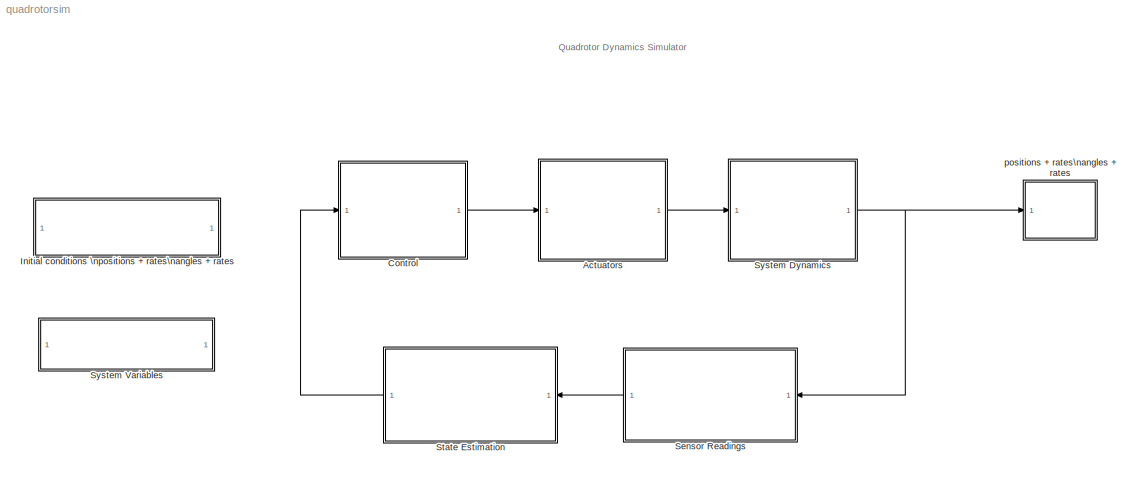
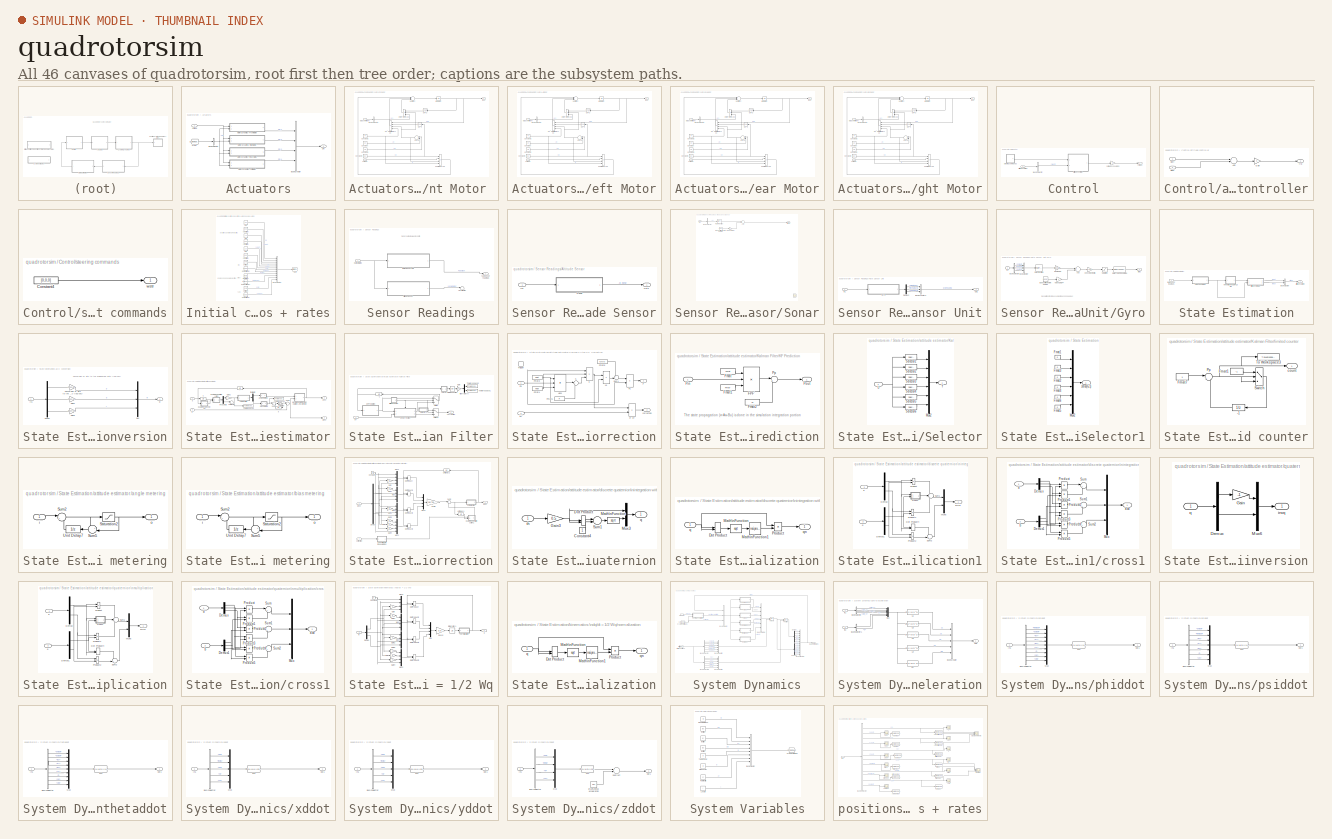
[diagram: thumbnail index - all 46 canvases of the model, root first then tree order]
MODEL quadrotorsim
KIND model
BLOCK [SubSystem] Actuators
  FunctionWithSeparateData = off
  MaskDisplay = image(imread('Brushless-motor.jpg'))
  MaskHideContents = off
  MaskIconFrame = on
  MaskIconOpaque = on
  MaskIconRotate = none
  MaskIconUnits = autoscale
  MaskPortRotate = default
  MinAlgLoopOccurrences = off
  Opaque = off
  Ports = [1, 1]
  PropExecContextOutsideSubsystem = off
  RTWSystemCode = Auto
  RequestExecContextInheritance = off
  SID = 265
BLOCK [BusCreator] Actuators/Bus\nCreator
  DisplayOption = bar
  Ports = [4, 1]
  SID = 348
BLOCK [BusSelector] Actuators/Bus\nSelector
  OutputSignals = d
  Ports = [1, 1]
  SID = 280
BLOCK [From] Actuators/From
  GotoTag = SystemVariables
  SID = 278
  TagVisibility = global
BLOCK [SubSystem] Actuators/Motor Dynamics - Front Motor 
  FunctionWithSeparateData = off
  MaskCallbackString = |||
  MaskEnableString = on,on,on,on
  MaskHideContents = off
  MaskIconFrame = on
  MaskIconOpaque = on
  MaskIconRotate = none
  MaskIconUnits = autoscale
  MaskPortRotate = default
  MaskPromptString = Total Moment of Inertia of the motor in the spin axis, N m s^2|Total Moment of Inertia of the propeller in the spin axis, N m s^2|Internal resistance of the motor, Ohm|Motor constant, V/rad/sec  <repeated x4 — deduplicated; at blocks: Motor Dynamics - Front Motor, Motor Dynamics - Left Motor, Motor Dynamics - Rear Motor, Motor Dynamics - Right Motor>
  MaskStyleString = edit,edit,edit,edit
  MaskToolTipString = on,on,on,on
  MaskTunableValueString = on,on,on,on
  MaskValueString = 0.001|0.01|0.1|23
  MaskVariables = Jm=@1;Jp=@2;R=@3;Ke=@4;
  MaskVisibilityString = on,on,on,on
  MinAlgLoopOccurrences = off
  Opaque = off
  Ports = [2, 1]
  PropExecContextOutsideSubsystem = off
  RTWSystemCode = Auto
  RequestExecContextInheritance = off
  SID = 274
BLOCK [BusSelector] Actuators/Motor Dynamics - Front Motor /Bus\nSelector
  OutputSignals = d
  Ports = [1, 1]
  SID = 282
BLOCK [Constant] Actuators/Motor Dynamics - Front Motor /Constant
  SID = 284
  Value = Jp
BLOCK [Constant] Actuators/Motor Dynamics - Front Motor /Constant1
  SID = 285
  Value = Jm
BLOCK [Constant] Actuators/Motor Dynamics - Front Motor /Constant2
  SID = 286
  Value = R
BLOCK [Constant] Actuators/Motor Dynamics - Front Motor /Constant3
  SID = 287
  Value = Ke
BLOCK [Integrator] Actuators/Motor Dynamics - Front Motor /Integrator
  Ports = [1, 1]
  SID = 277
BLOCK [Sum] Actuators/Motor Dynamics - Front Motor /Jm + Jp
  InputSameDT = off
  OutDataTypeMode = Inherit via internal rule
  OutDataTypeStr = Inherit: Inherit via internal rule
  Ports = [2, 1]
  SID = 290
  SaturateOnIntegerOverflow = off
BLOCK [Product] Actuators/Motor Dynamics - Front Motor /Ke*V//(R*(Jm+Jp))
  InputSameDT = off
  Inputs = **//
  OutDataTypeMode = Inherit via internal rule
  OutDataTypeStr = Inherit: Inherit via internal rule
  Ports = [4, 1]
  SID = 294
  SaturateOnIntegerOverflow = off
BLOCK [Math] Actuators/Motor Dynamics - Front Motor /Ke^2
  Operator = square
  Ports = [1, 1]
  SID = 291
BLOCK [Product] Actuators/Motor Dynamics - Front Motor /Ke^2*Om//(R*(Jm+Jp))
  InputSameDT = off
  Inputs = **//
  OutDataTypeMode = Inherit via internal rule
  OutDataTypeStr = Inherit: Inherit via internal rule
  Ports = [4, 1]
  SID = 289
  SaturateOnIntegerOverflow = off
BLOCK [Math] Actuators/Motor Dynamics - Front Motor /Om^2
  Operator = square
  Ports = [1, 1]
  SID = 292
BLOCK [Outport] Actuators/Motor Dynamics - Front Motor /RPS
  IconDisplay = Port number
  SID = 276
BLOCK [Sum] Actuators/Motor Dynamics - Front Motor /Subtract
  InputSameDT = off
  Inputs = +--
  OutDataTypeMode = Inherit via internal rule
  OutDataTypeStr = Inherit: Inherit via internal rule
  Ports = [3, 1]
  SID = 281
  SaturateOnIntegerOverflow = off
BLOCK [Product] Actuators/Motor Dynamics - Front Motor /d*Om^2//(Jm+Jp)
  InputSameDT = off
  Inputs = */*
  OutDataTypeMode = Inherit via internal rule
  OutDataTypeStr = Inherit: Inherit via internal rule
  Ports = [3, 1]
  SID = 293
  SaturateOnIntegerOverflow = off
BLOCK [Inport] Actuators/Motor Dynamics - Front Motor /drag coefficient
  IconDisplay = Port number
  Port = 2
  SID = 279
BLOCK [Inport] Actuators/Motor Dynamics - Front Motor /voltage
  IconDisplay = Port number
  SID = 275
BLOCK [SubSystem] Actuators/Motor Dynamics - Left Motor
  FunctionWithSeparateData = off
  MaskCallbackString = |||
  MaskEnableString = on,on,on,on
  MaskHideContents = off
  MaskIconFrame = on
  MaskIconOpaque = on
  MaskIconRotate = none
  MaskIconUnits = autoscale
  MaskPortRotate = default
  MaskStyleString = edit,edit,edit,edit
  MaskToolTipString = on,on,on,on
  MaskTunableValueString = on,on,on,on
  MaskValueString = 0.001|0.01|0.1|23
  MaskVariables = Jm=@1;Jp=@2;R=@3;Ke=@4;
  MaskVisibilityString = on,on,on,on
  MinAlgLoopOccurrences = off
  Opaque = off
  Ports = [2, 1]
  PropExecContextOutsideSubsystem = off
  RTWSystemCode = Auto
  RequestExecContextInheritance = off
  SID = 331
BLOCK [BusSelector] Actuators/Motor Dynamics - Left Motor/Bus\nSelector
  OutputSignals = d
  Ports = [1, 1]
  SID = 334
BLOCK [Constant] Actuators/Motor Dynamics - Left Motor/Constant
  SID = 335
  Value = Jp
BLOCK [Constant] Actuators/Motor Dynamics - Left Motor/Constant1
  SID = 336
  Value = Jm
BLOCK [Constant] Actuators/Motor Dynamics - Left Motor/Constant2
  SID = 337
  Value = R
BLOCK [Constant] Actuators/Motor Dynamics - Left Motor/Constant3
  SID = 338
  Value = Ke
BLOCK [Integrator] Actuators/Motor Dynamics - Left Motor/Integrator
  Ports = [1, 1]
  SID = 339
BLOCK [Sum] Actuators/Motor Dynamics - Left Motor/Jm + Jp
  InputSameDT = off
  OutDataTypeMode = Inherit via internal rule
  OutDataTypeStr = Inherit: Inherit via internal rule
  Ports = [2, 1]
  SID = 340
  SaturateOnIntegerOverflow = off
BLOCK [Product] Actuators/Motor Dynamics - Left Motor/Ke*V//(R*(Jm+Jp))
  InputSameDT = off
  Inputs = **//
  OutDataTypeMode = Inherit via internal rule
  OutDataTypeStr = Inherit: Inherit via internal rule
  Ports = [4, 1]
  SID = 341
  SaturateOnIntegerOverflow = off
BLOCK [Math] Actuators/Motor Dynamics - Left Motor/Ke^2
  Operator = square
  Ports = [1, 1]
  SID = 342
BLOCK [Product] Actuators/Motor Dynamics - Left Motor/Ke^2*Om//(R*(Jm+Jp))
  InputSameDT = off
  Inputs = **//
  OutDataTypeMode = Inherit via internal rule
  OutDataTypeStr = Inherit: Inherit via internal rule
  Ports = [4, 1]
  SID = 343
  SaturateOnIntegerOverflow = off
BLOCK [Math] Actuators/Motor Dynamics - Left Motor/Om^2
  Operator = square
  Ports = [1, 1]
  SID = 344
BLOCK [Outport] Actuators/Motor Dynamics - Left Motor/RPS
  IconDisplay = Port number
  SID = 347
BLOCK [Sum] Actuators/Motor Dynamics - Left Motor/Subtract
  InputSameDT = off
  Inputs = +--
  OutDataTypeMode = Inherit via internal rule
  OutDataTypeStr = Inherit: Inherit via internal rule
  Ports = [3, 1]
  SID = 345
  SaturateOnIntegerOverflow = off
BLOCK [Product] Actuators/Motor Dynamics - Left Motor/d*Om^2//(Jm+Jp)
  InputSameDT = off
  Inputs = */*
  OutDataTypeMode = Inherit via internal rule
  OutDataTypeStr = Inherit: Inherit via internal rule
  Ports = [3, 1]
  SID = 346
  SaturateOnIntegerOverflow = off
BLOCK [Inport] Actuators/Motor Dynamics - Left Motor/drag coefficient
  IconDisplay = Port number
  Port = 2
  SID = 333
BLOCK [Inport] Actuators/Motor Dynamics - Left Motor/voltage
  IconDisplay = Port number
  SID = 332
BLOCK [SubSystem] Actuators/Motor Dynamics - Rear Motor
  FunctionWithSeparateData = off
  MaskCallbackString = |||
  MaskEnableString = on,on,on,on
  MaskHideContents = off
  MaskIconFrame = on
  MaskIconOpaque = on
  MaskIconRotate = none
  MaskIconUnits = autoscale
  MaskPortRotate = default
  MaskStyleString = edit,edit,edit,edit
  MaskToolTipString = on,on,on,on
  MaskTunableValueString = on,on,on,on
  MaskValueString = 0.001|0.01|0.1|23
  MaskVariables = Jm=@1;Jp=@2;R=@3;Ke=@4;
  MaskVisibilityString = on,on,on,on
  MinAlgLoopOccurrences = off
  Opaque = off
  Ports = [2, 1]
  PropExecContextOutsideSubsystem = off
  RTWSystemCode = Auto
  RequestExecContextInheritance = off
  SID = 314
BLOCK [BusSelector] Actuators/Motor Dynamics - Rear Motor/Bus\nSelector
  OutputSignals = d
  Ports = [1, 1]
  SID = 317
BLOCK [Constant] Actuators/Motor Dynamics - Rear Motor/Constant
  SID = 318
  Value = Jp
BLOCK [Constant] Actuators/Motor Dynamics - Rear Motor/Constant1
  SID = 319
  Value = Jm
BLOCK [Constant] Actuators/Motor Dynamics - Rear Motor/Constant2
  SID = 320
  Value = R
BLOCK [Constant] Actuators/Motor Dynamics - Rear Motor/Constant3
  SID = 321
  Value = Ke
BLOCK [Integrator] Actuators/Motor Dynamics - Rear Motor/Integrator
  Ports = [1, 1]
  SID = 322
BLOCK [Sum] Actuators/Motor Dynamics - Rear Motor/Jm + Jp
  InputSameDT = off
  OutDataTypeMode = Inherit via internal rule
  OutDataTypeStr = Inherit: Inherit via internal rule
  Ports = [2, 1]
  SID = 323
  SaturateOnIntegerOverflow = off
BLOCK [Product] Actuators/Motor Dynamics - Rear Motor/Ke*V//(R*(Jm+Jp))
  InputSameDT = off
  Inputs = **//
  OutDataTypeMode = Inherit via internal rule
  OutDataTypeStr = Inherit: Inherit via internal rule
  Ports = [4, 1]
  SID = 324
  SaturateOnIntegerOverflow = off
BLOCK [Math] Actuators/Motor Dynamics - Rear Motor/Ke^2
  Operator = square
  Ports = [1, 1]
  SID = 325
BLOCK [Product] Actuators/Motor Dynamics - Rear Motor/Ke^2*Om//(R*(Jm+Jp))
  InputSameDT = off
  Inputs = **//
  OutDataTypeMode = Inherit via internal rule
  OutDataTypeStr = Inherit: Inherit via internal rule
  Ports = [4, 1]
  SID = 326
  SaturateOnIntegerOverflow = off
BLOCK [Math] Actuators/Motor Dynamics - Rear Motor/Om^2
  Operator = square
  Ports = [1, 1]
  SID = 327
BLOCK [Outport] Actuators/Motor Dynamics - Rear Motor/RPS
  IconDisplay = Port number
  SID = 330
BLOCK [Sum] Actuators/Motor Dynamics - Rear Motor/Subtract
  InputSameDT = off
  Inputs = +--
  OutDataTypeMode = Inherit via internal rule
  OutDataTypeStr = Inherit: Inherit via internal rule
  Ports = [3, 1]
  SID = 328
  SaturateOnIntegerOverflow = off
BLOCK [Product] Actuators/Motor Dynamics - Rear Motor/d*Om^2//(Jm+Jp)
  InputSameDT = off
  Inputs = */*
  OutDataTypeMode = Inherit via internal rule
  OutDataTypeStr = Inherit: Inherit via internal rule
  Ports = [3, 1]
  SID = 329
  SaturateOnIntegerOverflow = off
BLOCK [Inport] Actuators/Motor Dynamics - Rear Motor/drag coefficient
  IconDisplay = Port number
  Port = 2
  SID = 316
BLOCK [Inport] Actuators/Motor Dynamics - Rear Motor/voltage
  IconDisplay = Port number
  SID = 315
BLOCK [SubSystem] Actuators/Motor Dynamics - Right Motor
  FunctionWithSeparateData = off
  MaskCallbackString = |||
  MaskEnableString = on,on,on,on
  MaskHideContents = off
  MaskIconFrame = on
  MaskIconOpaque = on
  MaskIconRotate = none
  MaskIconUnits = autoscale
  MaskPortRotate = default
  MaskStyleString = edit,edit,edit,edit
  MaskToolTipString = on,on,on,on
  MaskTunableValueString = on,on,on,on
  MaskValueString = 0.001|0.01|0.1|23
  MaskVariables = Jm=@1;Jp=@2;R=@3;Ke=@4;
  MaskVisibilityString = on,on,on,on
  MinAlgLoopOccurrences = off
  Opaque = off
  Ports = [2, 1]
  PropExecContextOutsideSubsystem = off
  RTWSystemCode = Auto
  RequestExecContextInheritance = off
  SID = 297
BLOCK [BusSelector] Actuators/Motor Dynamics - Right Motor/Bus\nSelector
  OutputSignals = d
  Ports = [1, 1]
  SID = 300
BLOCK [Constant] Actuators/Motor Dynamics - Right Motor/Constant
  SID = 301
  Value = Jp
BLOCK [Constant] Actuators/Motor Dynamics - Right Motor/Constant1
  SID = 302
  Value = Jm
BLOCK [Constant] Actuators/Motor Dynamics - Right Motor/Constant2
  SID = 303
  Value = R
BLOCK [Constant] Actuators/Motor Dynamics - Right Motor/Constant3
  SID = 304
  Value = Ke
BLOCK [Integrator] Actuators/Motor Dynamics - Right Motor/Integrator
  Ports = [1, 1]
  SID = 305
BLOCK [Sum] Actuators/Motor Dynamics - Right Motor/Jm + Jp
  InputSameDT = off
  OutDataTypeMode = Inherit via internal rule
  OutDataTypeStr = Inherit: Inherit via internal rule
  Ports = [2, 1]
  SID = 306
  SaturateOnIntegerOverflow = off
BLOCK [Product] Actuators/Motor Dynamics - Right Motor/Ke*V//(R*(Jm+Jp))
  InputSameDT = off
  Inputs = **//
  OutDataTypeMode = Inherit via internal rule
  OutDataTypeStr = Inherit: Inherit via internal rule
  Ports = [4, 1]
  SID = 307
  SaturateOnIntegerOverflow = off
BLOCK [Math] Actuators/Motor Dynamics - Right Motor/Ke^2
  Operator = square
  Ports = [1, 1]
  SID = 308
BLOCK [Product] Actuators/Motor Dynamics - Right Motor/Ke^2*Om//(R*(Jm+Jp))
  InputSameDT = off
  Inputs = **//
  OutDataTypeMode = Inherit via internal rule
  OutDataTypeStr = Inherit: Inherit via internal rule
  Ports = [4, 1]
  SID = 309
  SaturateOnIntegerOverflow = off
BLOCK [Math] Actuators/Motor Dynamics - Right Motor/Om^2
  Operator = square
  Ports = [1, 1]
  SID = 310
BLOCK [Outport] Actuators/Motor Dynamics - Right Motor/RPS
  IconDisplay = Port number
  SID = 313
BLOCK [Sum] Actuators/Motor Dynamics - Right Motor/Subtract
  InputSameDT = off
  Inputs = +--
  OutDataTypeMode = Inherit via internal rule
  OutDataTypeStr = Inherit: Inherit via internal rule
  Ports = [3, 1]
  SID = 311
  SaturateOnIntegerOverflow = off
BLOCK [Product] Actuators/Motor Dynamics - Right Motor/d*Om^2//(Jm+Jp)
  InputSameDT = off
  Inputs = */*
  OutDataTypeMode = Inherit via internal rule
  OutDataTypeStr = Inherit: Inherit via internal rule
  Ports = [3, 1]
  SID = 312
  SaturateOnIntegerOverflow = off
BLOCK [Inport] Actuators/Motor Dynamics - Right Motor/drag coefficient
  IconDisplay = Port number
  Port = 2
  SID = 299
BLOCK [Inport] Actuators/Motor Dynamics - Right Motor/voltage
  IconDisplay = Port number
  SID = 298
BLOCK [Outport] Actuators/Om
  IconDisplay = Port number
  SID = 271
BLOCK [Inport] Actuators/voltage
  IconDisplay = Port number
  SID = 273
BLOCK [SubSystem] Control
  FunctionWithSeparateData = off
  MaskDisplay = image(imread('control.bmp'))
  MaskHideContents = off
  MaskIconFrame = on
  MaskIconOpaque = on
  MaskIconRotate = none
  MaskIconUnits = autoscale
  MaskPortRotate = default
  MinAlgLoopOccurrences = off
  Opaque = off
  Ports = [1, 1]
  PropExecContextOutsideSubsystem = off
  RTWSystemCode = Auto
  RequestExecContextInheritance = off
  SID = 428
BLOCK [BusSelector] Control/Bus\nSelector
  OutputSignals = west
  Ports = [1, 1]
  SID = 1337
BLOCK [Outport] Control/Voltage
  IconDisplay = Port number
  SID = 430
BLOCK [Gain] Control/Voltage conversion
  OutDataType = fixdt(1, 16)
  OutDataTypeMode = Inherit via internal rule
  OutDataTypeStr = Inherit: Inherit via internal rule
  OutScaling = 2^0
  ParamDataTypeStr = Inherit: Inherit via internal rule
  ParameterDataType = fixdt(1, 16)
  ParameterDataTypeMode = Inherit via internal rule
  ParameterScaling = 2^0
  SID = 1342
  SaturateOnIntegerOverflow = off
BLOCK [SubSystem] Control/attitude controller
  FunctionWithSeparateData = off
  MaskHideContents = off
  MinAlgLoopOccurrences = off
  Opaque = off
  Ports = [2, 1]
  PropExecContextOutsideSubsystem = off
  RTWSystemCode = Auto
  RequestExecContextInheritance = off
  SID = 555
BLOCK [Sum] Control/attitude controller/Add
  InputSameDT = off
  Inputs = +-
  OutDataType = fixdt(1, 16)
  OutDataTypeMode = Inherit via internal rule
  OutDataTypeStr = Inherit: Inherit via internal rule
  OutScaling = 2^-10
  Ports = [2, 1]
  SID = 1340
  SaturateOnIntegerOverflow = off
BLOCK [Gain] Control/attitude controller/Gain
  Gain = 0
  OutDataType = fixdt(1, 16)
  OutDataTypeMode = Inherit via internal rule
  OutDataTypeStr = Inherit: Inherit via internal rule
  OutScaling = 2^0
  ParamDataTypeStr = Inherit: Inherit via internal rule
  ParameterDataType = fixdt(1, 16)
  ParameterDataTypeMode = Inherit via internal rule
  ParameterScaling = 2^0
  SID = 1341
  SaturateOnIntegerOverflow = off
BLOCK [Outport] Control/attitude controller/trq
  IconDisplay = Port number
  SID = 606
BLOCK [Inport] Control/attitude controller/west
  IconDisplay = Port number
  Port = 2
  SID = 559
BLOCK [Inport] Control/attitude controller/wstr
  IconDisplay = Port number
  SID = 557
BLOCK [Inport] Control/attitude solution
  IconDisplay = Port number
  SID = 1335
BLOCK [SubSystem] Control/steering commands
  FunctionWithSeparateData = off
  MaskHideContents = off
  MinAlgLoopOccurrences = off
  Opaque = off
  Ports = [0, 1]
  PropExecContextOutsideSubsystem = off
  RTWSystemCode = Auto
  RequestExecContextInheritance = off
  SID = 967
BLOCK [Constant] Control/steering commands/Constant4
  SID = 969
  Value = [0,0,0]
BLOCK [Outport] Control/steering commands/wstr
  IconDisplay = Port number
  SID = 1000
BLOCK [SubSystem] Initial conditions \npositions + rates\nangles + rates
  FunctionWithSeparateData = off
  MaskCallbackString = |||||||||||
  MaskDisplay = disp('Enter initial conditions here')
  MaskEnableString = on,on,on,on,on,on,on,on,on,on,on,on
  MaskHideContents = off
  MaskIconFrame = on
  MaskIconOpaque = on
  MaskIconRotate = none
  MaskIconUnits = autoscale
  MaskPortRotate = default
  MaskPromptString = Initial X position, in meters|Initial Y position, in meters|Initial Z position, in meters|Initial Velocity in X direction, m/sec|Initial Velocity in Y direction, m/sec|Initial Velocity in Z direction, m/sec|Initial Roll angle, deg|Initial Pitch angle, deg|Initial Yaw angle, deg|Initial Roll rate, deg/sec|Initial Pitch rate, deg/sec|Initial Yaw rate, deg/sec
  MaskStyleString = edit,edit,edit,edit,edit,edit,edit,edit,edit,edit,edit,edit
  MaskToolTipString = on,on,on,on,on,on,on,on,on,on,on,on
  MaskTunableValueString = on,on,on,on,on,on,on,on,on,on,on,on
  MaskValueString = 5|5|5|1|1|1|0|0|0|0|0|0
  MaskVariables = x0=@1;y0=@2;z0=@3;x0dot=@4;y0dot=@5;z0dot=@6;phi0=@7;theta0=@8;psi0=@9;phi0dot=@10;theta0dot=@11;psi0dot=@12;
  MaskVisibilityString = on,on,on,on,on,on,on,on,on,on,on,on
  MinAlgLoopOccurrences = off
  Opaque = off
  Ports = []
  PropExecContextOutsideSubsystem = off
  RTWSystemCode = Auto
  RequestExecContextInheritance = off
  SID = 1
BLOCK [BusCreator] Initial conditions \npositions + rates\nangles + rates/Bus\nCreator
  DisplayOption = bar
  Inputs = 12
  Ports = [12, 1]
  SID = 2
BLOCK [Goto] Initial conditions \npositions + rates\nangles + rates/Goto
  GotoTag = InitialConditions
  SID = 251
  TagVisibility = global
BLOCK [Constant] Initial conditions \npositions + rates\nangles + rates/phi [rad]
  SID = 3
  Value = phi0
BLOCK [Constant] Initial conditions \npositions + rates\nangles + rates/phidot [rad//s]
  SID = 4
  Value = phi0dot
BLOCK [Constant] Initial conditions \npositions + rates\nangles + rates/psi [rad]
  SID = 5
  Value = psi0
BLOCK [Constant] Initial conditions \npositions + rates\nangles + rates/psidot [rad//s]
  SID = 6
  Value = psi0dot
BLOCK [Constant] Initial conditions \npositions + rates\nangles + rates/theta [rad]
  SID = 7
  Value = theta0
BLOCK [Constant] Initial conditions \npositions + rates\nangles + rates/thetadot [rad//s]
  SID = 8
  Value = theta0dot
BLOCK [Constant] Initial conditions \npositions + rates\nangles + rates/x [m]
  SID = 9
  Value = x0
BLOCK [Constant] Initial conditions \npositions + rates\nangles + rates/xdot [m//s]
  SID = 10
  Value = x0dot
BLOCK [Constant] Initial conditions \npositions + rates\nangles + rates/y [m]
  SID = 11
  Value = y0
BLOCK [Constant] Initial conditions \npositions + rates\nangles + rates/ydot [m//s]
  SID = 12
  Value = y0dot
BLOCK [Constant] Initial conditions \npositions + rates\nangles + rates/z [m]
  SID = 13
  Value = z0
BLOCK [Constant] Initial conditions \npositions + rates\nangles + rates/zdot [m//s]
  SID = 14
  Value = z0dot
BLOCK [SubSystem] Sensor Readings
  FunctionWithSeparateData = off
  MaskDisplay = image(imread('imu.jpg'))
  MaskHideContents = off
  MaskIconFrame = on
  MaskIconOpaque = on
  MaskIconRotate = none
  MaskIconUnits = autoscale
  MaskPortRotate = default
  MinAlgLoopOccurrences = off
  Opaque = off
  Ports = [1, 1]
  PropExecContextOutsideSubsystem = off
  RTWSystemCode = Auto
  RequestExecContextInheritance = off
  SID = 349
BLOCK [SubSystem] Sensor Readings/Altitude Sensor
  FunctionWithSeparateData = off
  MaskHideContents = off
  MinAlgLoopOccurrences = off
  Opaque = off
  Ports = [1, 1]
  PropExecContextOutsideSubsystem = off
  RTWSystemCode = Auto
  RequestExecContextInheritance = off
  SID = 489
BLOCK [Inport] Sensor Readings/Altitude Sensor/In1
  IconDisplay = Port number
  SID = 490
BLOCK [Outport] Sensor Readings/Altitude Sensor/Out1
  IconDisplay = Port number
  SID = 538
BLOCK [SubSystem] Sensor Readings/Altitude Sensor/Sonar
  FunctionWithSeparateData = off
  MaskHideContents = off
  MinAlgLoopOccurrences = off
  Opaque = off
  Ports = [1, 1]
  PropExecContextOutsideSubsystem = off
  RTWSystemCode = Auto
  RequestExecContextInheritance = off
  SID = 491
BLOCK [Sum] Sensor Readings/Altitude Sensor/Sonar/Add
  InputSameDT = off
  OutDataTypeMode = Inherit via internal rule
  OutDataTypeStr = Inherit: Inherit via internal rule
  Ports = [2, 1]
  SID = 493
  SaturateOnIntegerOverflow = off
BLOCK [Outport] Sensor Readings/Altitude Sensor/Sonar/Altitude
  IconDisplay = Port number
  SID = 503
BLOCK [Reference] Sensor Readings/Altitude Sensor/Sonar/Band-Limited\nWhite Noise  REF=simulink/Sources/Band-Limited\nWhite Noise
  Cov = [0.1]
  FunctionWithSeparateData = off
  Ports = [0, 1]
  RTWMemSecDataConstants = Inherit from model
  RTWMemSecDataInternal = Inherit from model
  RTWMemSecDataParameters = Inherit from model
  RTWMemSecFuncExecute = Inherit from model
  RTWMemSecFuncInitTerm = Inherit from model
  SID = 494
  ShowPortLabels = FromPortIcon
  SourceBlock = simulink/Sources/Band-Limited\nWhite Noise
  SourceType = Band-Limited White Noise.
  SystemSampleTime = -1
  Ts = 0.1
  VectorParams1D = on
  seed = [23341]
BLOCK [BusSelector] Sensor Readings/Altitude Sensor/Sonar/Bus\nSelector
  OutputSignals = z
  Ports = [1, 1]
  SID = 496
BLOCK [Inport] Sensor Readings/Altitude Sensor/Sonar/In1
  IconDisplay = Port number
  SID = 492
BLOCK [Gain] Sensor Readings/Altitude Sensor/Sonar/NoiseON//OFF
  Gain = 0
  OutDataTypeMode = Inherit via internal rule
  OutDataTypeStr = Inherit: Inherit via internal rule
  ParamDataTypeStr = Inherit: Inherit via internal rule
  ParameterDataTypeMode = Inherit via internal rule
  SID = 499
  SaturateOnIntegerOverflow = off
BLOCK [RateTransition] Sensor Readings/Altitude Sensor/Sonar/Rate Transition
  OutPortSampleTime = 0.01
  SID = 501
BLOCK [Scope] Sensor Readings/Altitude Sensor/Sonar/y
  DataFormat = StructureWithTime
  Floating = off
  LimitDataPoints = off
  NumInputPorts = 1
  Ports = [1]
  SID = 1355
  SampleTime = 0
  SaveName = ScopeData3
  TimeRange = 5
  YMax = 2.075
  YMin = 1.825
  ZoomMode = yonly
BLOCK [SubSystem] Sensor Readings/Rate Sensor Unit
  FunctionWithSeparateData = off
  MaskHideContents = off
  MinAlgLoopOccurrences = off
  Opaque = off
  Ports = [1, 1]
  PropExecContextOutsideSubsystem = off
  RTWSystemCode = Auto
  RequestExecContextInheritance = off
  SID = 471
BLOCK [BusCreator] Sensor Readings/Rate Sensor Unit/Bus\nCreator2
  DisplayOption = bar
  Inputs = 3
  Ports = [3, 1]
  SID = 485
BLOCK [Demux] Sensor Readings/Rate Sensor Unit/Demux2
  DisplayOption = bar
  Outputs = 3
  Ports = [1, 3]
  SID = 486
BLOCK [SubSystem] Sensor Readings/Rate Sensor Unit/Gyro
  FunctionWithSeparateData = off
  MaskHideContents = off
  MinAlgLoopOccurrences = off
  Opaque = off
  Ports = [1, 1]
  PropExecContextOutsideSubsystem = off
  RTWSystemCode = Auto
  RequestExecContextInheritance = off
  SID = 456
BLOCK [Sum] Sensor Readings/Rate Sensor Unit/Gyro/Add
  InputSameDT = off
  OutDataTypeMode = Inherit via internal rule
  OutDataTypeStr = Inherit: Inherit via internal rule
  Ports = [2, 1]
  SID = 458
  SaturateOnIntegerOverflow = off
BLOCK [Reference] Sensor Readings/Rate Sensor Unit/Gyro/Band-Limited\nWhite Noise  REF=simulink/Sources/Band-Limited\nWhite Noise
  Cov = [0.1]
  FunctionWithSeparateData = off
  Ports = [0, 1]
  RTWMemSecDataConstants = Inherit from model
  RTWMemSecDataInternal = Inherit from model
  RTWMemSecDataParameters = Inherit from model
  RTWMemSecFuncExecute = Inherit from model
  RTWMemSecFuncInitTerm = Inherit from model
  SID = 459
  ShowPortLabels = FromPortIcon
  SourceBlock = simulink/Sources/Band-Limited\nWhite Noise
  SourceType = Band-Limited White Noise.
  SystemSampleTime = -1
  Ts = 0.1
  VectorParams1D = on
  seed = [23341]
BLOCK [BusCreator] Sensor Readings/Rate Sensor Unit/Gyro/Bus\nCreator
  DisplayOption = bar
  Inputs = 3
  Ports = [3, 1]
  SID = 460
BLOCK [BusSelector] Sensor Readings/Rate Sensor Unit/Gyro/Bus\nSelector
  OutputSignals = phidot,thetadot,psidot
  Ports = [1, 3]
  SID = 461
BLOCK [Gain] Sensor Readings/Rate Sensor Unit/Gyro/ConversiontoBits
  Gain = (2^13-1)/2000
  OutDataTypeMode = Inherit via internal rule
  OutDataTypeStr = Inherit: Inherit via internal rule
  ParamDataTypeStr = Inherit: Inherit via internal rule
  ParameterDataTypeMode = Inherit via internal rule
  SID = 462
  SaturateOnIntegerOverflow = off
BLOCK [DataTypeConversion] Sensor Readings/Rate Sensor Unit/Gyro/Data Type Conversion
  OutDataTypeMode = uint16
  OutDataTypeStr = uint16
  RndMeth = Floor
  SID = 463
  SaturateOnIntegerOverflow = off
BLOCK [Inport] Sensor Readings/Rate Sensor Unit/Gyro/In1
  IconDisplay = Port number
  SID = 457
BLOCK [Gain] Sensor Readings/Rate Sensor Unit/Gyro/NoiseON//OFF
  OutDataTypeMode = Inherit via internal rule
  OutDataTypeStr = Inherit: Inherit via internal rule
  ParamDataTypeStr = Inherit: Inherit via internal rule
  ParameterDataTypeMode = Inherit via internal rule
  SID = 478
  SaturateOnIntegerOverflow = off
BLOCK [Gain] Sensor Readings/Rate Sensor Unit/Gyro/RadtoDeg
  Gain = 180/pi
  OutDataTypeMode = Inherit via internal rule
  OutDataTypeStr = Inherit: Inherit via internal rule
  ParamDataTypeStr = Inherit: Inherit via internal rule
  ParameterDataTypeMode = Inherit via internal rule
  SID = 464
  SaturateOnIntegerOverflow = off
BLOCK [RateTransition] Sensor Readings/Rate Sensor Unit/Gyro/Rate Transition
  OutPortSampleTime = 0.01
  SID = 465
BLOCK [Saturate] Sensor Readings/Rate Sensor Unit/Gyro/Saturation
  LowerLimit = -8191
  Ports = [1, 1]
  SID = 468
  UpperLimit = 8191
BLOCK [Outport] Sensor Readings/Rate Sensor Unit/Gyro/rates
  IconDisplay = Port number
  SID = 466
BLOCK [Inport] Sensor Readings/Rate Sensor Unit/In1
  IconDisplay = Port number
  SID = 472
BLOCK [Outport] Sensor Readings/Rate Sensor Unit/Out1
  IconDisplay = Port number
  SID = 488
BLOCK [Terminator] Sensor Readings/Terminator
  SID = 1354
BLOCK [Inport] Sensor Readings/output states
  IconDisplay = Port number
  SID = 423
BLOCK [Outport] Sensor Readings/raw sensor readings
  IconDisplay = Port number
  SID = 424
BLOCK [SubSystem] State Estimation
  FunctionWithSeparateData = off
  MaskDisplay = image(imread('filter.png'))
  MaskHideContents = off
  MaskIconFrame = on
  MaskIconOpaque = on
  MaskIconRotate = none
  MaskIconUnits = autoscale
  MaskPortRotate = default
  MinAlgLoopOccurrences = off
  Opaque = off
  Ports = [1, 1]
  PropExecContextOutsideSubsystem = off
  RTWSystemCode = Auto
  RequestExecContextInheritance = off
  SID = 425
BLOCK [SubSystem] State Estimation/ADC conversion
  FunctionWithSeparateData = off
  MaskHideContents = off
  MinAlgLoopOccurrences = off
  Opaque = off
  Ports = [1, 1]
  PropExecContextOutsideSubsystem = off
  RTWSystemCode = Auto
  RequestExecContextInheritance = off
  SID = 540
BLOCK [Gain] State Estimation/ADC conversion/Conversion of bits to the engineering units (rad//sec)
  Gain = 2000*pi/(8161*180)
  OutDataTypeMode = double
  OutDataTypeStr = double
  ParamDataTypeStr = Inherit: Inherit via internal rule
  ParameterDataTypeMode = Inherit via internal rule
  SID = 1030
  SaturateOnIntegerOverflow = off
BLOCK [Demux] State Estimation/ADC conversion/Demux
  DisplayOption = bar
  Outputs = 3
  Ports = [1, 3]
  SID = 1352
BLOCK [Gain] State Estimation/ADC conversion/Gain2
  Gain = 2000*pi/(8161*180)
  OutDataTypeMode = double
  OutDataTypeStr = double
  ParamDataTypeStr = Inherit: Inherit via internal rule
  ParameterDataTypeMode = Inherit via internal rule
  SID = 1032
  SaturateOnIntegerOverflow = off
BLOCK [Gain] State Estimation/ADC conversion/Gain3
  Gain = 2000*pi/(8161*180)
  OutDataTypeMode = double
  OutDataTypeStr = double
  ParamDataTypeStr = Inherit: Inherit via internal rule
  ParameterDataTypeMode = Inherit via internal rule
  SID = 1031
  SaturateOnIntegerOverflow = off
BLOCK [Inport] State Estimation/ADC conversion/In1
  IconDisplay = Port number
  SID = 541
BLOCK [Mux] State Estimation/ADC conversion/Mux
  DisplayOption = bar
  Inputs = 3
  Ports = [3, 1]
  SID = 1351
BLOCK [Outport] State Estimation/ADC conversion/w
  IconDisplay = Port number
  SID = 542
BLOCK [BusCreator] State Estimation/Bus\nCreator
  DisplayOption = bar
  Inputs = 2
  Ports = [2, 1]
  SID = 1332
BLOCK [SubSystem] State Estimation/attitude estimator
  FunctionWithSeparateData = off
  MaskHideContents = off
  MinAlgLoopOccurrences = off
  Opaque = off
  Ports = [2, 2]
  PropExecContextOutsideSubsystem = off
  RTWSystemCode = Auto
  RequestExecContextInheritance = off
  SID = 1092
BLOCK [UnitDelay] State Estimation/attitude estimator/-
  SID = 1096
  SampleTime = -1
BLOCK [UnitDelay] State Estimation/attitude estimator/-1
  SID = 1097
  SampleTime = -1
BLOCK [UnitDelay] State Estimation/attitude estimator/-3
  SID = 1098
  SampleTime = -1
  X0 = [0;0;0]
BLOCK [Gain] State Estimation/attitude estimator/Gain2
  Gain = 2
  OutDataTypeMode = Inherit via internal rule
  OutDataTypeStr = Inherit: Inherit via internal rule
  ParamDataTypeStr = Inherit: Inherit via internal rule
  ParameterDataTypeMode = Inherit via internal rule
  SID = 1099
  SaturateOnIntegerOverflow = off
BLOCK [SubSystem] State Estimation/attitude estimator/Kalman Filter
  FunctionWithSeparateData = off
  MaskHideContents = off
  MinAlgLoopOccurrences = off
  Opaque = off
  Ports = [1, 1]
  PropExecContextOutsideSubsystem = off
  RTWSystemCode = Auto
  RequestExecContextInheritance = off
  SID = 1100
BLOCK [UnitDelay] State Estimation/attitude estimator/Kalman Filter/-1
  SID = 1102
  SampleTime = -1
BLOCK [Gain] State Estimation/attitude estimator/Kalman Filter/Gain
  Gain = 3
  OutDataTypeMode = Inherit via internal rule
  OutDataTypeStr = Inherit: Inherit via internal rule
  ParamDataTypeStr = Inherit: Inherit via internal rule
  ParameterDataTypeMode = Inherit via internal rule
  SID = 1103
  SaturateOnIntegerOverflow = off
BLOCK [SubSystem] State Estimation/attitude estimator/Kalman Filter/KF Correction
  FunctionWithSeparateData = off
  MaskHideContents = off
  MinAlgLoopOccurrences = off
  Opaque = off
  Ports = [2, 2, 0, 1]
  PropExecContextOutsideSubsystem = off
  RTWSystemCode = Auto
  RequestExecContextInheritance = off
  SID = 1104
BLOCK [Constant] State Estimation/attitude estimator/Kalman Filter/KF Correction/Fmat3
  SID = 1108
  Value = Hmat
  VectorParams1D = off
BLOCK [Constant] State Estimation/attitude estimator/Kalman Filter/KF Correction/Fmat4
  SID = 1109
  Value = Hmat'
  VectorParams1D = off
BLOCK [Constant] State Estimation/attitude estimator/Kalman Filter/KF Correction/Fmat5
  SID = 1110
  Value = R
  VectorParams1D = off
BLOCK [Constant] State Estimation/attitude estimator/Kalman Filter/KF Correction/Fmat6
  SID = 1111
  Value = eye(6)
  VectorParams1D = off
BLOCK [Product] State Estimation/attitude estimator/Kalman Filter/KF Correction/HPH'
  InputSameDT = off
  Inputs = ***
  Multiplication = Matrix(*)
  OutDataTypeMode = Inherit via internal rule
  OutDataTypeStr = Inherit: Inherit via internal rule
  Ports = [3, 1]
  SID = 1112
  SaturateOnIntegerOverflow = off
BLOCK [Product] State Estimation/attitude estimator/Kalman Filter/KF Correction/K
  InputSameDT = off
  Inputs = **/
  Multiplication = Matrix(*)
  OutDataTypeMode = Inherit via internal rule
  OutDataTypeStr = Inherit: Inherit via internal rule
  Ports = [3, 1]
  SID = 1113
  SaturateOnIntegerOverflow = off
BLOCK [Product] State Estimation/attitude estimator/Kalman Filter/KF Correction/K* dY
  InputSameDT = off
  Inputs = **
  Multiplication = Matrix(*)
  OutDataTypeMode = Inherit via internal rule
  OutDataTypeStr = Inherit: Inherit via internal rule
  Ports = [2, 1]
  SID = 1114
  SaturateOnIntegerOverflow = off
BLOCK [Product] State Estimation/attitude estimator/Kalman Filter/KF Correction/K1
  InputSameDT = off
  Inputs = **
  Multiplication = Matrix(*)
  OutDataTypeMode = Inherit via internal rule
  OutDataTypeStr = Inherit: Inherit via internal rule
  Ports = [2, 1]
  SID = 1115
  SaturateOnIntegerOverflow = off
BLOCK [Outport] State Estimation/attitude estimator/Kalman Filter/KF Correction/P
  IconDisplay = Port number
  SID = 1119
BLOCK [Product] State Estimation/attitude estimator/Kalman Filter/KF Correction/P1
  InputSameDT = off
  Inputs = **
  Multiplication = Matrix(*)
  OutDataTypeMode = Inherit via internal rule
  OutDataTypeStr = Inherit: Inherit via internal rule
  Ports = [2, 1]
  SID = 1116
  SaturateOnIntegerOverflow = off
BLOCK [Inport] State Estimation/attitude estimator/Kalman Filter/KF Correction/Pp
  IconDisplay = Port number
  SID = 1105
BLOCK [Sum] State Estimation/attitude estimator/Kalman Filter/KF Correction/S
  IconShape = round
  Inputs = |++
  Ports = [2, 1]
  SID = 1117
BLOCK [Sum] State Estimation/attitude estimator/Kalman Filter/KF Correction/Sum1
  IconShape = round
  Inputs = +-|
  Ports = [2, 1]
  SID = 1118
BLOCK [TriggerPort] State Estimation/attitude estimator/Kalman Filter/KF Correction/Trigger
  Ports = []
  SID = 1107
  StatesWhenEnabling = held
  TriggerType = falling
BLOCK [Outport] State Estimation/attitude estimator/Kalman Filter/KF Correction/correction
  IconDisplay = Port number
  Port = 2
  SID = 1120
BLOCK [Inport] State Estimation/attitude estimator/Kalman Filter/KF Correction/dY
  IconDisplay = Port number
  Port = 2
  SID = 1106
BLOCK [SubSystem] State Estimation/attitude estimator/Kalman Filter/KF Prediction
  FunctionWithSeparateData = off
  MaskHideContents = off
  MinAlgLoopOccurrences = off
  Opaque = off
  Ports = [1, 1]
  PropExecContextOutsideSubsystem = off
  RTWSystemCode = Auto
  RequestExecContextInheritance = off
  SID = 1121
BLOCK [Product] State Estimation/attitude estimator/Kalman Filter/KF Prediction/FPF'
  InputSameDT = off
  Inputs = ***
  Multiplication = Matrix(*)
  OutDataTypeMode = Inherit via internal rule
  OutDataTypeStr = Inherit: Inherit via internal rule
  Ports = [3, 1]
  SID = 1123
  SaturateOnIntegerOverflow = off
BLOCK [Constant] State Estimation/attitude estimator/Kalman Filter/KF Prediction/Fmat
  SID = 1124
  Value = Fmat
  VectorParams1D = off
BLOCK [Constant] State Estimation/attitude estimator/Kalman Filter/KF Prediction/Fmat1
  SID = 1125
  Value = Fmat'
  VectorParams1D = off
BLOCK [Constant] State Estimation/attitude estimator/Kalman Filter/KF Prediction/Fmat2
  SID = 1126
  Value = Q
  VectorParams1D = off
BLOCK [Inport] State Estimation/attitude estimator/Kalman Filter/KF Prediction/Pin
  IconDisplay = Port number
  SID = 1122
BLOCK [Outport] State Estimation/attitude estimator/Kalman Filter/KF Prediction/Pout
  IconDisplay = Port number
  SID = 1128
BLOCK [Sum] State Estimation/attitude estimator/Kalman Filter/KF Prediction/Pp
  IconShape = round
  Inputs = |++
  Ports = [2, 1]
  SID = 1127
BLOCK [Math] State Estimation/attitude estimator/Kalman Filter/Math\nFunction
  Operator = sqrt
  Ports = [1, 1]
  SID = 1130
BLOCK [SubSystem] State Estimation/attitude estimator/Kalman Filter/Selector
  FunctionWithSeparateData = off
  MaskHideContents = off
  MinAlgLoopOccurrences = off
  Opaque = off
  Ports = [1, 1]
  PropExecContextOutsideSubsystem = off
  RTWSystemCode = Auto
  RequestExecContextInheritance = off
  SID = 1131
BLOCK [Mux] State Estimation/attitude estimator/Kalman Filter/Selector/Mux2
  DisplayOption = bar
  Inputs = 6
  Ports = [6, 1]
  SID = 1133
BLOCK [Selector] State Estimation/attitude estimator/Kalman Filter/Selector/Selector1
  IndexOptions = Index vector (dialog),Index vector (dialog)
  Indices = 1,1
  InputPortWidth = 36
  NumberOfDimensions = 2
  OutputSizes = 1,1
  Ports = [1, 1]
  SID = 1134
BLOCK [Selector] State Estimation/attitude estimator/Kalman Filter/Selector/Selector2
  IndexOptions = Index vector (dialog),Index vector (dialog)
  Indices = 2,2
  InputPortWidth = 36
  NumberOfDimensions = 2
  OutputSizes = 1,1
  Ports = [1, 1]
  SID = 1135
BLOCK [Selector] State Estimation/attitude estimator/Kalman Filter/Selector/Selector3
  IndexOptions = Index vector (dialog),Index vector (dialog)
  Indices = 3,3
  InputPortWidth = 36
  NumberOfDimensions = 2
  OutputSizes = 1,1
  Ports = [1, 1]
  SID = 1136
BLOCK [Selector] State Estimation/attitude estimator/Kalman Filter/Selector/Selector4
  IndexOptions = Index vector (dialog),Index vector (dialog)
  Indices = 4,4
  InputPortWidth = 36
  NumberOfDimensions = 2
  OutputSizes = 1,1
  Ports = [1, 1]
  SID = 1137
BLOCK [Selector] State Estimation/attitude estimator/Kalman Filter/Selector/Selector5
  IndexOptions = Index vector (dialog),Index vector (dialog)
  Indices = 5,5
  InputPortWidth = 36
  NumberOfDimensions = 2
  OutputSizes = 1,1
  Ports = [1, 1]
  SID = 1138
BLOCK [Selector] State Estimation/attitude estimator/Kalman Filter/Selector/Selector6
  IndexOptions = Index vector (dialog),Index vector (dialog)
  Indices = 6,6
  InputPortWidth = 36
  NumberOfDimensions = 2
  OutputSizes = 1,1
  Ports = [1, 1]
  SID = 1139
BLOCK [Inport] State Estimation/attitude estimator/Kalman Filter/Selector/U
  IconDisplay = Port number
  SID = 1132
BLOCK [Outport] State Estimation/attitude estimator/Kalman Filter/Selector/Y
  IconDisplay = Port number
  SID = 1140
BLOCK [SubSystem] State Estimation/attitude estimator/Kalman Filter/Selector1
  FunctionWithSeparateData = off
  MaskHideContents = off
  MinAlgLoopOccurrences = off
  Opaque = off
  Ports = [0, 1]
  PropExecContextOutsideSubsystem = off
  RTWSystemCode = Auto
  RequestExecContextInheritance = off
  SID = 1141
BLOCK [Constant] State Estimation/attitude estimator/Kalman Filter/Selector1/Fmat1
  SID = 1142
  Value = 0
  VectorParams1D = off
BLOCK [Constant] State Estimation/attitude estimator/Kalman Filter/Selector1/Fmat2
  SID = 1143
  Value = 0
  VectorParams1D = off
BLOCK [Constant] State Estimation/attitude estimator/Kalman Filter/Selector1/Fmat3
  SID = 1144
  Value = 0
  VectorParams1D = off
BLOCK [Constant] State Estimation/attitude estimator/Kalman Filter/Selector1/Fmat4
  SID = 1145
  Value = 0
  VectorParams1D = off
BLOCK [Constant] State Estimation/attitude estimator/Kalman Filter/Selector1/Fmat5
  SID = 1146
  Value = 0
  VectorParams1D = off
BLOCK [Constant] State Estimation/attitude estimator/Kalman Filter/Selector1/Fmat6
  SID = 1147
  Value = 0
  VectorParams1D = off
BLOCK [Mux] State Estimation/attitude estimator/Kalman Filter/Selector1/Mux2
  DisplayOption = bar
  Inputs = 6
  Ports = [6, 1]
  SID = 1148
BLOCK [Outport] State Estimation/attitude estimator/Kalman Filter/Selector1/zeros(6,1)
  IconDisplay = Port number
  SID = 1149
BLOCK [Switch] State Estimation/attitude estimator/Kalman Filter/Switch
  InputSameDT = off
  SID = 1150
  SaturateOnIntegerOverflow = off
  Threshold = 0.5
BLOCK [Switch] State Estimation/attitude estimator/Kalman Filter/Switch1
  InputSameDT = off
  SID = 1151
  SaturateOnIntegerOverflow = off
  Threshold = 0.5
BLOCK [ToWorkspace] State Estimation/attitude estimator/Kalman Filter/To Workspace1
  MaxDataPoints = inf
  Ports = [1]
  SID = 1152
  SampleTime = Tcapt
  SaveFormat = Array
  VariableName = sigw3
BLOCK [ToWorkspace] State Estimation/attitude estimator/Kalman Filter/To Workspace3
  MaxDataPoints = inf
  Ports = [1]
  SID = 1153
  SampleTime = Tcapt
  SaveFormat = Array
  VariableName = sigth3
BLOCK [Demux] State Estimation/attitude estimator/Kalman Filter/[therr;werr]
  DisplayOption = bar
  Outputs = [3 3]
  Ports = [1, 2]
  SID = 1154
BLOCK [Outport] State Estimation/attitude estimator/Kalman Filter/correction
  IconDisplay = Port number
  SID = 1163
BLOCK [Inport] State Estimation/attitude estimator/Kalman Filter/dY
  IconDisplay = Port number
  SID = 1101
BLOCK [SubSystem] State Estimation/attitude estimator/Kalman Filter/limited counter
  FunctionWithSeparateData = off
  MaskHideContents = off
  MinAlgLoopOccurrences = off
  Opaque = off
  Ports = [0, 1]
  PropExecContextOutsideSubsystem = off
  RTWSystemCode = Auto
  RequestExecContextInheritance = off
  SID = 1155
BLOCK [UnitDelay] State Estimation/attitude estimator/Kalman Filter/limited counter/-1
  SID = 1156
  SampleTime = TkfProp
  X0 = -1
BLOCK [Constant] State Estimation/attitude estimator/Kalman Filter/limited counter/Fmat1
  SID = 1157
  Value = -1
  VectorParams1D = off
BLOCK [Constant] State Estimation/attitude estimator/Kalman Filter/limited counter/Fmat7
  SID = 1158
  VectorParams1D = off
BLOCK [Sum] State Estimation/attitude estimator/Kalman Filter/limited counter/Pp
  IconShape = round
  Inputs = |++
  Ports = [2, 1]
  SID = 1159
BLOCK [Switch] State Estimation/attitude estimator/Kalman Filter/limited counter/Switch
  InputSameDT = off
  SID = 1160
  SaturateOnIntegerOverflow = off
  Threshold = KfupdatePeriodInCycle-1.5
BLOCK [ToWorkspace] State Estimation/attitude estimator/Kalman Filter/limited counter/To Workspace3
  MaxDataPoints = inf
  Ports = [1]
  SID = 1161
  SampleTime = Tcapt
  SaveFormat = Array
  VariableName = count
BLOCK [Outport] State Estimation/attitude estimator/Kalman Filter/limited counter/count
  IconDisplay = Port number
  SID = 1162
BLOCK [Saturate] State Estimation/attitude estimator/Saturation
  LowerLimit = -max_bias
  Ports = [1, 1]
  SID = 1168
  UpperLimit = max_bias
BLOCK [Sum] State Estimation/attitude estimator/Sum1
  IconShape = round
  Inputs = |++
  Ports = [2, 1]
  SID = 1169
BLOCK [Sum] State Estimation/attitude estimator/Sum4
  IconShape = round
  Inputs = |-+
  Ports = [2, 1]
  SID = 1171
BLOCK [Terminator] State Estimation/attitude estimator/Terminator
  SID = 1172
BLOCK [ToWorkspace] State Estimation/attitude estimator/To Workspace2
  MaxDataPoints = inf
  Ports = [1]
  SID = 1174
  SampleTime = Tcapt
  SaveFormat = Array
  VariableName = best
BLOCK [ToWorkspace] State Estimation/attitude estimator/To Workspace6
  MaxDataPoints = inf
  Ports = [1]
  SID = 1178
  SampleTime = Tcapt
  SaveFormat = Array
  VariableName = dy
BLOCK [Demux] State Estimation/attitude estimator/[therr;werr]
  DisplayOption = bar
  Outputs = [3 3]
  Ports = [1, 2]
  SID = 1180
BLOCK [SubSystem] State Estimation/attitude estimator/angle metering
  FunctionWithSeparateData = off
  MaskHideContents = off
  MinAlgLoopOccurrences = off
  Opaque = off
  Ports = [1, 1]
  PropExecContextOutsideSubsystem = off
  RTWSystemCode = Auto
  RequestExecContextInheritance = off
  SID = 1181
BLOCK [Saturate] State Estimation/attitude estimator/angle metering/Saturation2
  LowerLimit = -delta_th_lim
  Ports = [1, 1]
  SID = 1183
  UpperLimit = delta_th_lim
BLOCK [Sum] State Estimation/attitude estimator/angle metering/Sum2
  IconShape = round
  Inputs = |++
  Ports = [2, 1]
  SID = 1184
BLOCK [Sum] State Estimation/attitude estimator/angle metering/Sum5
  IconShape = round
  Inputs = +-|
  Ports = [2, 1]
  SID = 1185
BLOCK [UnitDelay] State Estimation/attitude estimator/angle metering/Unit Delay7
  SID = 1186
  SampleTime = Tqint
  X0 = [0;0;0]
BLOCK [Inport] State Estimation/attitude estimator/angle metering/i
  IconDisplay = Port number
  SID = 1182
BLOCK [Outport] State Estimation/attitude estimator/angle metering/o
  IconDisplay = Port number
  SID = 1187
BLOCK [SubSystem] State Estimation/attitude estimator/bias metering
  FunctionWithSeparateData = off
  MaskHideContents = off
  MinAlgLoopOccurrences = off
  Opaque = off
  Ports = [1, 1]
  PropExecContextOutsideSubsystem = off
  RTWSystemCode = Auto
  RequestExecContextInheritance = off
  SID = 1188
BLOCK [Saturate] State Estimation/attitude estimator/bias metering/Saturation2
  LowerLimit = -delta_w_lim
  Ports = [1, 1]
  SID = 1190
  UpperLimit = delta_w_lim
BLOCK [Sum] State Estimation/attitude estimator/bias metering/Sum2
  IconShape = round
  Inputs = |++
  Ports = [2, 1]
  SID = 1191
BLOCK [Sum] State Estimation/attitude estimator/bias metering/Sum5
  IconShape = round
  Inputs = +-|
  Ports = [2, 1]
  SID = 1192
BLOCK [UnitDelay] State Estimation/attitude estimator/bias metering/Unit Delay7
  SID = 1193
  SampleTime = Tqint
  X0 = [0;0;0]
BLOCK [Inport] State Estimation/attitude estimator/bias metering/i
  IconDisplay = Port number
  SID = 1189
BLOCK [Outport] State Estimation/attitude estimator/bias metering/o
  IconDisplay = Port number
  SID = 1194
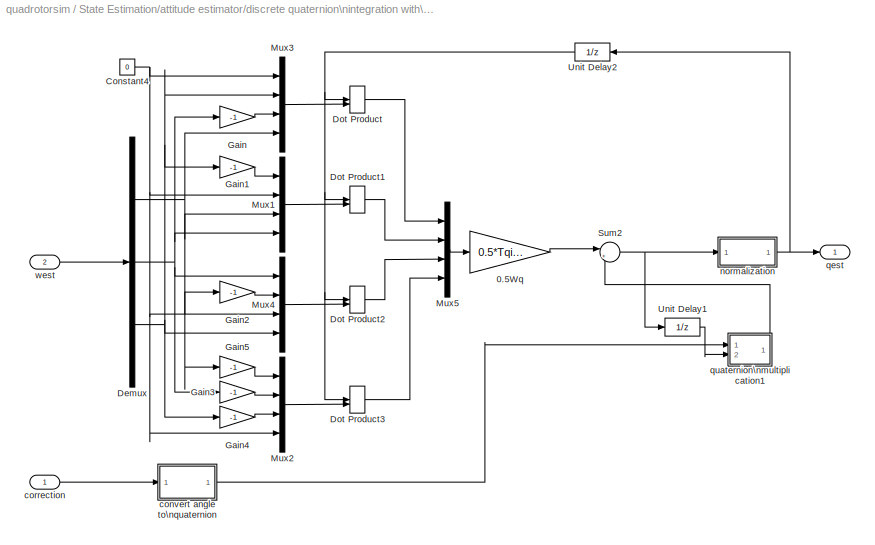
BLOCK [SubSystem] State Estimation/attitude estimator/discrete quaternion\nintegration with\ncorrection
  FunctionWithSeparateData = off
  MaskHideContents = off
  MinAlgLoopOccurrences = off
  Opaque = off
  Ports = [2, 1]
  PropExecContextOutsideSubsystem = off
  RTWSystemCode = Auto
  RequestExecContextInheritance = off
  SID = 1211
BLOCK [Gain] State Estimation/attitude estimator/discrete quaternion\nintegration with\ncorrection/0.5Wq
  Gain = 0.5*Tqint
  OutDataTypeMode = Inherit via internal rule
  OutDataTypeStr = Inherit: Inherit via internal rule
  ParamDataTypeStr = Inherit: Inherit via internal rule
  ParameterDataTypeMode = Inherit via internal rule
  SID = 1214
  SaturateOnIntegerOverflow = off
BLOCK [Constant] State Estimation/attitude estimator/discrete quaternion\nintegration with\ncorrection/Constant4
  SID = 1215
  Value = 0
BLOCK [Demux] State Estimation/attitude estimator/discrete quaternion\nintegration with\ncorrection/Demux
  DisplayOption = bar
  Outputs = 3
  Ports = [1, 3]
  SID = 1216
BLOCK [DotProduct] State Estimation/attitude estimator/discrete quaternion\nintegration with\ncorrection/Dot Product
  OutDataTypeStr = Inherit: Inherit via internal rule
  OutputDataTypeScalingMode = Inherit via internal rule
  SID = 1217
BLOCK [DotProduct] State Estimation/attitude estimator/discrete quaternion\nintegration with\ncorrection/Dot Product1
  OutDataTypeStr = Inherit: Inherit via internal rule
  OutputDataTypeScalingMode = Inherit via internal rule
  SID = 1218
BLOCK [DotProduct] State Estimation/attitude estimator/discrete quaternion\nintegration with\ncorrection/Dot Product2
  OutDataTypeStr = Inherit: Inherit via internal rule
  OutputDataTypeScalingMode = Inherit via internal rule
  SID = 1219
BLOCK [DotProduct] State Estimation/attitude estimator/discrete quaternion\nintegration with\ncorrection/Dot Product3
  OutDataTypeStr = Inherit: Inherit via internal rule
  OutputDataTypeScalingMode = Inherit via internal rule
  SID = 1220
BLOCK [Gain] State Estimation/attitude estimator/discrete quaternion\nintegration with\ncorrection/Gain
  Gain = -1
  OutDataTypeMode = Inherit via internal rule
  OutDataTypeStr = Inherit: Inherit via internal rule
  ParamDataTypeStr = Inherit: Inherit via internal rule
  ParameterDataTypeMode = Inherit via internal rule
  SID = 1221
  SaturateOnIntegerOverflow = off
BLOCK [Gain] State Estimation/attitude estimator/discrete quaternion\nintegration with\ncorrection/Gain1
  Gain = -1
  OutDataTypeMode = Inherit via internal rule
  OutDataTypeStr = Inherit: Inherit via internal rule
  ParamDataTypeStr = Inherit: Inherit via internal rule
  ParameterDataTypeMode = Inherit via internal rule
  SID = 1222
  SaturateOnIntegerOverflow = off
BLOCK [Gain] State Estimation/attitude estimator/discrete quaternion\nintegration with\ncorrection/Gain2
  Gain = -1
  OutDataTypeMode = Inherit via internal rule
  OutDataTypeStr = Inherit: Inherit via internal rule
  ParamDataTypeStr = Inherit: Inherit via internal rule
  ParameterDataTypeMode = Inherit via internal rule
  SID = 1223
  SaturateOnIntegerOverflow = off
BLOCK [Gain] State Estimation/attitude estimator/discrete quaternion\nintegration with\ncorrection/Gain3
  Gain = -1
  OutDataTypeMode = Inherit via internal rule
  OutDataTypeStr = Inherit: Inherit via internal rule
  ParamDataTypeStr = Inherit: Inherit via internal rule
  ParameterDataTypeMode = Inherit via internal rule
  SID = 1224
  SaturateOnIntegerOverflow = off
BLOCK [Gain] State Estimation/attitude estimator/discrete quaternion\nintegration with\ncorrection/Gain4
  Gain = -1
  OutDataTypeMode = Inherit via internal rule
  OutDataTypeStr = Inherit: Inherit via internal rule
  ParamDataTypeStr = Inherit: Inherit via internal rule
  ParameterDataTypeMode = Inherit via internal rule
  SID = 1225
  SaturateOnIntegerOverflow = off
BLOCK [Gain] State Estimation/attitude estimator/discrete quaternion\nintegration with\ncorrection/Gain5
  Gain = -1
  OutDataTypeMode = Inherit via internal rule
  OutDataTypeStr = Inherit: Inherit via internal rule
  ParamDataTypeStr = Inherit: Inherit via internal rule
  ParameterDataTypeMode = Inherit via internal rule
  SID = 1226
  SaturateOnIntegerOverflow = off
BLOCK [Mux] State Estimation/attitude estimator/discrete quaternion\nintegration with\ncorrection/Mux1
  DisplayOption = bar
  Ports = [4, 1]
  SID = 1227
BLOCK [Mux] State Estimation/attitude estimator/discrete quaternion\nintegration with\ncorrection/Mux2
  DisplayOption = bar
  Ports = [4, 1]
  SID = 1228
BLOCK [Mux] State Estimation/attitude estimator/discrete quaternion\nintegration with\ncorrection/Mux3
  DisplayOption = bar
  Ports = [4, 1]
  SID = 1229
BLOCK [Mux] State Estimation/attitude estimator/discrete quaternion\nintegration with\ncorrection/Mux4
  DisplayOption = bar
  Ports = [4, 1]
  SID = 1230
BLOCK [Mux] State Estimation/attitude estimator/discrete quaternion\nintegration with\ncorrection/Mux5
  DisplayOption = bar
  Ports = [4, 1]
  SID = 1231
BLOCK [Sum] State Estimation/attitude estimator/discrete quaternion\nintegration with\ncorrection/Sum2
  IconShape = round
  Inputs = |++
  Ports = [2, 1]
  SID = 1232
BLOCK [UnitDelay] State Estimation/attitude estimator/discrete quaternion\nintegration with\ncorrection/Unit Delay1
  SID = 1233
  SampleTime = Tqint
  X0 = qest0
BLOCK [UnitDelay] State Estimation/attitude estimator/discrete quaternion\nintegration with\ncorrection/Unit Delay2
  SID = 1234
  SampleTime = Tqint
  X0 = qest0
BLOCK [SubSystem] State Estimation/attitude estimator/discrete quaternion\nintegration with\ncorrection/convert angle to\nquaternion
  FunctionWithSeparateData = off
  MaskHideContents = off
  MinAlgLoopOccurrences = off
  Opaque = off
  Ports = [1, 1]
  PropExecContextOutsideSubsystem = off
  RTWSystemCode = Auto
  RequestExecContextInheritance = off
  SID = 1235
BLOCK [Constant] State Estimation/attitude estimator/discrete quaternion\nintegration with\ncorrection/convert angle to\nquaternion/Constant4
  SID = 1237
BLOCK [DotProduct] State Estimation/attitude estimator/discrete quaternion\nintegration with\ncorrection/convert angle to\nquaternion/Dot Product
  OutDataTypeStr = Inherit: Inherit via internal rule
  OutputDataTypeScalingMode = Inherit via internal rule
  SID = 1238
BLOCK [Gain] State Estimation/attitude estimator/discrete quaternion\nintegration with\ncorrection/convert angle to\nquaternion/Gain3
  Gain = 0.5
  OutDataTypeMode = Inherit via internal rule
  OutDataTypeStr = Inherit: Inherit via internal rule
  ParamDataTypeStr = Inherit: Inherit via internal rule
  ParameterDataTypeMode = Inherit via internal rule
  SID = 1239
  SaturateOnIntegerOverflow = off
BLOCK [Math] State Estimation/attitude estimator/discrete quaternion\nintegration with\ncorrection/convert angle to\nquaternion/Math\nFunction
  Operator = sqrt
  Ports = [1, 1]
  SID = 1240
BLOCK [Mux] State Estimation/attitude estimator/discrete quaternion\nintegration with\ncorrection/convert angle to\nquaternion/Mux3
  DisplayOption = bar
  Inputs = [3 1]
  Ports = [2, 1]
  SID = 1241
BLOCK [Sum] State Estimation/attitude estimator/discrete quaternion\nintegration with\ncorrection/convert angle to\nquaternion/Sum1
  IconShape = round
  Inputs = |-+
  Ports = [2, 1]
  SID = 1242
BLOCK [Outport] State Estimation/attitude estimator/discrete quaternion\nintegration with\ncorrection/convert angle to\nquaternion/q
  IconDisplay = Port number
  SID = 1243
BLOCK [Inport] State Estimation/attitude estimator/discrete quaternion\nintegration with\ncorrection/convert angle to\nquaternion/th
  IconDisplay = Port number
  SID = 1236
BLOCK [Inport] State Estimation/attitude estimator/discrete quaternion\nintegration with\ncorrection/correction
  IconDisplay = Port number
  SID = 1212
BLOCK [SubSystem] State Estimation/attitude estimator/discrete quaternion\nintegration with\ncorrection/normalization
  FunctionWithSeparateData = off
  MaskHideContents = off
  MinAlgLoopOccurrences = off
  Opaque = off
  Ports = [1, 1]
  PropExecContextOutsideSubsystem = off
  RTWSystemCode = Auto
  RequestExecContextInheritance = off
  SID = 1244
BLOCK [DotProduct] State Estimation/attitude estimator/discrete quaternion\nintegration with\ncorrection/normalization/Dot Product
  OutDataTypeStr = Inherit: Inherit via internal rule
  OutputDataTypeScalingMode = Inherit via internal rule
  SID = 1246
BLOCK [Math] State Estimation/attitude estimator/discrete quaternion\nintegration with\ncorrection/normalization/Math\nFunction
  Operator = sqrt
  Ports = [1, 1]
  SID = 1247
BLOCK [Math] State Estimation/attitude estimator/discrete quaternion\nintegration with\ncorrection/normalization/Math\nFunction1
  Operator = reciprocal
  Ports = [1, 1]
  SID = 1248
BLOCK [Product] State Estimation/attitude estimator/discrete quaternion\nintegration with\ncorrection/normalization/Product
  Ports = [2, 1]
  RndMeth = Floor
  SID = 1249
BLOCK [Inport] State Estimation/attitude estimator/discrete quaternion\nintegration with\ncorrection/normalization/q
  IconDisplay = Port number
  SID = 1245
BLOCK [Outport] State Estimation/attitude estimator/discrete quaternion\nintegration with\ncorrection/normalization/qn
  IconDisplay = Port number
  SID = 1250
BLOCK [Outport] State Estimation/attitude estimator/discrete quaternion\nintegration with\ncorrection/qest
  IconDisplay = Port number
  SID = 1280
BLOCK [SubSystem] State Estimation/attitude estimator/discrete quaternion\nintegration with\ncorrection/quaternion\nmultiplication1
  FunctionWithSeparateData = off
  MaskHideContents = off
  MinAlgLoopOccurrences = off
  Opaque = off
  Ports = [2, 1]
  PropExecContextOutsideSubsystem = off
  RTWSystemCode = Auto
  RequestExecContextInheritance = off
  SID = 1251
BLOCK [Demux] State Estimation/attitude estimator/discrete quaternion\nintegration with\ncorrection/quaternion\nmultiplication1/Demux
  DisplayOption = bar
  Outputs = [3 1]
  Ports = [1, 2]
  SID = 1254
BLOCK [Demux] State Estimation/attitude estimator/discrete quaternion\nintegration with\ncorrection/quaternion\nmultiplication1/Demux1
  DisplayOption = bar
  Outputs = [3 1]
  Ports = [1, 2]
  SID = 1255
BLOCK [DotProduct] State Estimation/attitude estimator/discrete quaternion\nintegration with\ncorrection/quaternion\nmultiplication1/Dot Product4
  OutDataTypeStr = Inherit: Inherit via internal rule
  OutputDataTypeScalingMode = Inherit via internal rule
  SID = 1256
BLOCK [Mux] State Estimation/attitude estimator/discrete quaternion\nintegration with\ncorrection/quaternion\nmultiplication1/Mux6
  DisplayOption = bar
  Inputs = [3 1]
  Ports = [2, 1]
  SID = 1257
BLOCK [Product] State Estimation/attitude estimator/discrete quaternion\nintegration with\ncorrection/quaternion\nmultiplication1/Product
  Ports = [2, 1]
  RndMeth = Floor
  SID = 1258
BLOCK [Product] State Estimation/attitude estimator/discrete quaternion\nintegration with\ncorrection/quaternion\nmultiplication1/Product1
  Ports = [2, 1]
  RndMeth = Floor
  SID = 1259
BLOCK [Product] State Estimation/attitude estimator/discrete quaternion\nintegration with\ncorrection/quaternion\nmultiplication1/Product2
  Ports = [2, 1]
  RndMeth = Floor
  SID = 1260
BLOCK [Sum] State Estimation/attitude estimator/discrete quaternion\nintegration with\ncorrection/quaternion\nmultiplication1/Sum1
  IconShape = round
  Inputs = +-+
  Ports = [3, 1]
  SID = 1261
BLOCK [Sum] State Estimation/attitude estimator/discrete quaternion\nintegration with\ncorrection/quaternion\nmultiplication1/Sum2
  IconShape = round
  Inputs = -+|
  Ports = [2, 1]
  SID = 1262
BLOCK [SubSystem] State Estimation/attitude estimator/discrete quaternion\nintegration with\ncorrection/quaternion\nmultiplication1/cross1
  FunctionWithSeparateData = off
  MaskHideContents = off
  MinAlgLoopOccurrences = off
  Opaque = off
  Ports = [2, 1]
  PropExecContextOutsideSubsystem = off
  RTWSystemCode = Auto
  RequestExecContextInheritance = off
  SID = 1263
BLOCK [Demux] State Estimation/attitude estimator/discrete quaternion\nintegration with\ncorrection/quaternion\nmultiplication1/cross1/Demux
  Outputs = 3
  Ports = [1, 3]
  SID = 1266
BLOCK [Demux] State Estimation/attitude estimator/discrete quaternion\nintegration with\ncorrection/quaternion\nmultiplication1/cross1/Demux1
  Outputs = 3
  Ports = [1, 3]
  SID = 1267
BLOCK [Mux] State Estimation/attitude estimator/discrete quaternion\nintegration with\ncorrection/quaternion\nmultiplication1/cross1/Mux
  DisplayOption = bar
  Inputs = 3
  Ports = [3, 1]
  SID = 1268
BLOCK [Product] State Estimation/attitude estimator/discrete quaternion\nintegration with\ncorrection/quaternion\nmultiplication1/cross1/Product
  Ports = [2, 1]
  RndMeth = Floor
  SID = 1269
BLOCK [Product] State Estimation/attitude estimator/discrete quaternion\nintegration with\ncorrection/quaternion\nmultiplication1/cross1/Product1
  Ports = [2, 1]
  RndMeth = Floor
  SID = 1270
BLOCK [Product] State Estimation/attitude estimator/discrete quaternion\nintegration with\ncorrection/quaternion\nmultiplication1/cross1/Product2
  Ports = [2, 1]
  RndMeth = Floor
  SID = 1271
BLOCK [Product] State Estimation/attitude estimator/discrete quaternion\nintegration with\ncorrection/quaternion\nmultiplication1/cross1/Product3
  Ports = [2, 1]
  RndMeth = Floor
  SID = 1272
BLOCK [Product] State Estimation/attitude estimator/discrete quaternion\nintegration with\ncorrection/quaternion\nmultiplication1/cross1/Product4
  Ports = [2, 1]
  RndMeth = Floor
  SID = 1273
BLOCK [Product] State Estimation/attitude estimator/discrete quaternion\nintegration with\ncorrection/quaternion\nmultiplication1/cross1/Product5
  Ports = [2, 1]
  RndMeth = Floor
  SID = 1274
BLOCK [Sum] State Estimation/attitude estimator/discrete quaternion\nintegration with\ncorrection/quaternion\nmultiplication1/cross1/Sum
  IconShape = round
  Inputs = |+-
  Ports = [2, 1]
  SID = 1275
BLOCK [Sum] State Estimation/attitude estimator/discrete quaternion\nintegration with\ncorrection/quaternion\nmultiplication1/cross1/Sum1
  IconShape = round
  Inputs = |+-
  Ports = [2, 1]
  SID = 1276
BLOCK [Sum] State Estimation/attitude estimator/discrete quaternion\nintegration with\ncorrection/quaternion\nmultiplication1/cross1/Sum2
  IconShape = round
  Inputs = |+-
  Ports = [2, 1]
  SID = 1277
BLOCK [Inport] State Estimation/attitude estimator/discrete quaternion\nintegration with\ncorrection/quaternion\nmultiplication1/cross1/a
  IconDisplay = Port number
  SID = 1264
BLOCK [Outport] State Estimation/attitude estimator/discrete quaternion\nintegration with\ncorrection/quaternion\nmultiplication1/cross1/axb
  IconDisplay = Port number
  SID = 1278
BLOCK [Inport] State Estimation/attitude estimator/discrete quaternion\nintegration with\ncorrection/quaternion\nmultiplication1/cross1/b
  IconDisplay = Port number
  Port = 2
  SID = 1265
BLOCK [Inport] State Estimation/attitude estimator/discrete quaternion\nintegration with\ncorrection/quaternion\nmultiplication1/p
  IconDisplay = Port number
  SID = 1252
BLOCK [Outport] State Estimation/attitude estimator/discrete quaternion\nintegration with\ncorrection/quaternion\nmultiplication1/p(x)q
  IconDisplay = Port number
  SID = 1279
BLOCK [Inport] State Estimation/attitude estimator/discrete quaternion\nintegration with\ncorrection/quaternion\nmultiplication1/q
  IconDisplay = Port number
  Port = 2
  SID = 1253
BLOCK [Inport] State Estimation/attitude estimator/discrete quaternion\nintegration with\ncorrection/west
  IconDisplay = Port number
  Port = 2
  SID = 1213
BLOCK [Demux] State Estimation/attitude estimator/invqest(x)q
  DisplayOption = bar
  Outputs = [3 1]
  Ports = [1, 2]
  SID = 1294
BLOCK [Inport] State Estimation/attitude estimator/q
  IconDisplay = Port number
  SID = 1093
BLOCK [Outport] State Estimation/attitude estimator/qest
  IconDisplay = Port number
  SID = 1330
BLOCK [SubSystem] State Estimation/attitude estimator/quaternion\ninversion
  FunctionWithSeparateData = off
  MaskHideContents = off
  MinAlgLoopOccurrences = off
  Opaque = off
  Ports = [1, 1]
  PropExecContextOutsideSubsystem = off
  RTWSystemCode = Auto
  RequestExecContextInheritance = off
  SID = 1295
BLOCK [Demux] State Estimation/attitude estimator/quaternion\ninversion/Demux
  DisplayOption = bar
  Outputs = [3 1]
  Ports = [1, 2]
  SID = 1297
BLOCK [Gain] State Estimation/attitude estimator/quaternion\ninversion/Gain
  Gain = -1
  OutDataTypeMode = Inherit via internal rule
  OutDataTypeStr = Inherit: Inherit via internal rule
  ParamDataTypeStr = Inherit: Inherit via internal rule
  ParameterDataTypeMode = Inherit via internal rule
  SID = 1298
  SaturateOnIntegerOverflow = off
BLOCK [Mux] State Estimation/attitude estimator/quaternion\ninversion/Mux6
  DisplayOption = bar
  Inputs = [3 1]
  Ports = [2, 1]
  SID = 1299
BLOCK [Outport] State Estimation/attitude estimator/quaternion\ninversion/invq
  IconDisplay = Port number
  SID = 1300
BLOCK [Inport] State Estimation/attitude estimator/quaternion\ninversion/q
  IconDisplay = Port number
  SID = 1296
BLOCK [SubSystem] State Estimation/attitude estimator/quaternion\nmultiplication
  FunctionWithSeparateData = off
  MaskHideContents = off
  MinAlgLoopOccurrences = off
  Opaque = off
  Ports = [2, 1]
  PropExecContextOutsideSubsystem = off
  RTWSystemCode = Auto
  RequestExecContextInheritance = off
  SID = 1301
BLOCK [Demux] State Estimation/attitude estimator/quaternion\nmultiplication/Demux
  DisplayOption = bar
  Outputs = [3 1]
  Ports = [1, 2]
  SID = 1304
BLOCK [Demux] State Estimation/attitude estimator/quaternion\nmultiplication/Demux1
  DisplayOption = bar
  Outputs = [3 1]
  Ports = [1, 2]
  SID = 1305
BLOCK [DotProduct] State Estimation/attitude estimator/quaternion\nmultiplication/Dot Product4
  OutDataTypeStr = Inherit: Inherit via internal rule
  OutputDataTypeScalingMode = Inherit via internal rule
  SID = 1306
BLOCK [Mux] State Estimation/attitude estimator/quaternion\nmultiplication/Mux6
  DisplayOption = bar
  Inputs = [3 1]
  Ports = [2, 1]
  SID = 1307
BLOCK [Product] State Estimation/attitude estimator/quaternion\nmultiplication/Product
  Ports = [2, 1]
  RndMeth = Floor
  SID = 1308
BLOCK [Product] State Estimation/attitude estimator/quaternion\nmultiplication/Product1
  Ports = [2, 1]
  RndMeth = Floor
  SID = 1309
BLOCK [Product] State Estimation/attitude estimator/quaternion\nmultiplication/Product2
  Ports = [2, 1]
  RndMeth = Floor
  SID = 1310
BLOCK [Sum] State Estimation/attitude estimator/quaternion\nmultiplication/Sum1
  IconShape = round
  Inputs = +-+
  Ports = [3, 1]
  SID = 1311
BLOCK [Sum] State Estimation/attitude estimator/quaternion\nmultiplication/Sum2
  IconShape = round
  Inputs = -+|
  Ports = [2, 1]
  SID = 1312
BLOCK [SubSystem] State Estimation/attitude estimator/quaternion\nmultiplication/cross1
  FunctionWithSeparateData = off
  MaskHideContents = off
  MinAlgLoopOccurrences = off
  Opaque = off
  Ports = [2, 1]
  PropExecContextOutsideSubsystem = off
  RTWSystemCode = Auto
  RequestExecContextInheritance = off
  SID = 1313
BLOCK [Demux] State Estimation/attitude estimator/quaternion\nmultiplication/cross1/Demux
  Outputs = 3
  Ports = [1, 3]
  SID = 1316
BLOCK [Demux] State Estimation/attitude estimator/quaternion\nmultiplication/cross1/Demux1
  Outputs = 3
  Ports = [1, 3]
  SID = 1317
BLOCK [Mux] State Estimation/attitude estimator/quaternion\nmultiplication/cross1/Mux
  DisplayOption = bar
  Inputs = 3
  Ports = [3, 1]
  SID = 1318
BLOCK [Product] State Estimation/attitude estimator/quaternion\nmultiplication/cross1/Product
  Ports = [2, 1]
  RndMeth = Floor
  SID = 1319
BLOCK [Product] State Estimation/attitude estimator/quaternion\nmultiplication/cross1/Product1
  Ports = [2, 1]
  RndMeth = Floor
  SID = 1320
BLOCK [Product] State Estimation/attitude estimator/quaternion\nmultiplication/cross1/Product2
  Ports = [2, 1]
  RndMeth = Floor
  SID = 1321
BLOCK [Product] State Estimation/attitude estimator/quaternion\nmultiplication/cross1/Product3
  Ports = [2, 1]
  RndMeth = Floor
  SID = 1322
BLOCK [Product] State Estimation/attitude estimator/quaternion\nmultiplication/cross1/Product4
  Ports = [2, 1]
  RndMeth = Floor
  SID = 1323
BLOCK [Product] State Estimation/attitude estimator/quaternion\nmultiplication/cross1/Product5
  Ports = [2, 1]
  RndMeth = Floor
  SID = 1324
BLOCK [Sum] State Estimation/attitude estimator/quaternion\nmultiplication/cross1/Sum
  IconShape = round
  Inputs = |+-
  Ports = [2, 1]
  SID = 1325
BLOCK [Sum] State Estimation/attitude estimator/quaternion\nmultiplication/cross1/Sum1
  IconShape = round
  Inputs = |+-
  Ports = [2, 1]
  SID = 1326
BLOCK [Sum] State Estimation/attitude estimator/quaternion\nmultiplication/cross1/Sum2
  IconShape = round
  Inputs = |+-
  Ports = [2, 1]
  SID = 1327
BLOCK [Inport] State Estimation/attitude estimator/quaternion\nmultiplication/cross1/a
  IconDisplay = Port number
  SID = 1314
BLOCK [Outport] State Estimation/attitude estimator/quaternion\nmultiplication/cross1/axb
  IconDisplay = Port number
  SID = 1328
BLOCK [Inport] State Estimation/attitude estimator/quaternion\nmultiplication/cross1/b
  IconDisplay = Port number
  Port = 2
  SID = 1315
BLOCK [Inport] State Estimation/attitude estimator/quaternion\nmultiplication/p
  IconDisplay = Port number
  SID = 1302
BLOCK [Outport] State Estimation/attitude estimator/quaternion\nmultiplication/p(x)q
  IconDisplay = Port number
  SID = 1329
BLOCK [Inport] State Estimation/attitude estimator/quaternion\nmultiplication/q
  IconDisplay = Port number
  Port = 2
  SID = 1303
BLOCK [Inport] State Estimation/attitude estimator/w
  IconDisplay = Port number
  Port = 2
  SID = 1094
BLOCK [Outport] State Estimation/attitude estimator/west
  IconDisplay = Port number
  Port = 2
  SID = 1331
BLOCK [Outport] State Estimation/attitude solution
  IconDisplay = Port number
  SID = 427
BLOCK [SubSystem] State Estimation/kinematics:\ndq//dt = 1//2 Wq
  FunctionWithSeparateData = off
  MaskHideContents = off
  MinAlgLoopOccurrences = off
  Opaque = off
  Ports = [1, 1]
  PropExecContextOutsideSubsystem = off
  RTWSystemCode = Auto
  RequestExecContextInheritance = off
  SID = 1001
BLOCK [Gain] State Estimation/kinematics:\ndq//dt = 1//2 Wq/0.5Wq
  Gain = 0.5
  OutDataTypeMode = Inherit via internal rule
  OutDataTypeStr = Inherit: Inherit via internal rule
  ParamDataTypeStr = Inherit: Inherit via internal rule
  ParameterDataTypeMode = Inherit via internal rule
  SID = 1003
  SaturateOnIntegerOverflow = off
BLOCK [Constant] State Estimation/kinematics:\ndq//dt = 1//2 Wq/Constant4
  SID = 1004
  Value = 0
BLOCK [Demux] State Estimation/kinematics:\ndq//dt = 1//2 Wq/Demux
  DisplayOption = bar
  Outputs = 3
  Ports = [1, 3]
  SID = 1350
BLOCK [DotProduct] State Estimation/kinematics:\ndq//dt = 1//2 Wq/Dot Product
  OutDataTypeStr = Inherit: Inherit via internal rule
  OutputDataTypeScalingMode = Inherit via internal rule
  SID = 1006
BLOCK [DotProduct] State Estimation/kinematics:\ndq//dt = 1//2 Wq/Dot Product1
  OutDataTypeStr = Inherit: Inherit via internal rule
  OutputDataTypeScalingMode = Inherit via internal rule
  SID = 1007
BLOCK [DotProduct] State Estimation/kinematics:\ndq//dt = 1//2 Wq/Dot Product2
  OutDataTypeStr = Inherit: Inherit via internal rule
  OutputDataTypeScalingMode = Inherit via internal rule
  SID = 1008
BLOCK [DotProduct] State Estimation/kinematics:\ndq//dt = 1//2 Wq/Dot Product3
  OutDataTypeStr = Inherit: Inherit via internal rule
  OutputDataTypeScalingMode = Inherit via internal rule
  SID = 1009
BLOCK [Gain] State Estimation/kinematics:\ndq//dt = 1//2 Wq/Gain
  Gain = -1
  OutDataTypeMode = Inherit via internal rule
  OutDataTypeStr = Inherit: Inherit via internal rule
  ParamDataTypeStr = Inherit: Inherit via internal rule
  ParameterDataTypeMode = Inherit via internal rule
  SID = 1010
  SaturateOnIntegerOverflow = off
BLOCK [Gain] State Estimation/kinematics:\ndq//dt = 1//2 Wq/Gain1
  Gain = -1
  OutDataTypeMode = Inherit via internal rule
  OutDataTypeStr = Inherit: Inherit via internal rule
  ParamDataTypeStr = Inherit: Inherit via internal rule
  ParameterDataTypeMode = Inherit via internal rule
  SID = 1011
  SaturateOnIntegerOverflow = off
BLOCK [Gain] State Estimation/kinematics:\ndq//dt = 1//2 Wq/Gain2
  Gain = -1
  OutDataTypeMode = Inherit via internal rule
  OutDataTypeStr = Inherit: Inherit via internal rule
  ParamDataTypeStr = Inherit: Inherit via internal rule
  ParameterDataTypeMode = Inherit via internal rule
  SID = 1012
  SaturateOnIntegerOverflow = off
BLOCK [Gain] State Estimation/kinematics:\ndq//dt = 1//2 Wq/Gain3
  Gain = -1
  OutDataTypeMode = Inherit via internal rule
  OutDataTypeStr = Inherit: Inherit via internal rule
  ParamDataTypeStr = Inherit: Inherit via internal rule
  ParameterDataTypeMode = Inherit via internal rule
  SID = 1013
  SaturateOnIntegerOverflow = off
BLOCK [Gain] State Estimation/kinematics:\ndq//dt = 1//2 Wq/Gain4
  Gain = -1
  OutDataTypeMode = Inherit via internal rule
  OutDataTypeStr = Inherit: Inherit via internal rule
  ParamDataTypeStr = Inherit: Inherit via internal rule
  ParameterDataTypeMode = Inherit via internal rule
  SID = 1014
  SaturateOnIntegerOverflow = off
BLOCK [Gain] State Estimation/kinematics:\ndq//dt = 1//2 Wq/Gain5
  Gain = -1
  OutDataTypeMode = Inherit via internal rule
  OutDataTypeStr = Inherit: Inherit via internal rule
  ParamDataTypeStr = Inherit: Inherit via internal rule
  ParameterDataTypeMode = Inherit via internal rule
  SID = 1015
  SaturateOnIntegerOverflow = off
BLOCK [Integrator] State Estimation/kinematics:\ndq//dt = 1//2 Wq/Integrator1
  InitialCondition = q0
  Ports = [1, 1]
  SID = 1016
BLOCK [Mux] State Estimation/kinematics:\ndq//dt = 1//2 Wq/Mux
  DisplayOption = bar
  Ports = [4, 1]
  SID = 1349
BLOCK [Mux] State Estimation/kinematics:\ndq//dt = 1//2 Wq/Mux1
  DisplayOption = bar
  Ports = [4, 1]
  SID = 1017
BLOCK [Mux] State Estimation/kinematics:\ndq//dt = 1//2 Wq/Mux2
  DisplayOption = bar
  Ports = [4, 1]
  SID = 1018
BLOCK [Mux] State Estimation/kinematics:\ndq//dt = 1//2 Wq/Mux3
  DisplayOption = bar
  Ports = [4, 1]
  SID = 1019
BLOCK [Mux] State Estimation/kinematics:\ndq//dt = 1//2 Wq/Mux4
  DisplayOption = bar
  Ports = [4, 1]
  SID = 1020
BLOCK [SubSystem] State Estimation/kinematics:\ndq//dt = 1//2 Wq/normalization
  FunctionWithSeparateData = off
  MaskHideContents = off
  MinAlgLoopOccurrences = off
  Opaque = off
  Ports = [1, 1]
  PropExecContextOutsideSubsystem = off
  RTWSystemCode = Auto
  RequestExecContextInheritance = off
  SID = 1022
BLOCK [DotProduct] State Estimation/kinematics:\ndq//dt = 1//2 Wq/normalization/Dot Product
  OutDataTypeStr = Inherit: Inherit via internal rule
  OutputDataTypeScalingMode = Inherit via internal rule
  SID = 1024
BLOCK [Math] State Estimation/kinematics:\ndq//dt = 1//2 Wq/normalization/Math\nFunction
  Operator = sqrt
  Ports = [1, 1]
  SID = 1025
BLOCK [Math] State Estimation/kinematics:\ndq//dt = 1//2 Wq/normalization/Math\nFunction1
  Operator = reciprocal
  Ports = [1, 1]
  SID = 1026
BLOCK [Product] State Estimation/kinematics:\ndq//dt = 1//2 Wq/normalization/Product
  Ports = [2, 1]
  RndMeth = Floor
  SID = 1027
BLOCK [Inport] State Estimation/kinematics:\ndq//dt = 1//2 Wq/normalization/q
  IconDisplay = Port number
  SID = 1023
BLOCK [Outport] State Estimation/kinematics:\ndq//dt = 1//2 Wq/normalization/qn
  IconDisplay = Port number
  SID = 1028
BLOCK [Outport] State Estimation/kinematics:\ndq//dt = 1//2 Wq/q
  IconDisplay = Port number
  SID = 1029
BLOCK [Inport] State Estimation/kinematics:\ndq//dt = 1//2 Wq/w
  DataType = double
  IconDisplay = Port number
  OutDataTypeStr = double
  SID = 1002
BLOCK [Inport] State Estimation/raw sensor readings
  IconDisplay = Port number
  SID = 426
BLOCK [SubSystem] System Dynamics
  FunctionWithSeparateData = off
  MaskDisplay = image(imread('Quadrotor.png'))
  MaskHideContents = off
  MaskIconFrame = on
  MaskIconOpaque = on
  MaskIconRotate = none
  MaskIconUnits = autoscale
  MaskPortRotate = default
  MinAlgLoopOccurrences = off
  Opaque = off
  Ports = [1, 1]
  PropExecContextOutsideSubsystem = off
  RTWSystemCode = Auto
  RequestExecContextInheritance = off
  SID = 24
BLOCK [BusCreator] System Dynamics/Bus\nCreator
  DisplayOption = bar
  Inputs = 3
  Ports = [3, 1]
  SID = 58
BLOCK [BusCreator] System Dynamics/Bus\nCreator3
  DisplayOption = bar
  Inputs = 12
  Ports = [12, 1]
  SID = 261
BLOCK [BusCreator] System Dynamics/Bus\nCreator4
  DisplayOption = bar
  Inputs = 6
  Ports = [6, 1]
  SID = 248
BLOCK [BusCreator] System Dynamics/Bus\nCreator5
  DisplayOption = bar
  Inputs = 6
  Ports = [6, 1]
  SID = 257
BLOCK [BusCreator] System Dynamics/Bus\nCreator6
  DisplayOption = bar
  Inputs = 6
  Ports = [6, 1]
  SID = 258
BLOCK [BusSelector] System Dynamics/Bus\nSelector
  OutputSignals = x0dot,y0dot,z0dot,phi0dot,theta0dot,psi0dot
  Ports = [1, 6]
  SID = 254
BLOCK [BusSelector] System Dynamics/Bus\nSelector1
  OutputSignals = x0,y0,z0,phi0,theta0,psi0
  Ports = [1, 6]
  SID = 259
BLOCK [SubSystem] System Dynamics/Control acceleration
  FunctionWithSeparateData = off
  MaskHideContents = off
  MinAlgLoopOccurrences = off
  Opaque = off
  Ports = [2, 1]
  PropExecContextOutsideSubsystem = off
  RTWSystemCode = Auto
  RequestExecContextInheritance = off
  SID = 115
BLOCK [BusCreator] System Dynamics/Control acceleration/Bus\nCreator
  DisplayOption = bar
  Inputs = 5
  Ports = [5, 1]
  SID = 129
BLOCK [BusSelector] System Dynamics/Control acceleration/Bus\nSelector
  OutputSignals = Om_1,Om_2,Om_3,Om_4
  Ports = [1, 4]
  SID = 119
BLOCK [BusSelector] System Dynamics/Control acceleration/Bus\nSelector1
  OutputSignals = b,d
  Ports = [1, 2]
  SID = 121
BLOCK [Inport] System Dynamics/Control acceleration/In1
  IconDisplay = Port number
  SID = 116
BLOCK [Inport] System Dynamics/Control acceleration/In2
  IconDisplay = Port number
  Port = 2
  SID = 120
BLOCK [Mux] System Dynamics/Control acceleration/Mux
  DisplayOption = bar
  Inputs = 6
  Ports = [6, 1]
  SID = 122
BLOCK [Fcn] System Dynamics/Control acceleration/Om
  Expr = (u(2)+u(4)-u(1)-u(3))
  SID = 128
BLOCK [Outport] System Dynamics/Control acceleration/Out1
  IconDisplay = Port number
  SID = 117
BLOCK [Fcn] System Dynamics/Control acceleration/U1
  Expr = u(5)*(u(1)^2+u(2)^2+u(3)^2+u(4)^2)
  SID = 124
BLOCK [Fcn] System Dynamics/Control acceleration/U2
  Expr = u(5)*(u(4)^2-u(2)^2)
  SID = 125
BLOCK [Fcn] System Dynamics/Control acceleration/U3
  Expr = u(5)*(u(3)^2-u(1)^2)
  SID = 126
BLOCK [Fcn] System Dynamics/Control acceleration/U4
  Expr = u(6)*(u(2)^2+u(4)^2-u(1)^2-u(3)^2)
  SID = 127
BLOCK [Demux] System Dynamics/Demux
  DisplayOption = bar
  Outputs = 6
  Ports = [1, 6]
  SID = 262
BLOCK [Demux] System Dynamics/Demux1
  DisplayOption = bar
  Outputs = 6
  Ports = [1, 6]
  SID = 263
BLOCK [From] System Dynamics/InitialConditions
  GotoTag = InitialConditions
  SID = 252
  TagVisibility = global
BLOCK [Integrator] System Dynamics/Position
  InitialConditionSource = external
  Ports = [2, 1]
  SID = 250
BLOCK [Outport] System Dynamics/Quadrotor states
  IconDisplay = Port number
  SID = 28
BLOCK [From] System Dynamics/SystemVariables
  GotoTag = SystemVariables
  SID = 114
  TagVisibility = global
BLOCK [Integrator] System Dynamics/Velocity
  InitialConditionSource = external
  Ports = [2, 1]
  SID = 249
BLOCK [Inport] System Dynamics/omegas
  IconDisplay = Port number
  SID = 26
BLOCK [SubSystem] System Dynamics/phiddot
  FunctionWithSeparateData = off
  MaskHideContents = off
  MinAlgLoopOccurrences = off
  Opaque = off
  Ports = [1, 1]
  PropExecContextOutsideSubsystem = off
  RTWSystemCode = Auto
  RequestExecContextInheritance = off
  SID = 227
BLOCK [BusSelector] System Dynamics/phiddot/Bus\nSelector
  OutputSignals = States.thetadot,States.psidot,variables.Ixx,variables.Iyy,variables.Izz,variables.Jr,variables.l,ControlAcceleration.U2,ControlAcceleration.Om
  Ports = [1, 9]
  SID = 229
BLOCK [Fcn] System Dynamics/phiddot/Fcn
  Expr = u(1)*u(2)*((u(4)-u(5))/u(3))-(u(6)*u(1)*u(9)/u(3))+(u(7)*u(8)/u(3))
  SID = 230
BLOCK [Inport] System Dynamics/phiddot/In1
  IconDisplay = Port number
  SID = 228
BLOCK [Mux] System Dynamics/phiddot/Mux
  DisplayOption = bar
  Inputs = 9
  Ports = [9, 1]
  SID = 231
BLOCK [Outport] System Dynamics/phiddot/Out1
  IconDisplay = Port number
  SID = 232
BLOCK [SubSystem] System Dynamics/psiddot
  FunctionWithSeparateData = off
  MaskHideContents = off
  MinAlgLoopOccurrences = off
  Opaque = off
  Ports = [1, 1]
  PropExecContextOutsideSubsystem = off
  RTWSystemCode = Auto
  RequestExecContextInheritance = off
  SID = 242
BLOCK [BusSelector] System Dynamics/psiddot/Bus\nSelector
  OutputSignals = States.phidot,States.thetadot,variables.Ixx,variables.Iyy,variables.Izz,variables.l,ControlAcceleration.U4
  Ports = [1, 7]
  SID = 244
BLOCK [Fcn] System Dynamics/psiddot/Fcn
  Expr = u(1)*u(2)*((u(3)-u(4))/u(5))+(u(6)*u(7)/u(5))
  SID = 245
BLOCK [Inport] System Dynamics/psiddot/In1
  IconDisplay = Port number
  SID = 243
BLOCK [Mux] System Dynamics/psiddot/Mux
  DisplayOption = bar
  Inputs = 7
  Ports = [7, 1]
  SID = 246
BLOCK [Outport] System Dynamics/psiddot/Out1
  IconDisplay = Port number
  SID = 247
BLOCK [SubSystem] System Dynamics/thetaddot
  FunctionWithSeparateData = off
  MaskHideContents = off
  MinAlgLoopOccurrences = off
  Opaque = off
  Ports = [1, 1]
  PropExecContextOutsideSubsystem = off
  RTWSystemCode = Auto
  RequestExecContextInheritance = off
  SID = 236
BLOCK [BusSelector] System Dynamics/thetaddot/Bus\nSelector
  OutputSignals = States.phidot,States.psidot,variables.Iyy,variables.Izz,variables.Ixx,variables.Jr,variables.l,ControlAcceleration.U3,ControlAcceleration.Om
  Ports = [1, 9]
  SID = 238
BLOCK [Fcn] System Dynamics/thetaddot/Fcn
  Expr = u(1)*u(2)*((u(4)-u(5))/u(3))+(u(6)*u(1)*u(9)/u(3))+(u(7)*u(8)/u(3))
  SID = 239
BLOCK [Inport] System Dynamics/thetaddot/In1
  IconDisplay = Port number
  SID = 237
BLOCK [Mux] System Dynamics/thetaddot/Mux
  DisplayOption = bar
  Inputs = 9
  Ports = [9, 1]
  SID = 240
BLOCK [Outport] System Dynamics/thetaddot/Out1
  IconDisplay = Port number
  SID = 241
BLOCK [SubSystem] System Dynamics/xddot
  FunctionWithSeparateData = off
  MaskHideContents = off
  MinAlgLoopOccurrences = off
  Opaque = off
  Ports = [1, 1]
  PropExecContextOutsideSubsystem = off
  RTWSystemCode = Auto
  RequestExecContextInheritance = off
  SID = 130
BLOCK [BusSelector] System Dynamics/xddot/Bus\nSelector
  OutputSignals = States.phi,States.theta,States.psi,variables.m,ControlAcceleration.U1
  Ports = [1, 5]
  SID = 134
BLOCK [Fcn] System Dynamics/xddot/Fcn
  Expr = u(5)/u(4)*(cos(u(1))*sin(u(2))*cos(u(3))+sin(u(1))*sin(u(3)))
  SID = 213
BLOCK [Inport] System Dynamics/xddot/In1
  IconDisplay = Port number
  SID = 131
BLOCK [Mux] System Dynamics/xddot/Mux
  DisplayOption = bar
  Inputs = 5
  Ports = [5, 1]
  SID = 214
BLOCK [Outport] System Dynamics/xddot/Out1
  IconDisplay = Port number
  SID = 142
BLOCK [SubSystem] System Dynamics/yddot
  FunctionWithSeparateData = off
  MaskHideContents = off
  MinAlgLoopOccurrences = off
  Opaque = off
  Ports = [1, 1]
  PropExecContextOutsideSubsystem = off
  RTWSystemCode = Auto
  RequestExecContextInheritance = off
  SID = 215
BLOCK [BusSelector] System Dynamics/yddot/Bus\nSelector
  OutputSignals = States.phi,States.theta,States.psi,variables.m,ControlAcceleration.U1
  Ports = [1, 5]
  SID = 217
BLOCK [Fcn] System Dynamics/yddot/Fcn
  Expr = u(5)/u(4)*(cos(u(1))*sin(u(2))*sin(u(3))-sin(u(1))*cos(u(3)))
  SID = 218
BLOCK [Inport] System Dynamics/yddot/In1
  IconDisplay = Port number
  SID = 216
BLOCK [Mux] System Dynamics/yddot/Mux
  DisplayOption = bar
  Inputs = 5
  Ports = [5, 1]
  SID = 219
BLOCK [Outport] System Dynamics/yddot/Out1
  IconDisplay = Port number
  SID = 220
BLOCK [SubSystem] System Dynamics/zddot
  FunctionWithSeparateData = off
  MaskHideContents = off
  MinAlgLoopOccurrences = off
  Opaque = off
  Ports = [1, 1]
  PropExecContextOutsideSubsystem = off
  RTWSystemCode = Auto
  RequestExecContextInheritance = off
  SID = 221
BLOCK [BusSelector] System Dynamics/zddot/Bus\nSelector
  OutputSignals = States.phi,States.theta,variables.m,ControlAcceleration.U1
  Ports = [1, 4]
  SID = 223
BLOCK [Fcn] System Dynamics/zddot/Fcn
  Expr = u(4)/u(3)*(cos(u(1))*cos(u(2)))
  SID = 224
BLOCK [Inport] System Dynamics/zddot/In1
  IconDisplay = Port number
  SID = 222
BLOCK [Mux] System Dynamics/zddot/Mux
  DisplayOption = bar
  Ports = [4, 1]
  SID = 225
BLOCK [Outport] System Dynamics/zddot/Out1
  IconDisplay = Port number
  SID = 226
BLOCK [Sum] System Dynamics/zddot/Subtract
  InputSameDT = off
  Inputs = +-
  OutDataTypeMode = Inherit via internal rule
  OutDataTypeStr = Inherit: Inherit via internal rule
  Ports = [2, 1]
  SID = 234
  SaturateOnIntegerOverflow = off
BLOCK [Constant] System Dynamics/zddot/gravitational acceleration
  SID = 235
  Value = 9.81
BLOCK [SubSystem] System Variables
  FunctionWithSeparateData = off
  MaskCallbackString = |||||||
  MaskDisplay = disp('input system variables')
  MaskEnableString = on,on,on,on,on,on,on,on
  MaskHideContents = off
  MaskIconFrame = on
  MaskIconOpaque = on
  MaskIconRotate = none
  MaskIconUnits = autoscale
  MaskPortRotate = default
  MaskPromptString = Quadrotor Mass, in kg|Quadrotor Moment of Inertia along x axis, in kg.m^2|Quadrotor Moment of Inertia along y axis, in kg.m^2|Quadrotor Moment of Inertia along z axix, kg.m^2|Thrust Factor|Drag factor|Rotor Inertia, in kg.m^2|Length from the rotor to the centre of mass, in m
  MaskStyleString = edit,edit,edit,edit,edit,edit,edit,edit
  MaskToolTipString = on,on,on,on,on,on,on,on
  MaskTunableValueString = on,on,on,on,on,on,on,on
  MaskValueString = 5|0.03|0.03|0.03|1|0.6|0.01|0.5
  MaskVariables = m=@1;Ixx=@2;Iyy=@3;Izz=@4;b=@5;d=@6;Jr=@7;l=@8;
  MaskVisibilityString = on,on,on,on,on,on,on,on
  MinAlgLoopOccurrences = off
  Opaque = off
  Ports = []
  PropExecContextOutsideSubsystem = off
  RTWSystemCode = Auto
  RequestExecContextInheritance = off
  SID = 75
BLOCK [BusCreator] System Variables/Bus\nCreator
  DisplayOption = bar
  Inputs = 8
  Ports = [8, 1]
  SID = 76
BLOCK [Constant] System Variables/Drag Factor
  SID = 110
  Value = d
BLOCK [Constant] System Variables/InertiaX
  SID = 108
  Value = Ixx
BLOCK [Constant] System Variables/InertiaY
  SID = 107
  Value = Iyy
BLOCK [Constant] System Variables/InertiaZ
  SID = 106
  Value = Izz
BLOCK [Constant] System Variables/Length
  SID = 112
  Value = l
BLOCK [Constant] System Variables/Quadrotor Mass
  SID = 105
  Value = m
BLOCK [Constant] System Variables/Rotor Inertia
  SID = 111
  Value = Jr
BLOCK [Goto] System Variables/System variables
  GotoTag = SystemVariables
  SID = 113
  TagVisibility = global
BLOCK [Constant] System Variables/Thrust Factor
  SID = 109
  Value = b
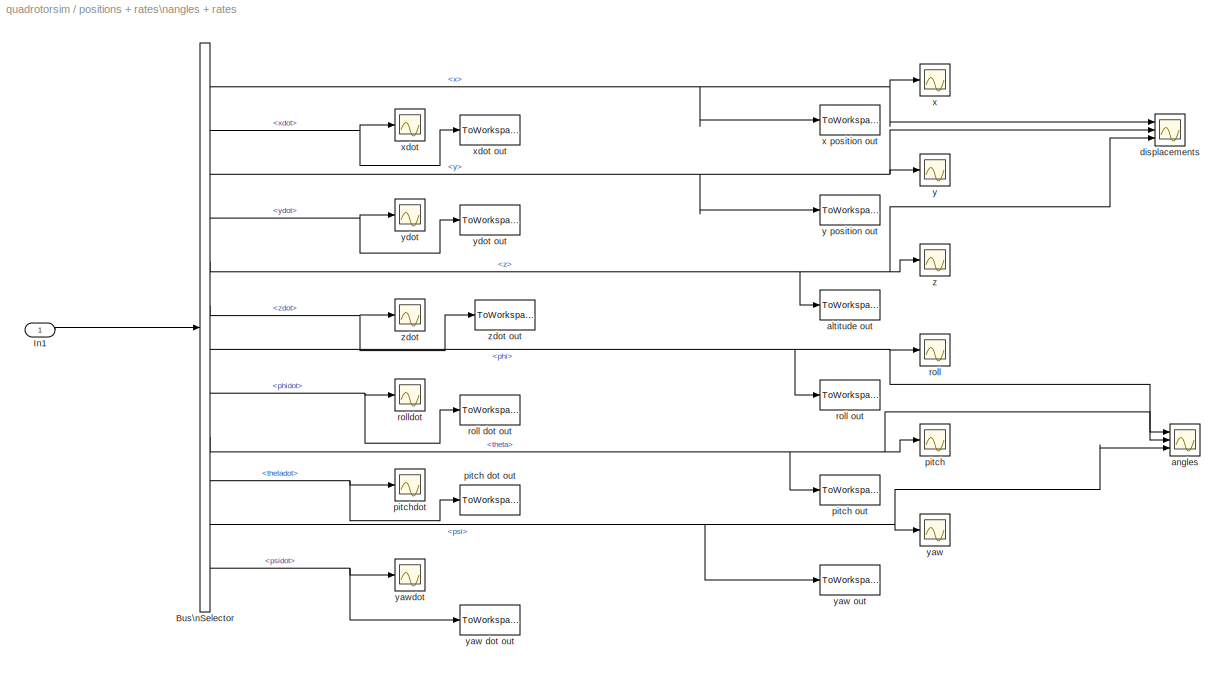
BLOCK [SubSystem] positions + rates\nangles + rates
  FunctionWithSeparateData = off
  MaskDisplay = disp('system states')
  MaskHideContents = off
  MaskIconFrame = on
  MaskIconOpaque = on
  MaskIconRotate = none
  MaskIconUnits = autoscale
  MaskPortRotate = default
  MinAlgLoopOccurrences = off
  Opaque = off
  Ports = [1]
  PropExecContextOutsideSubsystem = off
  RTWSystemCode = Auto
  RequestExecContextInheritance = off
  SID = 29
BLOCK [BusSelector] positions + rates\nangles + rates/Bus\nSelector
  OutputSignals = x,xdot,y,ydot,z,zdot,phi,phidot,theta,thetadot,psi,psidot
  Ports = [1, 12]
  SID = 1343
BLOCK [Inport] positions + rates\nangles + rates/In1
  IconDisplay = Port number
  SID = 30
BLOCK [ToWorkspace] positions + rates\nangles + rates/altitude out
  MaxDataPoints = inf
  Ports = [1]
  SID = 32
  SampleTime = -1
  SaveFormat = Array
  VariableName = z
BLOCK [Scope] positions + rates\nangles + rates/angles
  DataFormat = StructureWithTime
  Floating = off
  LimitDataPoints = off
  NumInputPorts = 3
  Ports = [3]
  SID = 33
  SampleTime = 0
  SaveName = ScopeData13
  TimeRange = 60
  YMax = 7.5~15~1
  YMin = -7.5~0~-1
BLOCK [Scope] positions + rates\nangles + rates/displacements
  DataFormat = StructureWithTime
  Floating = off
  LimitDataPoints = off
  NumInputPorts = 3
  Ports = [3]
  SID = 34
  SampleTime = 0
  SaveName = ScopeData19
  TimeRange = 60
  YMax = 5000~0~0
  YMin = 0~-5000~-500
BLOCK [Scope] positions + rates\nangles + rates/pitch
  DataFormat = StructureWithTime
  Floating = off
  LimitDataPoints = off
  NumInputPorts = 1
  Ports = [1]
  SID = 35
  SampleTime = 0
  SaveName = ScopeData1
  TimeRange = 4
  YMax = 0.045
  YMin = -0.055
BLOCK [ToWorkspace] positions + rates\nangles + rates/pitch dot out
  MaxDataPoints = inf
  Ports = [1]
  SID = 36
  SampleTime = -1
  SaveFormat = Array
  VariableName = dotpitch
BLOCK [ToWorkspace] positions + rates\nangles + rates/pitch out
  MaxDataPoints = inf
  Ports = [1]
  SID = 37
  SampleTime = -1
  SaveFormat = Array
  VariableName = pitch
BLOCK [Scope] positions + rates\nangles + rates/pitchdot
  DataFormat = StructureWithTime
  Floating = off
  LimitDataPoints = off
  NumInputPorts = 1
  Ports = [1]
  SID = 38
  SampleTime = 0
  SaveName = ScopeData4
  YMax = 1.75
  YMin = -1.75
BLOCK [Scope] positions + rates\nangles + rates/roll
  DataFormat = StructureWithTime
  Floating = off
  LimitDataPoints = off
  NumInputPorts = 1
  Ports = [1]
  SID = 39
  SampleTime = 0
  TimeRange = 0.25
  YMax = -0.008
  YMin = -0.031
BLOCK [ToWorkspace] positions + rates\nangles + rates/roll dot out
  MaxDataPoints = inf
  Ports = [1]
  SID = 40
  SampleTime = -1
  SaveFormat = Array
  VariableName = dotroll
BLOCK [ToWorkspace] positions + rates\nangles + rates/roll out
  MaxDataPoints = inf
  Ports = [1]
  SID = 41
  SampleTime = -1
  SaveFormat = Array
  VariableName = roll
BLOCK [Scope] positions + rates\nangles + rates/rolldot
  DataFormat = StructureWithTime
  Floating = off
  LimitDataPoints = off
  NumInputPorts = 1
  Ports = [1]
  SID = 42
  SampleTime = 0
  SaveName = ScopeData5
  TimeRange = 7
  YMax = 0.125
  YMin = -0.15
BLOCK [Scope] positions + rates\nangles + rates/x
  DataFormat = StructureWithTime
  Floating = off
  LimitDataPoints = off
  NumInputPorts = 1
  Ports = [1]
  SID = 43
  SampleTime = 0
  SaveName = ScopeData6
  TimeRange = 20
  YMax = 2.5
  YMin = -0.5
BLOCK [ToWorkspace] positions + rates\nangles + rates/x position out
  MaxDataPoints = inf
  Ports = [1]
  SID = 44
  SampleTime = -1
  SaveFormat = Array
  VariableName = x
BLOCK [Scope] positions + rates\nangles + rates/xdot
  DataFormat = StructureWithTime
  Floating = off
  LimitDataPoints = off
  NumInputPorts = 1
  Ports = [1]
  SID = 45
  SampleTime = 0
  SaveName = ScopeData7
  TimeRange = 5
  YMax = 0
  YMin = -4.75e-015
BLOCK [ToWorkspace] positions + rates\nangles + rates/xdot out
  MaxDataPoints = inf
  Ports = [1]
  SID = 46
  SampleTime = -1
  SaveFormat = Array
  VariableName = xdot
BLOCK [Scope] positions + rates\nangles + rates/y
  DataFormat = StructureWithTime
  Floating = off
  LimitDataPoints = off
  NumInputPorts = 1
  Ports = [1]
  SID = 47
  SampleTime = 0
  SaveName = ScopeData8
  TimeRange = 5
  YMax = 2.075
  YMin = 1.825
  ZoomMode = yonly
BLOCK [ToWorkspace] positions + rates\nangles + rates/y position out
  MaxDataPoints = inf
  Ports = [1]
  SID = 48
  SampleTime = -1
  SaveFormat = Array
  VariableName = y
BLOCK [Scope] positions + rates\nangles + rates/yaw
  DataFormat = StructureWithTime
  Floating = off
  LimitDataPoints = off
  NumInputPorts = 1
  Ports = [1]
  SID = 49
  SampleTime = 0
  SaveName = ScopeData2
  TimeRange = 5
  YMax = 0.0125
  YMin = -0.02
BLOCK [ToWorkspace] positions + rates\nangles + rates/yaw dot out
  MaxDataPoints = inf
  Ports = [1]
  SID = 50
  SampleTime = -1
  SaveFormat = Array
  VariableName = dotyaw
BLOCK [ToWorkspace] positions + rates\nangles + rates/yaw out
  MaxDataPoints = inf
  Ports = [1]
  SID = 51
  SampleTime = -1
  SaveFormat = Array
  VariableName = yaw
BLOCK [Scope] positions + rates\nangles + rates/yawdot
  DataFormat = StructureWithTime
  Floating = off
  LimitDataPoints = off
  NumInputPorts = 1
  Ports = [1]
  SID = 52
  SampleTime = 0
  SaveName = ScopeData9
  TimeRange = 18
  YMax = 0.15
  YMin = -0.275
BLOCK [Scope] positions + rates\nangles + rates/ydot
  DataFormat = StructureWithTime
  Floating = off
  LimitDataPoints = off
  NumInputPorts = 1
  Ports = [1]
  SID = 53
  SampleTime = 0
  SaveName = ScopeData10
  TimeRange = 5
  YMax = -141.75
  YMin = -143.75
BLOCK [ToWorkspace] positions + rates\nangles + rates/ydot out
  MaxDataPoints = inf
  Ports = [1]
  SID = 54
  SampleTime = -1
  SaveFormat = Array
  VariableName = ydot
BLOCK [Scope] positions + rates\nangles + rates/z
  DataFormat = StructureWithTime
  Floating = off
  LimitDataPoints = off
  NumInputPorts = 1
  Ports = [1]
  SID = 55
  SampleTime = 0
  SaveName = ScopeData11
  TimeRange = 5
  YMax = 1.5
  YMin = 0.2
BLOCK [Scope] positions + rates\nangles + rates/zdot
  DataFormat = StructureWithTime
  Floating = off
  LimitDataPoints = off
  NumInputPorts = 1
  Ports = [1]
  SID = 56
  SampleTime = 0
  SaveName = ScopeData12
  TimeRange = 10
  YMax = -107.25
  YMin = -110.5
BLOCK [ToWorkspace] positions + rates\nangles + rates/zdot out
  MaxDataPoints = inf
  Ports = [1]
  SID = 57
  SampleTime = -1
  SaveFormat = Array
  VariableName = zdot
ANNOTATION (root): \nQuadrotor Dynamics Simulator
ANNOTATION Initial conditions \npositions + rates\nangles + rates: angles and angular velocities
ANNOTATION Initial conditions \npositions + rates\nangles + rates: pitch
ANNOTATION Initial conditions \npositions + rates\nangles + rates: positions and linear velocities
ANNOTATION Initial conditions \npositions + rates\nangles + rates: roll
ANNOTATION Initial conditions \npositions + rates\nangles + rates: yaw
ANNOTATION Sensor Readings: Senor output values in 13 bits
ANNOTATION Sensor Readings/Rate Sensor Unit/Gyro: Resolution of Gyro is assumed to be 2000 deg/sec
ANNOTATION State Estimation/ADC conversion: Conversion of bits to the engineering units (rad/sec)
ANNOTATION State Estimation/attitude estimator/Kalman Filter/KF Prediction: The state propagation (x=Ax+Bu) is done in the simulation integration portion
ANNOTATION System Dynamics: yddot
LINE Actuators/Bus\nCreator:1 -> Actuators/Om:1
NET Actuators/Bus\nSelector:1 -> Actuators/Motor Dynamics - Front Motor :2, Actuators/Motor Dynamics - Left Motor:2, Actuators/Motor Dynamics - Rear Motor:2, Actuators/Motor Dynamics - Right Motor:2
LINE Actuators/From:1 -> Actuators/Bus\nSelector:1
LINE Actuators/Motor Dynamics - Front Motor /Bus\nSelector:1 -> Actuators/Motor Dynamics - Front Motor /d*Om^2//(Jm+Jp):3
LINE Actuators/Motor Dynamics - Front Motor /Constant1:1 -> Actuators/Motor Dynamics - Front Motor /Jm + Jp:1
NET Actuators/Motor Dynamics - Front Motor /Constant2:1 -> Actuators/Motor Dynamics - Front Motor /Ke*V//(R*(Jm+Jp)):4, Actuators/Motor Dynamics - Front Motor /Ke^2*Om//(R*(Jm+Jp)):4
NET Actuators/Motor Dynamics - Front Motor /Constant3:1 -> Actuators/Motor Dynamics - Front Motor /Ke*V//(R*(Jm+Jp)):1, Actuators/Motor Dynamics - Front Motor /Ke^2:1
LINE Actuators/Motor Dynamics - Front Motor /Constant:1 -> Actuators/Motor Dynamics - Front Motor /Jm + Jp:2
NET Actuators/Motor Dynamics - Front Motor /Integrator:1 -> Actuators/Motor Dynamics - Front Motor /Ke^2*Om//(R*(Jm+Jp)):1, Actuators/Motor Dynamics - Front Motor /Om^2:1, Actuators/Motor Dynamics - Front Motor /RPS:1
NET Actuators/Motor Dynamics - Front Motor /Jm + Jp:1 -> Actuators/Motor Dynamics - Front Motor /Ke*V//(R*(Jm+Jp)):3, Actuators/Motor Dynamics - Front Motor /Ke^2*Om//(R*(Jm+Jp)):3, Actuators/Motor Dynamics - Front Motor /d*Om^2//(Jm+Jp):2
LINE Actuators/Motor Dynamics - Front Motor /Ke*V//(R*(Jm+Jp)):1 -> Actuators/Motor Dynamics - Front Motor /Subtract:1
LINE Actuators/Motor Dynamics - Front Motor /Ke^2*Om//(R*(Jm+Jp)):1 -> Actuators/Motor Dynamics - Front Motor /Subtract:2
LINE Actuators/Motor Dynamics - Front Motor /Ke^2:1 -> Actuators/Motor Dynamics - Front Motor /Ke^2*Om//(R*(Jm+Jp)):2
LINE Actuators/Motor Dynamics - Front Motor /Om^2:1 -> Actuators/Motor Dynamics - Front Motor /d*Om^2//(Jm+Jp):1
LINE Actuators/Motor Dynamics - Front Motor /Subtract:1 -> Actuators/Motor Dynamics - Front Motor /Integrator:1
LINE Actuators/Motor Dynamics - Front Motor /d*Om^2//(Jm+Jp):1 -> Actuators/Motor Dynamics - Front Motor /Subtract:3
LINE Actuators/Motor Dynamics - Front Motor /drag coefficient:1 -> Actuators/Motor Dynamics - Front Motor /Bus\nSelector:1
LINE Actuators/Motor Dynamics - Front Motor /voltage:1 -> Actuators/Motor Dynamics - Front Motor /Ke*V//(R*(Jm+Jp)):2
LINE Actuators/Motor Dynamics - Front Motor :1 -> Actuators/Bus\nCreator:1
LINE Actuators/Motor Dynamics - Left Motor/Bus\nSelector:1 -> Actuators/Motor Dynamics - Left Motor/d*Om^2//(Jm+Jp):3
LINE Actuators/Motor Dynamics - Left Motor/Constant1:1 -> Actuators/Motor Dynamics - Left Motor/Jm + Jp:1
NET Actuators/Motor Dynamics - Left Motor/Constant2:1 -> Actuators/Motor Dynamics - Left Motor/Ke*V//(R*(Jm+Jp)):4, Actuators/Motor Dynamics - Left Motor/Ke^2*Om//(R*(Jm+Jp)):4
NET Actuators/Motor Dynamics - Left Motor/Constant3:1 -> Actuators/Motor Dynamics - Left Motor/Ke*V//(R*(Jm+Jp)):1, Actuators/Motor Dynamics - Left Motor/Ke^2:1
LINE Actuators/Motor Dynamics - Left Motor/Constant:1 -> Actuators/Motor Dynamics - Left Motor/Jm + Jp:2
NET Actuators/Motor Dynamics - Left Motor/Integrator:1 -> Actuators/Motor Dynamics - Left Motor/Ke^2*Om//(R*(Jm+Jp)):1, Actuators/Motor Dynamics - Left Motor/Om^2:1, Actuators/Motor Dynamics - Left Motor/RPS:1
NET Actuators/Motor Dynamics - Left Motor/Jm + Jp:1 -> Actuators/Motor Dynamics - Left Motor/Ke*V//(R*(Jm+Jp)):3, Actuators/Motor Dynamics - Left Motor/Ke^2*Om//(R*(Jm+Jp)):3, Actuators/Motor Dynamics - Left Motor/d*Om^2//(Jm+Jp):2
LINE Actuators/Motor Dynamics - Left Motor/Ke*V//(R*(Jm+Jp)):1 -> Actuators/Motor Dynamics - Left Motor/Subtract:1
LINE Actuators/Motor Dynamics - Left Motor/Ke^2*Om//(R*(Jm+Jp)):1 -> Actuators/Motor Dynamics - Left Motor/Subtract:2
LINE Actuators/Motor Dynamics - Left Motor/Ke^2:1 -> Actuators/Motor Dynamics - Left Motor/Ke^2*Om//(R*(Jm+Jp)):2
LINE Actuators/Motor Dynamics - Left Motor/Om^2:1 -> Actuators/Motor Dynamics - Left Motor/d*Om^2//(Jm+Jp):1
LINE Actuators/Motor Dynamics - Left Motor/Subtract:1 -> Actuators/Motor Dynamics - Left Motor/Integrator:1
LINE Actuators/Motor Dynamics - Left Motor/d*Om^2//(Jm+Jp):1 -> Actuators/Motor Dynamics - Left Motor/Subtract:3
LINE Actuators/Motor Dynamics - Left Motor/drag coefficient:1 -> Actuators/Motor Dynamics - Left Motor/Bus\nSelector:1
LINE Actuators/Motor Dynamics - Left Motor/voltage:1 -> Actuators/Motor Dynamics - Left Motor/Ke*V//(R*(Jm+Jp)):2
LINE Actuators/Motor Dynamics - Left Motor:1 -> Actuators/Bus\nCreator:4
LINE Actuators/Motor Dynamics - Rear Motor/Bus\nSelector:1 -> Actuators/Motor Dynamics - Rear Motor/d*Om^2//(Jm+Jp):3
LINE Actuators/Motor Dynamics - Rear Motor/Constant1:1 -> Actuators/Motor Dynamics - Rear Motor/Jm + Jp:1
NET Actuators/Motor Dynamics - Rear Motor/Constant2:1 -> Actuators/Motor Dynamics - Rear Motor/Ke*V//(R*(Jm+Jp)):4, Actuators/Motor Dynamics - Rear Motor/Ke^2*Om//(R*(Jm+Jp)):4
NET Actuators/Motor Dynamics - Rear Motor/Constant3:1 -> Actuators/Motor Dynamics - Rear Motor/Ke*V//(R*(Jm+Jp)):1, Actuators/Motor Dynamics - Rear Motor/Ke^2:1
LINE Actuators/Motor Dynamics - Rear Motor/Constant:1 -> Actuators/Motor Dynamics - Rear Motor/Jm + Jp:2
NET Actuators/Motor Dynamics - Rear Motor/Integrator:1 -> Actuators/Motor Dynamics - Rear Motor/Ke^2*Om//(R*(Jm+Jp)):1, Actuators/Motor Dynamics - Rear Motor/Om^2:1, Actuators/Motor Dynamics - Rear Motor/RPS:1
NET Actuators/Motor Dynamics - Rear Motor/Jm + Jp:1 -> Actuators/Motor Dynamics - Rear Motor/Ke*V//(R*(Jm+Jp)):3, Actuators/Motor Dynamics - Rear Motor/Ke^2*Om//(R*(Jm+Jp)):3, Actuators/Motor Dynamics - Rear Motor/d*Om^2//(Jm+Jp):2
LINE Actuators/Motor Dynamics - Rear Motor/Ke*V//(R*(Jm+Jp)):1 -> Actuators/Motor Dynamics - Rear Motor/Subtract:1
LINE Actuators/Motor Dynamics - Rear Motor/Ke^2*Om//(R*(Jm+Jp)):1 -> Actuators/Motor Dynamics - Rear Motor/Subtract:2
LINE Actuators/Motor Dynamics - Rear Motor/Ke^2:1 -> Actuators/Motor Dynamics - Rear Motor/Ke^2*Om//(R*(Jm+Jp)):2
LINE Actuators/Motor Dynamics - Rear Motor/Om^2:1 -> Actuators/Motor Dynamics - Rear Motor/d*Om^2//(Jm+Jp):1
LINE Actuators/Motor Dynamics - Rear Motor/Subtract:1 -> Actuators/Motor Dynamics - Rear Motor/Integrator:1
LINE Actuators/Motor Dynamics - Rear Motor/d*Om^2//(Jm+Jp):1 -> Actuators/Motor Dynamics - Rear Motor/Subtract:3
LINE Actuators/Motor Dynamics - Rear Motor/drag coefficient:1 -> Actuators/Motor Dynamics - Rear Motor/Bus\nSelector:1
LINE Actuators/Motor Dynamics - Rear Motor/voltage:1 -> Actuators/Motor Dynamics - Rear Motor/Ke*V//(R*(Jm+Jp)):2
LINE Actuators/Motor Dynamics - Rear Motor:1 -> Actuators/Bus\nCreator:3
LINE Actuators/Motor Dynamics - Right Motor/Bus\nSelector:1 -> Actuators/Motor Dynamics - Right Motor/d*Om^2//(Jm+Jp):3
LINE Actuators/Motor Dynamics - Right Motor/Constant1:1 -> Actuators/Motor Dynamics - Right Motor/Jm + Jp:1
NET Actuators/Motor Dynamics - Right Motor/Constant2:1 -> Actuators/Motor Dynamics - Right Motor/Ke*V//(R*(Jm+Jp)):4, Actuators/Motor Dynamics - Right Motor/Ke^2*Om//(R*(Jm+Jp)):4
NET Actuators/Motor Dynamics - Right Motor/Constant3:1 -> Actuators/Motor Dynamics - Right Motor/Ke*V//(R*(Jm+Jp)):1, Actuators/Motor Dynamics - Right Motor/Ke^2:1
LINE Actuators/Motor Dynamics - Right Motor/Constant:1 -> Actuators/Motor Dynamics - Right Motor/Jm + Jp:2
NET Actuators/Motor Dynamics - Right Motor/Integrator:1 -> Actuators/Motor Dynamics - Right Motor/Ke^2*Om//(R*(Jm+Jp)):1, Actuators/Motor Dynamics - Right Motor/Om^2:1, Actuators/Motor Dynamics - Right Motor/RPS:1
NET Actuators/Motor Dynamics - Right Motor/Jm + Jp:1 -> Actuators/Motor Dynamics - Right Motor/Ke*V//(R*(Jm+Jp)):3, Actuators/Motor Dynamics - Right Motor/Ke^2*Om//(R*(Jm+Jp)):3, Actuators/Motor Dynamics - Right Motor/d*Om^2//(Jm+Jp):2
LINE Actuators/Motor Dynamics - Right Motor/Ke*V//(R*(Jm+Jp)):1 -> Actuators/Motor Dynamics - Right Motor/Subtract:1
LINE Actuators/Motor Dynamics - Right Motor/Ke^2*Om//(R*(Jm+Jp)):1 -> Actuators/Motor Dynamics - Right Motor/Subtract:2
LINE Actuators/Motor Dynamics - Right Motor/Ke^2:1 -> Actuators/Motor Dynamics - Right Motor/Ke^2*Om//(R*(Jm+Jp)):2
LINE Actuators/Motor Dynamics - Right Motor/Om^2:1 -> Actuators/Motor Dynamics - Right Motor/d*Om^2//(Jm+Jp):1
LINE Actuators/Motor Dynamics - Right Motor/Subtract:1 -> Actuators/Motor Dynamics - Right Motor/Integrator:1
LINE Actuators/Motor Dynamics - Right Motor/d*Om^2//(Jm+Jp):1 -> Actuators/Motor Dynamics - Right Motor/Subtract:3
LINE Actuators/Motor Dynamics - Right Motor/drag coefficient:1 -> Actuators/Motor Dynamics - Right Motor/Bus\nSelector:1
LINE Actuators/Motor Dynamics - Right Motor/voltage:1 -> Actuators/Motor Dynamics - Right Motor/Ke*V//(R*(Jm+Jp)):2
LINE Actuators/Motor Dynamics - Right Motor:1 -> Actuators/Bus\nCreator:2
NET Actuators/voltage:1 -> Actuators/Motor Dynamics - Front Motor :1, Actuators/Motor Dynamics - Left Motor:1, Actuators/Motor Dynamics - Rear Motor:1, Actuators/Motor Dynamics - Right Motor:1
LINE Actuators:1 -> System Dynamics:1
LINE Control/Bus\nSelector:1 -> Control/attitude controller:2
LINE Control/Voltage conversion:1 -> Control/Voltage:1
LINE Control/attitude controller/Add:1 -> Control/attitude controller/Gain:1
LINE Control/attitude controller/Gain:1 -> Control/attitude controller/trq:1
LINE Control/attitude controller/west:1 -> Control/attitude controller/Add:2
LINE Control/attitude controller/wstr:1 -> Control/attitude controller/Add:1
LINE Control/attitude controller:1 -> Control/Voltage conversion:1
LINE Control/attitude solution:1 -> Control/Bus\nSelector:1
LINE Control/steering commands/Constant4:1 -> Control/steering commands/wstr:1
LINE Control/steering commands:1 -> Control/attitude controller:1
LINE Control:1 -> Actuators:1
LINE Initial conditions \npositions + rates\nangles + rates/Bus\nCreator:1 -> Initial conditions \npositions + rates\nangles + rates/Goto:1
LINE Initial conditions \npositions + rates\nangles + rates/phi [rad]:1 -> Initial conditions \npositions + rates\nangles + rates/Bus\nCreator:7
LINE Initial conditions \npositions + rates\nangles + rates/phidot [rad//s]:1 -> Initial conditions \npositions + rates\nangles + rates/Bus\nCreator:8
LINE Initial conditions \npositions + rates\nangles + rates/psi [rad]:1 -> Initial conditions \npositions + rates\nangles + rates/Bus\nCreator:11
LINE Initial conditions \npositions + rates\nangles + rates/psidot [rad//s]:1 -> Initial conditions \npositions + rates\nangles + rates/Bus\nCreator:12
LINE Initial conditions \npositions + rates\nangles + rates/theta [rad]:1 -> Initial conditions \npositions + rates\nangles + rates/Bus\nCreator:9
LINE Initial conditions \npositions + rates\nangles + rates/thetadot [rad//s]:1 -> Initial conditions \npositions + rates\nangles + rates/Bus\nCreator:10
LINE Initial conditions \npositions + rates\nangles + rates/x [m]:1 -> Initial conditions \npositions + rates\nangles + rates/Bus\nCreator:1
LINE Initial conditions \npositions + rates\nangles + rates/xdot [m//s]:1 -> Initial conditions \npositions + rates\nangles + rates/Bus\nCreator:2
LINE Initial conditions \npositions + rates\nangles + rates/y [m]:1 -> Initial conditions \npositions + rates\nangles + rates/Bus\nCreator:3
LINE Initial conditions \npositions + rates\nangles + rates/ydot [m//s]:1 -> Initial conditions \npositions + rates\nangles + rates/Bus\nCreator:4
LINE Initial conditions \npositions + rates\nangles + rates/z [m]:1 -> Initial conditions \npositions + rates\nangles + rates/Bus\nCreator:5
LINE Initial conditions \npositions + rates\nangles + rates/zdot [m//s]:1 -> Initial conditions \npositions + rates\nangles + rates/Bus\nCreator:6
LINE Sensor Readings/Altitude Sensor/In1:1 -> Sensor Readings/Altitude Sensor/Sonar:1
LINE Sensor Readings/Altitude Sensor/Sonar/Add:1 -> Sensor Readings/Altitude Sensor/Sonar/Altitude:1
LINE Sensor Readings/Altitude Sensor/Sonar/Band-Limited\nWhite Noise:1 -> Sensor Readings/Altitude Sensor/Sonar/NoiseON//OFF:1
LINE Sensor Readings/Altitude Sensor/Sonar/Bus\nSelector:1 -> Sensor Readings/Altitude Sensor/Sonar/Rate Transition:1
LINE Sensor Readings/Altitude Sensor/Sonar/In1:1 -> Sensor Readings/Altitude Sensor/Sonar/Bus\nSelector:1
LINE Sensor Readings/Altitude Sensor/Sonar/NoiseON//OFF:1 -> Sensor Readings/Altitude Sensor/Sonar/Add:2
LINE Sensor Readings/Altitude Sensor/Sonar/Rate Transition:1 -> Sensor Readings/Altitude Sensor/Sonar/Add:1
LINE Sensor Readings/Altitude Sensor/Sonar:1 -> Sensor Readings/Altitude Sensor/Out1:1
LINE Sensor Readings/Altitude Sensor:1 -> Sensor Readings/Terminator:1
LINE Sensor Readings/Rate Sensor Unit/Bus\nCreator2:1 -> Sensor Readings/Rate Sensor Unit/Out1:1
LINE Sensor Readings/Rate Sensor Unit/Demux2:1 -> Sensor Readings/Rate Sensor Unit/Bus\nCreator2:1
LINE Sensor Readings/Rate Sensor Unit/Demux2:2 -> Sensor Readings/Rate Sensor Unit/Bus\nCreator2:2
LINE Sensor Readings/Rate Sensor Unit/Demux2:3 -> Sensor Readings/Rate Sensor Unit/Bus\nCreator2:3
LINE Sensor Readings/Rate Sensor Unit/Gyro/Add:1 -> Sensor Readings/Rate Sensor Unit/Gyro/ConversiontoBits:1
LINE Sensor Readings/Rate Sensor Unit/Gyro/Band-Limited\nWhite Noise:1 -> Sensor Readings/Rate Sensor Unit/Gyro/NoiseON//OFF:1
LINE Sensor Readings/Rate Sensor Unit/Gyro/Bus\nCreator:1 -> Sensor Readings/Rate Sensor Unit/Gyro/Rate Transition:1
LINE Sensor Readings/Rate Sensor Unit/Gyro/Bus\nSelector:1 -> Sensor Readings/Rate Sensor Unit/Gyro/Bus\nCreator:1
LINE Sensor Readings/Rate Sensor Unit/Gyro/Bus\nSelector:2 -> Sensor Readings/Rate Sensor Unit/Gyro/Bus\nCreator:2
LINE Sensor Readings/Rate Sensor Unit/Gyro/Bus\nSelector:3 -> Sensor Readings/Rate Sensor Unit/Gyro/Bus\nCreator:3
LINE Sensor Readings/Rate Sensor Unit/Gyro/ConversiontoBits:1 -> Sensor Readings/Rate Sensor Unit/Gyro/Saturation:1
LINE Sensor Readings/Rate Sensor Unit/Gyro/Data Type Conversion:1 -> Sensor Readings/Rate Sensor Unit/Gyro/rates:1
LINE Sensor Readings/Rate Sensor Unit/Gyro/In1:1 -> Sensor Readings/Rate Sensor Unit/Gyro/Bus\nSelector:1
LINE Sensor Readings/Rate Sensor Unit/Gyro/NoiseON//OFF:1 -> Sensor Readings/Rate Sensor Unit/Gyro/Add:2
LINE Sensor Readings/Rate Sensor Unit/Gyro/RadtoDeg:1 -> Sensor Readings/Rate Sensor Unit/Gyro/Add:1
LINE Sensor Readings/Rate Sensor Unit/Gyro/Rate Transition:1 -> Sensor Readings/Rate Sensor Unit/Gyro/RadtoDeg:1
LINE Sensor Readings/Rate Sensor Unit/Gyro/Saturation:1 -> Sensor Readings/Rate Sensor Unit/Gyro/Data Type Conversion:1
LINE Sensor Readings/Rate Sensor Unit/Gyro:1 -> Sensor Readings/Rate Sensor Unit/Demux2:1
LINE Sensor Readings/Rate Sensor Unit/In1:1 -> Sensor Readings/Rate Sensor Unit/Gyro:1
LINE Sensor Readings/Rate Sensor Unit:1 -> Sensor Readings/raw sensor readings:1
NET Sensor Readings/output states:1 -> Sensor Readings/Altitude Sensor:1, Sensor Readings/Rate Sensor Unit:1
LINE Sensor Readings:1 -> State Estimation:1
LINE State Estimation/ADC conversion/Conversion of bits to the engineering units (rad//sec):1 -> State Estimation/ADC conversion/Mux:1
LINE State Estimation/ADC conversion/Demux:1 -> State Estimation/ADC conversion/Conversion of bits to the engineering units (rad//sec):1
LINE State Estimation/ADC conversion/Demux:2 -> State Estimation/ADC conversion/Gain2:1
LINE State Estimation/ADC conversion/Demux:3 -> State Estimation/ADC conversion/Gain3:1
LINE State Estimation/ADC conversion/Gain2:1 -> State Estimation/ADC conversion/Mux:2
LINE State Estimation/ADC conversion/Gain3:1 -> State Estimation/ADC conversion/Mux:3
LINE State Estimation/ADC conversion/In1:1 -> State Estimation/ADC conversion/Demux:1
LINE State Estimation/ADC conversion/Mux:1 -> State Estimation/ADC conversion/w:1
NET State Estimation/ADC conversion:1 -> State Estimation/attitude estimator:2, State Estimation/kinematics:\ndq//dt = 1//2 Wq:1
LINE State Estimation/Bus\nCreator:1 -> State Estimation/attitude solution:1
LINE State Estimation/attitude estimator/-1:1 -> State Estimation/attitude estimator/quaternion\nmultiplication:1
LINE State Estimation/attitude estimator/-3:1 -> State Estimation/attitude estimator/Sum1:2
LINE State Estimation/attitude estimator/-:1 -> State Estimation/attitude estimator/quaternion\ninversion:1
NET State Estimation/attitude estimator/Gain2:1 -> State Estimation/attitude estimator/Kalman Filter:1, State Estimation/attitude estimator/To Workspace6:1
NET State Estimation/attitude estimator/Kalman Filter/-1:1 -> State Estimation/attitude estimator/Kalman Filter/KF Prediction:1, State Estimation/attitude estimator/Kalman Filter/Selector:1
LINE State Estimation/attitude estimator/Kalman Filter/Gain:1 -> State Estimation/attitude estimator/Kalman Filter/[therr;werr]:1
NET State Estimation/attitude estimator/Kalman Filter/KF Correction/Fmat3:1 -> State Estimation/attitude estimator/Kalman Filter/KF Correction/HPH':1, State Estimation/attitude estimator/Kalman Filter/KF Correction/K1:2
NET State Estimation/attitude estimator/Kalman Filter/KF Correction/Fmat4:1 -> State Estimation/attitude estimator/Kalman Filter/KF Correction/HPH':3, State Estimation/attitude estimator/Kalman Filter/KF Correction/K:2
LINE State Estimation/attitude estimator/Kalman Filter/KF Correction/Fmat5:1 -> State Estimation/attitude estimator/Kalman Filter/KF Correction/S:2
LINE State Estimation/attitude estimator/Kalman Filter/KF Correction/Fmat6:1 -> State Estimation/attitude estimator/Kalman Filter/KF Correction/Sum1:1
LINE State Estimation/attitude estimator/Kalman Filter/KF Correction/HPH':1 -> State Estimation/attitude estimator/Kalman Filter/KF Correction/S:1
LINE State Estimation/attitude estimator/Kalman Filter/KF Correction/K* dY:1 -> State Estimation/attitude estimator/Kalman Filter/KF Correction/correction:1
LINE State Estimation/attitude estimator/Kalman Filter/KF Correction/K1:1 -> State Estimation/attitude estimator/Kalman Filter/KF Correction/Sum1:2
NET State Estimation/attitude estimator/Kalman Filter/KF Correction/K:1 -> State Estimation/attitude estimator/Kalman Filter/KF Correction/K* dY:1, State Estimation/attitude estimator/Kalman Filter/KF Correction/K1:1
LINE State Estimation/attitude estimator/Kalman Filter/KF Correction/P1:1 -> State Estimation/attitude estimator/Kalman Filter/KF Correction/P:1
NET State Estimation/attitude estimator/Kalman Filter/KF Correction/Pp:1 -> State Estimation/attitude estimator/Kalman Filter/KF Correction/HPH':2, State Estimation/attitude estimator/Kalman Filter/KF Correction/K:1, State Estimation/attitude estimator/Kalman Filter/KF Correction/P1:2
LINE State Estimation/attitude estimator/Kalman Filter/KF Correction/S:1 -> State Estimation/attitude estimator/Kalman Filter/KF Correction/K:3
LINE State Estimation/attitude estimator/Kalman Filter/KF Correction/Sum1:1 -> State Estimation/attitude estimator/Kalman Filter/KF Correction/P1:1
LINE State Estimation/attitude estimator/Kalman Filter/KF Correction/dY:1 -> State Estimation/attitude estimator/Kalman Filter/KF Correction/K* dY:2
LINE State Estimation/attitude estimator/Kalman Filter/KF Correction:1 -> State Estimation/attitude estimator/Kalman Filter/Switch:3
LINE State Estimation/attitude estimator/Kalman Filter/KF Correction:2 -> State Estimation/attitude estimator/Kalman Filter/Switch1:3
LINE State Estimation/attitude estimator/Kalman Filter/KF Prediction/FPF':1 -> State Estimation/attitude estimator/Kalman Filter/KF Prediction/Pp:1
LINE State Estimation/attitude estimator/Kalman Filter/KF Prediction/Fmat1:1 -> State Estimation/attitude estimator/Kalman Filter/KF Prediction/FPF':3
LINE State Estimation/attitude estimator/Kalman Filter/KF Prediction/Fmat2:1 -> State Estimation/attitude estimator/Kalman Filter/KF Prediction/Pp:2
LINE State Estimation/attitude estimator/Kalman Filter/KF Prediction/Fmat:1 -> State Estimation/attitude estimator/Kalman Filter/KF Prediction/FPF':1
LINE State Estimation/attitude estimator/Kalman Filter/KF Prediction/Pin:1 -> State Estimation/attitude estimator/Kalman Filter/KF Prediction/FPF':2
LINE State Estimation/attitude estimator/Kalman Filter/KF Prediction/Pp:1 -> State Estimation/attitude estimator/Kalman Filter/KF Prediction/Pout:1
NET State Estimation/attitude estimator/Kalman Filter/KF Prediction:1 -> State Estimation/attitude estimator/Kalman Filter/KF Correction:1, State Estimation/attitude estimator/Kalman Filter/Switch:1
LINE State Estimation/attitude estimator/Kalman Filter/Math\nFunction:1 -> State Estimation/attitude estimator/Kalman Filter/Gain:1
LINE State Estimation/attitude estimator/Kalman Filter/Selector/Mux2:1 -> State Estimation/attitude estimator/Kalman Filter/Selector/Y:1
LINE State Estimation/attitude estimator/Kalman Filter/Selector/Selector1:1 -> State Estimation/attitude estimator/Kalman Filter/Selector/Mux2:1
LINE State Estimation/attitude estimator/Kalman Filter/Selector/Selector2:1 -> State Estimation/attitude estimator/Kalman Filter/Selector/Mux2:2
LINE State Estimation/attitude estimator/Kalman Filter/Selector/Selector3:1 -> State Estimation/attitude estimator/Kalman Filter/Selector/Mux2:3
LINE State Estimation/attitude estimator/Kalman Filter/Selector/Selector4:1 -> State Estimation/attitude estimator/Kalman Filter/Selector/Mux2:4
LINE State Estimation/attitude estimator/Kalman Filter/Selector/Selector5:1 -> State Estimation/attitude estimator/Kalman Filter/Selector/Mux2:5
LINE State Estimation/attitude estimator/Kalman Filter/Selector/Selector6:1 -> State Estimation/attitude estimator/Kalman Filter/Selector/Mux2:6
NET State Estimation/attitude estimator/Kalman Filter/Selector/U:1 -> State Estimation/attitude estimator/Kalman Filter/Selector/Selector1:1, State Estimation/attitude estimator/Kalman Filter/Selector/Selector2:1, State Estimation/attitude estimator/Kalman Filter/Selector/Selector3:1, State Estimation/attitude estimator/Kalman Filter/Selector/Selector4:1, State Estimation/attitude estimator/Kalman Filter/Selector/Selector5:1, State Estimation/attitude estimator/Kalman Filter/Selector/Selector6:1
LINE State Estimation/attitude estimator/Kalman Filter/Selector1/Fmat1:1 -> State Estimation/attitude estimator/Kalman Filter/Selector1/Mux2:1
LINE State Estimation/attitude estimator/Kalman Filter/Selector1/Fmat2:1 -> State Estimation/attitude estimator/Kalman Filter/Selector1/Mux2:3
LINE State Estimation/attitude estimator/Kalman Filter/Selector1/Fmat3:1 -> State Estimation/attitude estimator/Kalman Filter/Selector1/Mux2:2
LINE State Estimation/attitude estimator/Kalman Filter/Selector1/Fmat4:1 -> State Estimation/attitude estimator/Kalman Filter/Selector1/Mux2:4
LINE State Estimation/attitude estimator/Kalman Filter/Selector1/Fmat5:1 -> State Estimation/attitude estimator/Kalman Filter/Selector1/Mux2:6
LINE State Estimation/attitude estimator/Kalman Filter/Selector1/Fmat6:1 -> State Estimation/attitude estimator/Kalman Filter/Selector1/Mux2:5
LINE State Estimation/attitude estimator/Kalman Filter/Selector1/Mux2:1 -> State Estimation/attitude estimator/Kalman Filter/Selector1/zeros(6,1):1
LINE State Estimation/attitude estimator/Kalman Filter/Selector1:1 -> State Estimation/attitude estimator/Kalman Filter/Switch1:1
LINE State Estimation/attitude estimator/Kalman Filter/Selector:1 -> State Estimation/attitude estimator/Kalman Filter/Math\nFunction:1
LINE State Estimation/attitude estimator/Kalman Filter/Switch1:1 -> State Estimation/attitude estimator/Kalman Filter/correction:1
LINE State Estimation/attitude estimator/Kalman Filter/Switch:1 -> State Estimation/attitude estimator/Kalman Filter/-1:1
LINE State Estimation/attitude estimator/Kalman Filter/[therr;werr]:1 -> State Estimation/attitude estimator/Kalman Filter/To Workspace3:1
LINE State Estimation/attitude estimator/Kalman Filter/[therr;werr]:2 -> State Estimation/attitude estimator/Kalman Filter/To Workspace1:1
LINE State Estimation/attitude estimator/Kalman Filter/dY:1 -> State Estimation/attitude estimator/Kalman Filter/KF Correction:2
LINE State Estimation/attitude estimator/Kalman Filter/limited counter/-1:1 -> State Estimation/attitude estimator/Kalman Filter/limited counter/Pp:2
LINE State Estimation/attitude estimator/Kalman Filter/limited counter/Fmat1:1 -> State Estimation/attitude estimator/Kalman Filter/limited counter/Switch:1
LINE State Estimation/attitude estimator/Kalman Filter/limited counter/Fmat7:1 -> State Estimation/attitude estimator/Kalman Filter/limited counter/Pp:1
NET State Estimation/attitude estimator/Kalman Filter/limited counter/Pp:1 -> State Estimation/attitude estimator/Kalman Filter/limited counter/Switch:2, State Estimation/attitude estimator/Kalman Filter/limited counter/Switch:3, State Estimation/attitude estimator/Kalman Filter/limited counter/To Workspace3:1, State Estimation/attitude estimator/Kalman Filter/limited counter/count:1
LINE State Estimation/attitude estimator/Kalman Filter/limited counter/Switch:1 -> State Estimation/attitude estimator/Kalman Filter/limited counter/-1:1
NET State Estimation/attitude estimator/Kalman Filter/limited counter:1 -> State Estimation/attitude estimator/Kalman Filter/KF Correction:trigger, State Estimation/attitude estimator/Kalman Filter/Switch1:2, State Estimation/attitude estimator/Kalman Filter/Switch:2
LINE State Estimation/attitude estimator/Kalman Filter:1 -> State Estimation/attitude estimator/[therr;werr]:1
NET State Estimation/attitude estimator/Saturation:1 -> State Estimation/attitude estimator/-3:1, State Estimation/attitude estimator/Sum4:1
LINE State Estimation/attitude estimator/Sum1:1 -> State Estimation/attitude estimator/Saturation:1
NET State Estimation/attitude estimator/Sum4:1 -> State Estimation/attitude estimator/discrete quaternion\nintegration with\ncorrection:2, State Estimation/attitude estimator/west:1
LINE State Estimation/attitude estimator/[therr;werr]:1 -> State Estimation/attitude estimator/angle metering:1
LINE State Estimation/attitude estimator/[therr;werr]:2 -> State Estimation/attitude estimator/bias metering:1
NET State Estimation/attitude estimator/angle metering/Saturation2:1 -> State Estimation/attitude estimator/angle metering/Sum5:2, State Estimation/attitude estimator/angle metering/o:1
NET State Estimation/attitude estimator/angle metering/Sum2:1 -> State Estimation/attitude estimator/angle metering/Saturation2:1, State Estimation/attitude estimator/angle metering/Sum5:1
LINE State Estimation/attitude estimator/angle metering/Sum5:1 -> State Estimation/attitude estimator/angle metering/Unit Delay7:1
LINE State Estimation/attitude estimator/angle metering/Unit Delay7:1 -> State Estimation/attitude estimator/angle metering/Sum2:2
LINE State Estimation/attitude estimator/angle metering/i:1 -> State Estimation/attitude estimator/angle metering/Sum2:1
LINE State Estimation/attitude estimator/angle metering:1 -> State Estimation/attitude estimator/discrete quaternion\nintegration with\ncorrection:1
NET State Estimation/attitude estimator/bias metering/Saturation2:1 -> State Estimation/attitude estimator/bias metering/Sum5:2, State Estimation/attitude estimator/bias metering/o:1
NET State Estimation/attitude estimator/bias metering/Sum2:1 -> State Estimation/attitude estimator/bias metering/Saturation2:1, State Estimation/attitude estimator/bias metering/Sum5:1
LINE State Estimation/attitude estimator/bias metering/Sum5:1 -> State Estimation/attitude estimator/bias metering/Unit Delay7:1
LINE State Estimation/attitude estimator/bias metering/Unit Delay7:1 -> State Estimation/attitude estimator/bias metering/Sum2:2
LINE State Estimation/attitude estimator/bias metering/i:1 -> State Estimation/attitude estimator/bias metering/Sum2:1
NET State Estimation/attitude estimator/bias metering:1 -> State Estimation/attitude estimator/Sum1:1, State Estimation/attitude estimator/To Workspace2:1
LINE State Estimation/attitude estimator/discrete quaternion\nintegration with\ncorrection/0.5Wq:1 -> State Estimation/attitude estimator/discrete quaternion\nintegration with\ncorrection/Sum2:1
NET State Estimation/attitude estimator/discrete quaternion\nintegration with\ncorrection/Constant4:1 -> State Estimation/attitude estimator/discrete quaternion\nintegration with\ncorrection/Mux1:2, State Estimation/attitude estimator/discrete quaternion\nintegration with\ncorrection/Mux2:4, State Estimation/attitude estimator/discrete quaternion\nintegration with\ncorrection/Mux3:1, State Estimation/attitude estimator/discrete quaternion\nintegration with\ncorrection/Mux4:3
NET State Estimation/attitude estimator/discrete quaternion\nintegration with\ncorrection/Demux:1 -> State Estimation/attitude estimator/discrete quaternion\nintegration with\ncorrection/Gain2:1, State Estimation/attitude estimator/discrete quaternion\nintegration with\ncorrection/Gain5:1, State Estimation/attitude estimator/discrete quaternion\nintegration with\ncorrection/Mux1:3, State Estimation/attitude estimator/discrete quaternion\nintegration with\ncorrection/Mux3:4
NET State Estimation/attitude estimator/discrete quaternion\nintegration with\ncorrection/Demux:2 -> State Estimation/attitude estimator/discrete quaternion\nintegration with\ncorrection/Gain3:1, State Estimation/attitude estimator/discrete quaternion\nintegration with\ncorrection/Gain:1, State Estimation/attitude estimator/discrete quaternion\nintegration with\ncorrection/Mux1:4, State Estimation/attitude estimator/discrete quaternion\nintegration with\ncorrection/Mux4:1
NET State Estimation/attitude estimator/discrete quaternion\nintegration with\ncorrection/Demux:3 -> State Estimation/attitude estimator/discrete quaternion\nintegration with\ncorrection/Gain1:1, State Estimation/attitude estimator/discrete quaternion\nintegration with\ncorrection/Gain4:1, State Estimation/attitude estimator/discrete quaternion\nintegration with\ncorrection/Mux3:2, State Estimation/attitude estimator/discrete quaternion\nintegration with\ncorrection/Mux4:4
LINE State Estimation/attitude estimator/discrete quaternion\nintegration with\ncorrection/Dot Product1:1 -> State Estimation/attitude estimator/discrete quaternion\nintegration with\ncorrection/Mux5:2
LINE State Estimation/attitude estimator/discrete quaternion\nintegration with\ncorrection/Dot Product2:1 -> State Estimation/attitude estimator/discrete quaternion\nintegration with\ncorrection/Mux5:3
LINE State Estimation/attitude estimator/discrete quaternion\nintegration with\ncorrection/Dot Product3:1 -> State Estimation/attitude estimator/discrete quaternion\nintegration with\ncorrection/Mux5:4
LINE State Estimation/attitude estimator/discrete quaternion\nintegration with\ncorrection/Dot Product:1 -> State Estimation/attitude estimator/discrete quaternion\nintegration with\ncorrection/Mux5:1
LINE State Estimation/attitude estimator/discrete quaternion\nintegration with\ncorrection/Gain1:1 -> State Estimation/attitude estimator/discrete quaternion\nintegration with\ncorrection/Mux1:1
LINE State Estimation/attitude estimator/discrete quaternion\nintegration with\ncorrection/Gain2:1 -> State Estimation/attitude estimator/discrete quaternion\nintegration with\ncorrection/Mux4:2
LINE State Estimation/attitude estimator/discrete quaternion\nintegration with\ncorrection/Gain3:1 -> State Estimation/attitude estimator/discrete quaternion\nintegration with\ncorrection/Mux2:2
LINE State Estimation/attitude estimator/discrete quaternion\nintegration with\ncorrection/Gain4:1 -> State Estimation/attitude estimator/discrete quaternion\nintegration with\ncorrection/Mux2:3
LINE State Estimation/attitude estimator/discrete quaternion\nintegration with\ncorrection/Gain5:1 -> State Estimation/attitude estimator/discrete quaternion\nintegration with\ncorrection/Mux2:1
LINE State Estimation/attitude estimator/discrete quaternion\nintegration with\ncorrection/Gain:1 -> State Estimation/attitude estimator/discrete quaternion\nintegration with\ncorrection/Mux3:3
LINE State Estimation/attitude estimator/discrete quaternion\nintegration with\ncorrection/Mux1:1 -> State Estimation/attitude estimator/discrete quaternion\nintegration with\ncorrection/Dot Product1:2
LINE State Estimation/attitude estimator/discrete quaternion\nintegration with\ncorrection/Mux2:1 -> State Estimation/attitude estimator/discrete quaternion\nintegration with\ncorrection/Dot Product3:2
LINE State Estimation/attitude estimator/discrete quaternion\nintegration with\ncorrection/Mux3:1 -> State Estimation/attitude estimator/discrete quaternion\nintegration with\ncorrection/Dot Product:2
LINE State Estimation/attitude estimator/discrete quaternion\nintegration with\ncorrection/Mux4:1 -> State Estimation/attitude estimator/discrete quaternion\nintegration with\ncorrection/Dot Product2:2
LINE State Estimation/attitude estimator/discrete quaternion\nintegration with\ncorrection/Mux5:1 -> State Estimation/attitude estimator/discrete quaternion\nintegration with\ncorrection/0.5Wq:1
NET State Estimation/attitude estimator/discrete quaternion\nintegration with\ncorrection/Sum2:1 -> State Estimation/attitude estimator/discrete quaternion\nintegration with\ncorrection/Unit Delay1:1, State Estimation/attitude estimator/discrete quaternion\nintegration with\ncorrection/normalization:1
LINE State Estimation/attitude estimator/discrete quaternion\nintegration with\ncorrection/Unit Delay1:1 -> State Estimation/attitude estimator/discrete quaternion\nintegration with\ncorrection/quaternion\nmultiplication1:2
NET State Estimation/attitude estimator/discrete quaternion\nintegration with\ncorrection/Unit Delay2:1 -> State Estimation/attitude estimator/discrete quaternion\nintegration with\ncorrection/Dot Product1:1, State Estimation/attitude estimator/discrete quaternion\nintegration with\ncorrection/Dot Product2:1, State Estimation/attitude estimator/discrete quaternion\nintegration with\ncorrection/Dot Product3:1, State Estimation/attitude estimator/discrete quaternion\nintegration with\ncorrection/Dot Product:1
LINE State Estimation/attitude estimator/discrete quaternion\nintegration with\ncorrection/convert angle to\nquaternion/Constant4:1 -> State Estimation/attitude estimator/discrete quaternion\nintegration with\ncorrection/convert angle to\nquaternion/Sum1:2
LINE State Estimation/attitude estimator/discrete quaternion\nintegration with\ncorrection/convert angle to\nquaternion/Dot Product:1 -> State Estimation/attitude estimator/discrete quaternion\nintegration with\ncorrection/convert angle to\nquaternion/Sum1:1
NET State Estimation/attitude estimator/discrete quaternion\nintegration with\ncorrection/convert angle to\nquaternion/Gain3:1 -> State Estimation/attitude estimator/discrete quaternion\nintegration with\ncorrection/convert angle to\nquaternion/Dot Product:1, State Estimation/attitude estimator/discrete quaternion\nintegration with\ncorrection/convert angle to\nquaternion/Dot Product:2, State Estimation/attitude estimator/discrete quaternion\nintegration with\ncorrection/convert angle to\nquaternion/Mux3:1
LINE State Estimation/attitude estimator/discrete quaternion\nintegration with\ncorrection/convert angle to\nquaternion/Math\nFunction:1 -> State Estimation/attitude estimator/discrete quaternion\nintegration with\ncorrection/convert angle to\nquaternion/Mux3:2
LINE State Estimation/attitude estimator/discrete quaternion\nintegration with\ncorrection/convert angle to\nquaternion/Mux3:1 -> State Estimation/attitude estimator/discrete quaternion\nintegration with\ncorrection/convert angle to\nquaternion/q:1
LINE State Estimation/attitude estimator/discrete quaternion\nintegration with\ncorrection/convert angle to\nquaternion/Sum1:1 -> State Estimation/attitude estimator/discrete quaternion\nintegration with\ncorrection/convert angle to\nquaternion/Math\nFunction:1
LINE State Estimation/attitude estimator/discrete quaternion\nintegration with\ncorrection/convert angle to\nquaternion/th:1 -> State Estimation/attitude estimator/discrete quaternion\nintegration with\ncorrection/convert angle to\nquaternion/Gain3:1
LINE State Estimation/attitude estimator/discrete quaternion\nintegration with\ncorrection/convert angle to\nquaternion:1 -> State Estimation/attitude estimator/discrete quaternion\nintegration with\ncorrection/quaternion\nmultiplication1:1
LINE State Estimation/attitude estimator/discrete quaternion\nintegration with\ncorrection/correction:1 -> State Estimation/attitude estimator/discrete quaternion\nintegration with\ncorrection/convert angle to\nquaternion:1
LINE State Estimation/attitude estimator/discrete quaternion\nintegration with\ncorrection/normalization/Dot Product:1 -> State Estimation/attitude estimator/discrete quaternion\nintegration with\ncorrection/normalization/Math\nFunction:1
LINE State Estimation/attitude estimator/discrete quaternion\nintegration with\ncorrection/normalization/Math\nFunction1:1 -> State Estimation/attitude estimator/discrete quaternion\nintegration with\ncorrection/normalization/Product:2
LINE State Estimation/attitude estimator/discrete quaternion\nintegration with\ncorrection/normalization/Math\nFunction:1 -> State Estimation/attitude estimator/discrete quaternion\nintegration with\ncorrection/normalization/Math\nFunction1:1
LINE State Estimation/attitude estimator/discrete quaternion\nintegration with\ncorrection/normalization/Product:1 -> State Estimation/attitude estimator/discrete quaternion\nintegration with\ncorrection/normalization/qn:1
NET State Estimation/attitude estimator/discrete quaternion\nintegration with\ncorrection/normalization/q:1 -> State Estimation/attitude estimator/discrete quaternion\nintegration with\ncorrection/normalization/Dot Product:1, State Estimation/attitude estimator/discrete quaternion\nintegration with\ncorrection/normalization/Dot Product:2, State Estimation/attitude estimator/discrete quaternion\nintegration with\ncorrection/normalization/Product:1
NET State Estimation/attitude estimator/discrete quaternion\nintegration with\ncorrection/normalization:1 -> State Estimation/attitude estimator/discrete quaternion\nintegration with\ncorrection/Unit Delay2:1, State Estimation/attitude estimator/discrete quaternion\nintegration with\ncorrection/qest:1
NET State Estimation/attitude estimator/discrete quaternion\nintegration with\ncorrection/quaternion\nmultiplication1/Demux1:1 -> State Estimation/attitude estimator/discrete quaternion\nintegration with\ncorrection/quaternion\nmultiplication1/Dot Product4:1, State Estimation/attitude estimator/discrete quaternion\nintegration with\ncorrection/quaternion\nmultiplication1/Product1:2, State Estimation/attitude estimator/discrete quaternion\nintegration with\ncorrection/quaternion\nmultiplication1/cross1:2
NET State Estimation/attitude estimator/discrete quaternion\nintegration with\ncorrection/quaternion\nmultiplication1/Demux1:2 -> State Estimation/attitude estimator/discrete quaternion\nintegration with\ncorrection/quaternion\nmultiplication1/Product2:2, State Estimation/attitude estimator/discrete quaternion\nintegration with\ncorrection/quaternion\nmultiplication1/Product:2
NET State Estimation/attitude estimator/discrete quaternion\nintegration with\ncorrection/quaternion\nmultiplication1/Demux:1 -> State Estimation/attitude estimator/discrete quaternion\nintegration with\ncorrection/quaternion\nmultiplication1/Dot Product4:2, State Estimation/attitude estimator/discrete quaternion\nintegration with\ncorrection/quaternion\nmultiplication1/Product:1, State Estimation/attitude estimator/discrete quaternion\nintegration with\ncorrection/quaternion\nmultiplication1/cross1:1
NET State Estimation/attitude estimator/discrete quaternion\nintegration with\ncorrection/quaternion\nmultiplication1/Demux:2 -> State Estimation/attitude estimator/discrete quaternion\nintegration with\ncorrection/quaternion\nmultiplication1/Product1:1, State Estimation/attitude estimator/discrete quaternion\nintegration with\ncorrection/quaternion\nmultiplication1/Product2:1
LINE State Estimation/attitude estimator/discrete quaternion\nintegration with\ncorrection/quaternion\nmultiplication1/Dot Product4:1 -> State Estimation/attitude estimator/discrete quaternion\nintegration with\ncorrection/quaternion\nmultiplication1/Sum2:1
LINE State Estimation/attitude estimator/discrete quaternion\nintegration with\ncorrection/quaternion\nmultiplication1/Mux6:1 -> State Estimation/attitude estimator/discrete quaternion\nintegration with\ncorrection/quaternion\nmultiplication1/p(x)q:1
LINE State Estimation/attitude estimator/discrete quaternion\nintegration with\ncorrection/quaternion\nmultiplication1/Product1:1 -> State Estimation/attitude estimator/discrete quaternion\nintegration with\ncorrection/quaternion\nmultiplication1/Sum1:3
LINE State Estimation/attitude estimator/discrete quaternion\nintegration with\ncorrection/quaternion\nmultiplication1/Product2:1 -> State Estimation/attitude estimator/discrete quaternion\nintegration with\ncorrection/quaternion\nmultiplication1/Sum2:2
LINE State Estimation/attitude estimator/discrete quaternion\nintegration with\ncorrection/quaternion\nmultiplication1/Product:1 -> State Estimation/attitude estimator/discrete quaternion\nintegration with\ncorrection/quaternion\nmultiplication1/Sum1:1
LINE State Estimation/attitude estimator/discrete quaternion\nintegration with\ncorrection/quaternion\nmultiplication1/Sum1:1 -> State Estimation/attitude estimator/discrete quaternion\nintegration with\ncorrection/quaternion\nmultiplication1/Mux6:1
LINE State Estimation/attitude estimator/discrete quaternion\nintegration with\ncorrection/quaternion\nmultiplication1/Sum2:1 -> State Estimation/attitude estimator/discrete quaternion\nintegration with\ncorrection/quaternion\nmultiplication1/Mux6:2
NET State Estimation/attitude estimator/discrete quaternion\nintegration with\ncorrection/quaternion\nmultiplication1/cross1/Demux1:1 -> State Estimation/attitude estimator/discrete quaternion\nintegration with\ncorrection/quaternion\nmultiplication1/cross1/Product2:2, State Estimation/attitude estimator/discrete quaternion\nintegration with\ncorrection/quaternion\nmultiplication1/cross1/Product5:2
NET State Estimation/attitude estimator/discrete quaternion\nintegration with\ncorrection/quaternion\nmultiplication1/cross1/Demux1:2 -> State Estimation/attitude estimator/discrete quaternion\nintegration with\ncorrection/quaternion\nmultiplication1/cross1/Product1:2, State Estimation/attitude estimator/discrete quaternion\nintegration with\ncorrection/quaternion\nmultiplication1/cross1/Product4:2
NET State Estimation/attitude estimator/discrete quaternion\nintegration with\ncorrection/quaternion\nmultiplication1/cross1/Demux1:3 -> State Estimation/attitude estimator/discrete quaternion\nintegration with\ncorrection/quaternion\nmultiplication1/cross1/Product3:2, State Estimation/attitude estimator/discrete quaternion\nintegration with\ncorrection/quaternion\nmultiplication1/cross1/Product:2
NET State Estimation/attitude estimator/discrete quaternion\nintegration with\ncorrection/quaternion\nmultiplication1/cross1/Demux:1 -> State Estimation/attitude estimator/discrete quaternion\nintegration with\ncorrection/quaternion\nmultiplication1/cross1/Product3:1, State Estimation/attitude estimator/discrete quaternion\nintegration with\ncorrection/quaternion\nmultiplication1/cross1/Product4:1
NET State Estimation/attitude estimator/discrete quaternion\nintegration with\ncorrection/quaternion\nmultiplication1/cross1/Demux:2 -> State Estimation/attitude estimator/discrete quaternion\nintegration with\ncorrection/quaternion\nmultiplication1/cross1/Product5:1, State Estimation/attitude estimator/discrete quaternion\nintegration with\ncorrection/quaternion\nmultiplication1/cross1/Product:1
NET State Estimation/attitude estimator/discrete quaternion\nintegration with\ncorrection/quaternion\nmultiplication1/cross1/Demux:3 -> State Estimation/attitude estimator/discrete quaternion\nintegration with\ncorrection/quaternion\nmultiplication1/cross1/Product1:1, State Estimation/attitude estimator/discrete quaternion\nintegration with\ncorrection/quaternion\nmultiplication1/cross1/Product2:1
LINE State Estimation/attitude estimator/discrete quaternion\nintegration with\ncorrection/quaternion\nmultiplication1/cross1/Mux:1 -> State Estimation/attitude estimator/discrete quaternion\nintegration with\ncorrection/quaternion\nmultiplication1/cross1/axb:1
LINE State Estimation/attitude estimator/discrete quaternion\nintegration with\ncorrection/quaternion\nmultiplication1/cross1/Product1:1 -> State Estimation/attitude estimator/discrete quaternion\nintegration with\ncorrection/quaternion\nmultiplication1/cross1/Sum:2
LINE State Estimation/attitude estimator/discrete quaternion\nintegration with\ncorrection/quaternion\nmultiplication1/cross1/Product2:1 -> State Estimation/attitude estimator/discrete quaternion\nintegration with\ncorrection/quaternion\nmultiplication1/cross1/Sum1:1
LINE State Estimation/attitude estimator/discrete quaternion\nintegration with\ncorrection/quaternion\nmultiplication1/cross1/Product3:1 -> State Estimation/attitude estimator/discrete quaternion\nintegration with\ncorrection/quaternion\nmultiplication1/cross1/Sum1:2
LINE State Estimation/attitude estimator/discrete quaternion\nintegration with\ncorrection/quaternion\nmultiplication1/cross1/Product4:1 -> State Estimation/attitude estimator/discrete quaternion\nintegration with\ncorrection/quaternion\nmultiplication1/cross1/Sum2:1
LINE State Estimation/attitude estimator/discrete quaternion\nintegration with\ncorrection/quaternion\nmultiplication1/cross1/Product5:1 -> State Estimation/attitude estimator/discrete quaternion\nintegration with\ncorrection/quaternion\nmultiplication1/cross1/Sum2:2
LINE State Estimation/attitude estimator/discrete quaternion\nintegration with\ncorrection/quaternion\nmultiplication1/cross1/Product:1 -> State Estimation/attitude estimator/discrete quaternion\nintegration with\ncorrection/quaternion\nmultiplication1/cross1/Sum:1
LINE State Estimation/attitude estimator/discrete quaternion\nintegration with\ncorrection/quaternion\nmultiplication1/cross1/Sum1:1 -> State Estimation/attitude estimator/discrete quaternion\nintegration with\ncorrection/quaternion\nmultiplication1/cross1/Mux:2
LINE State Estimation/attitude estimator/discrete quaternion\nintegration with\ncorrection/quaternion\nmultiplication1/cross1/Sum2:1 -> State Estimation/attitude estimator/discrete quaternion\nintegration with\ncorrection/quaternion\nmultiplication1/cross1/Mux:3
LINE State Estimation/attitude estimator/discrete quaternion\nintegration with\ncorrection/quaternion\nmultiplication1/cross1/Sum:1 -> State Estimation/attitude estimator/discrete quaternion\nintegration with\ncorrection/quaternion\nmultiplication1/cross1/Mux:1
LINE State Estimation/attitude estimator/discrete quaternion\nintegration with\ncorrection/quaternion\nmultiplication1/cross1/a:1 -> State Estimation/attitude estimator/discrete quaternion\nintegration with\ncorrection/quaternion\nmultiplication1/cross1/Demux:1
LINE State Estimation/attitude estimator/discrete quaternion\nintegration with\ncorrection/quaternion\nmultiplication1/cross1/b:1 -> State Estimation/attitude estimator/discrete quaternion\nintegration with\ncorrection/quaternion\nmultiplication1/cross1/Demux1:1
LINE State Estimation/attitude estimator/discrete quaternion\nintegration with\ncorrection/quaternion\nmultiplication1/cross1:1 -> State Estimation/attitude estimator/discrete quaternion\nintegration with\ncorrection/quaternion\nmultiplication1/Sum1:2
LINE State Estimation/attitude estimator/discrete quaternion\nintegration with\ncorrection/quaternion\nmultiplication1/p:1 -> State Estimation/attitude estimator/discrete quaternion\nintegration with\ncorrection/quaternion\nmultiplication1/Demux:1
LINE State Estimation/attitude estimator/discrete quaternion\nintegration with\ncorrection/quaternion\nmultiplication1/q:1 -> State Estimation/attitude estimator/discrete quaternion\nintegration with\ncorrection/quaternion\nmultiplication1/Demux1:1
LINE State Estimation/attitude estimator/discrete quaternion\nintegration with\ncorrection/quaternion\nmultiplication1:1 -> State Estimation/attitude estimator/discrete quaternion\nintegration with\ncorrection/Sum2:2
LINE State Estimation/attitude estimator/discrete quaternion\nintegration with\ncorrection/west:1 -> State Estimation/attitude estimator/discrete quaternion\nintegration with\ncorrection/Demux:1
NET State Estimation/attitude estimator/discrete quaternion\nintegration with\ncorrection:1 -> State Estimation/attitude estimator/-:1, State Estimation/attitude estimator/qest:1
LINE State Estimation/attitude estimator/invqest(x)q:1 -> State Estimation/attitude estimator/Gain2:1
LINE State Estimation/attitude estimator/invqest(x)q:2 -> State Estimation/attitude estimator/Terminator:1
LINE State Estimation/attitude estimator/q:1 -> State Estimation/attitude estimator/-1:1
LINE State Estimation/attitude estimator/quaternion\ninversion/Demux:1 -> State Estimation/attitude estimator/quaternion\ninversion/Gain:1
LINE State Estimation/attitude estimator/quaternion\ninversion/Demux:2 -> State Estimation/attitude estimator/quaternion\ninversion/Mux6:2
LINE State Estimation/attitude estimator/quaternion\ninversion/Gain:1 -> State Estimation/attitude estimator/quaternion\ninversion/Mux6:1
LINE State Estimation/attitude estimator/quaternion\ninversion/Mux6:1 -> State Estimation/attitude estimator/quaternion\ninversion/invq:1
LINE State Estimation/attitude estimator/quaternion\ninversion/q:1 -> State Estimation/attitude estimator/quaternion\ninversion/Demux:1
LINE State Estimation/attitude estimator/quaternion\ninversion:1 -> State Estimation/attitude estimator/quaternion\nmultiplication:2
NET State Estimation/attitude estimator/quaternion\nmultiplication/Demux1:1 -> State Estimation/attitude estimator/quaternion\nmultiplication/Dot Product4:1, State Estimation/attitude estimator/quaternion\nmultiplication/Product1:2, State Estimation/attitude estimator/quaternion\nmultiplication/cross1:2
NET State Estimation/attitude estimator/quaternion\nmultiplication/Demux1:2 -> State Estimation/attitude estimator/quaternion\nmultiplication/Product2:2, State Estimation/attitude estimator/quaternion\nmultiplication/Product:2
NET State Estimation/attitude estimator/quaternion\nmultiplication/Demux:1 -> State Estimation/attitude estimator/quaternion\nmultiplication/Dot Product4:2, State Estimation/attitude estimator/quaternion\nmultiplication/Product:1, State Estimation/attitude estimator/quaternion\nmultiplication/cross1:1
NET State Estimation/attitude estimator/quaternion\nmultiplication/Demux:2 -> State Estimation/attitude estimator/quaternion\nmultiplication/Product1:1, State Estimation/attitude estimator/quaternion\nmultiplication/Product2:1
LINE State Estimation/attitude estimator/quaternion\nmultiplication/Dot Product4:1 -> State Estimation/attitude estimator/quaternion\nmultiplication/Sum2:1
LINE State Estimation/attitude estimator/quaternion\nmultiplication/Mux6:1 -> State Estimation/attitude estimator/quaternion\nmultiplication/p(x)q:1
LINE State Estimation/attitude estimator/quaternion\nmultiplication/Product1:1 -> State Estimation/attitude estimator/quaternion\nmultiplication/Sum1:3
LINE State Estimation/attitude estimator/quaternion\nmultiplication/Product2:1 -> State Estimation/attitude estimator/quaternion\nmultiplication/Sum2:2
LINE State Estimation/attitude estimator/quaternion\nmultiplication/Product:1 -> State Estimation/attitude estimator/quaternion\nmultiplication/Sum1:1
LINE State Estimation/attitude estimator/quaternion\nmultiplication/Sum1:1 -> State Estimation/attitude estimator/quaternion\nmultiplication/Mux6:1
LINE State Estimation/attitude estimator/quaternion\nmultiplication/Sum2:1 -> State Estimation/attitude estimator/quaternion\nmultiplication/Mux6:2
NET State Estimation/attitude estimator/quaternion\nmultiplication/cross1/Demux1:1 -> State Estimation/attitude estimator/quaternion\nmultiplication/cross1/Product2:2, State Estimation/attitude estimator/quaternion\nmultiplication/cross1/Product5:2
NET State Estimation/attitude estimator/quaternion\nmultiplication/cross1/Demux1:2 -> State Estimation/attitude estimator/quaternion\nmultiplication/cross1/Product1:2, State Estimation/attitude estimator/quaternion\nmultiplication/cross1/Product4:2
NET State Estimation/attitude estimator/quaternion\nmultiplication/cross1/Demux1:3 -> State Estimation/attitude estimator/quaternion\nmultiplication/cross1/Product3:2, State Estimation/attitude estimator/quaternion\nmultiplication/cross1/Product:2
NET State Estimation/attitude estimator/quaternion\nmultiplication/cross1/Demux:1 -> State Estimation/attitude estimator/quaternion\nmultiplication/cross1/Product3:1, State Estimation/attitude estimator/quaternion\nmultiplication/cross1/Product4:1
NET State Estimation/attitude estimator/quaternion\nmultiplication/cross1/Demux:2 -> State Estimation/attitude estimator/quaternion\nmultiplication/cross1/Product5:1, State Estimation/attitude estimator/quaternion\nmultiplication/cross1/Product:1
NET State Estimation/attitude estimator/quaternion\nmultiplication/cross1/Demux:3 -> State Estimation/attitude estimator/quaternion\nmultiplication/cross1/Product1:1, State Estimation/attitude estimator/quaternion\nmultiplication/cross1/Product2:1
LINE State Estimation/attitude estimator/quaternion\nmultiplication/cross1/Mux:1 -> State Estimation/attitude estimator/quaternion\nmultiplication/cross1/axb:1
LINE State Estimation/attitude estimator/quaternion\nmultiplication/cross1/Product1:1 -> State Estimation/attitude estimator/quaternion\nmultiplication/cross1/Sum:2
LINE State Estimation/attitude estimator/quaternion\nmultiplication/cross1/Product2:1 -> State Estimation/attitude estimator/quaternion\nmultiplication/cross1/Sum1:1
LINE State Estimation/attitude estimator/quaternion\nmultiplication/cross1/Product3:1 -> State Estimation/attitude estimator/quaternion\nmultiplication/cross1/Sum1:2
LINE State Estimation/attitude estimator/quaternion\nmultiplication/cross1/Product4:1 -> State Estimation/attitude estimator/quaternion\nmultiplication/cross1/Sum2:1
LINE State Estimation/attitude estimator/quaternion\nmultiplication/cross1/Product5:1 -> State Estimation/attitude estimator/quaternion\nmultiplication/cross1/Sum2:2
LINE State Estimation/attitude estimator/quaternion\nmultiplication/cross1/Product:1 -> State Estimation/attitude estimator/quaternion\nmultiplication/cross1/Sum:1
LINE State Estimation/attitude estimator/quaternion\nmultiplication/cross1/Sum1:1 -> State Estimation/attitude estimator/quaternion\nmultiplication/cross1/Mux:2
LINE State Estimation/attitude estimator/quaternion\nmultiplication/cross1/Sum2:1 -> State Estimation/attitude estimator/quaternion\nmultiplication/cross1/Mux:3
LINE State Estimation/attitude estimator/quaternion\nmultiplication/cross1/Sum:1 -> State Estimation/attitude estimator/quaternion\nmultiplication/cross1/Mux:1
LINE State Estimation/attitude estimator/quaternion\nmultiplication/cross1/a:1 -> State Estimation/attitude estimator/quaternion\nmultiplication/cross1/Demux:1
LINE State Estimation/attitude estimator/quaternion\nmultiplication/cross1/b:1 -> State Estimation/attitude estimator/quaternion\nmultiplication/cross1/Demux1:1
LINE State Estimation/attitude estimator/quaternion\nmultiplication/cross1:1 -> State Estimation/attitude estimator/quaternion\nmultiplication/Sum1:2
LINE State Estimation/attitude estimator/quaternion\nmultiplication/p:1 -> State Estimation/attitude estimator/quaternion\nmultiplication/Demux:1
LINE State Estimation/attitude estimator/quaternion\nmultiplication/q:1 -> State Estimation/attitude estimator/quaternion\nmultiplication/Demux1:1
LINE State Estimation/attitude estimator/quaternion\nmultiplication:1 -> State Estimation/attitude estimator/invqest(x)q:1
LINE State Estimation/attitude estimator/w:1 -> State Estimation/attitude estimator/Sum4:2
LINE State Estimation/attitude estimator:1 -> State Estimation/Bus\nCreator:1
LINE State Estimation/attitude estimator:2 -> State Estimation/Bus\nCreator:2
LINE State Estimation/kinematics:\ndq//dt = 1//2 Wq/0.5Wq:1 -> State Estimation/kinematics:\ndq//dt = 1//2 Wq/Integrator1:1
NET State Estimation/kinematics:\ndq//dt = 1//2 Wq/Constant4:1 -> State Estimation/kinematics:\ndq//dt = 1//2 Wq/Mux1:2, State Estimation/kinematics:\ndq//dt = 1//2 Wq/Mux2:4, State Estimation/kinematics:\ndq//dt = 1//2 Wq/Mux3:1, State Estimation/kinematics:\ndq//dt = 1//2 Wq/Mux4:3
NET State Estimation/kinematics:\ndq//dt = 1//2 Wq/Demux:1 -> State Estimation/kinematics:\ndq//dt = 1//2 Wq/Gain2:1, State Estimation/kinematics:\ndq//dt = 1//2 Wq/Gain5:1, State Estimation/kinematics:\ndq//dt = 1//2 Wq/Mux1:3, State Estimation/kinematics:\ndq//dt = 1//2 Wq/Mux3:4
NET State Estimation/kinematics:\ndq//dt = 1//2 Wq/Demux:2 -> State Estimation/kinematics:\ndq//dt = 1//2 Wq/Gain3:1, State Estimation/kinematics:\ndq//dt = 1//2 Wq/Gain:1, State Estimation/kinematics:\ndq//dt = 1//2 Wq/Mux1:4, State Estimation/kinematics:\ndq//dt = 1//2 Wq/Mux4:1
NET State Estimation/kinematics:\ndq//dt = 1//2 Wq/Demux:3 -> State Estimation/kinematics:\ndq//dt = 1//2 Wq/Gain1:1, State Estimation/kinematics:\ndq//dt = 1//2 Wq/Gain4:1, State Estimation/kinematics:\ndq//dt = 1//2 Wq/Mux3:2, State Estimation/kinematics:\ndq//dt = 1//2 Wq/Mux4:4
LINE State Estimation/kinematics:\ndq//dt = 1//2 Wq/Dot Product1:1 -> State Estimation/kinematics:\ndq//dt = 1//2 Wq/Mux:2
LINE State Estimation/kinematics:\ndq//dt = 1//2 Wq/Dot Product2:1 -> State Estimation/kinematics:\ndq//dt = 1//2 Wq/Mux:3
LINE State Estimation/kinematics:\ndq//dt = 1//2 Wq/Dot Product3:1 -> State Estimation/kinematics:\ndq//dt = 1//2 Wq/Mux:4
LINE State Estimation/kinematics:\ndq//dt = 1//2 Wq/Dot Product:1 -> State Estimation/kinematics:\ndq//dt = 1//2 Wq/Mux:1
LINE State Estimation/kinematics:\ndq//dt = 1//2 Wq/Gain1:1 -> State Estimation/kinematics:\ndq//dt = 1//2 Wq/Mux1:1
LINE State Estimation/kinematics:\ndq//dt = 1//2 Wq/Gain2:1 -> State Estimation/kinematics:\ndq//dt = 1//2 Wq/Mux4:2
LINE State Estimation/kinematics:\ndq//dt = 1//2 Wq/Gain3:1 -> State Estimation/kinematics:\ndq//dt = 1//2 Wq/Mux2:2
LINE State Estimation/kinematics:\ndq//dt = 1//2 Wq/Gain4:1 -> State Estimation/kinematics:\ndq//dt = 1//2 Wq/Mux2:3
LINE State Estimation/kinematics:\ndq//dt = 1//2 Wq/Gain5:1 -> State Estimation/kinematics:\ndq//dt = 1//2 Wq/Mux2:1
LINE State Estimation/kinematics:\ndq//dt = 1//2 Wq/Gain:1 -> State Estimation/kinematics:\ndq//dt = 1//2 Wq/Mux3:3
LINE State Estimation/kinematics:\ndq//dt = 1//2 Wq/Integrator1:1 -> State Estimation/kinematics:\ndq//dt = 1//2 Wq/normalization:1
LINE State Estimation/kinematics:\ndq//dt = 1//2 Wq/Mux1:1 -> State Estimation/kinematics:\ndq//dt = 1//2 Wq/Dot Product1:2
LINE State Estimation/kinematics:\ndq//dt = 1//2 Wq/Mux2:1 -> State Estimation/kinematics:\ndq//dt = 1//2 Wq/Dot Product3:2
LINE State Estimation/kinematics:\ndq//dt = 1//2 Wq/Mux3:1 -> State Estimation/kinematics:\ndq//dt = 1//2 Wq/Dot Product:2
LINE State Estimation/kinematics:\ndq//dt = 1//2 Wq/Mux4:1 -> State Estimation/kinematics:\ndq//dt = 1//2 Wq/Dot Product2:2
LINE State Estimation/kinematics:\ndq//dt = 1//2 Wq/Mux:1 -> State Estimation/kinematics:\ndq//dt = 1//2 Wq/0.5Wq:1
LINE State Estimation/kinematics:\ndq//dt = 1//2 Wq/normalization/Dot Product:1 -> State Estimation/kinematics:\ndq//dt = 1//2 Wq/normalization/Math\nFunction:1
LINE State Estimation/kinematics:\ndq//dt = 1//2 Wq/normalization/Math\nFunction1:1 -> State Estimation/kinematics:\ndq//dt = 1//2 Wq/normalization/Product:2
LINE State Estimation/kinematics:\ndq//dt = 1//2 Wq/normalization/Math\nFunction:1 -> State Estimation/kinematics:\ndq//dt = 1//2 Wq/normalization/Math\nFunction1:1
LINE State Estimation/kinematics:\ndq//dt = 1//2 Wq/normalization/Product:1 -> State Estimation/kinematics:\ndq//dt = 1//2 Wq/normalization/qn:1
NET State Estimation/kinematics:\ndq//dt = 1//2 Wq/normalization/q:1 -> State Estimation/kinematics:\ndq//dt = 1//2 Wq/normalization/Dot Product:1, State Estimation/kinematics:\ndq//dt = 1//2 Wq/normalization/Dot Product:2, State Estimation/kinematics:\ndq//dt = 1//2 Wq/normalization/Product:1
NET State Estimation/kinematics:\ndq//dt = 1//2 Wq/normalization:1 -> State Estimation/kinematics:\ndq//dt = 1//2 Wq/Dot Product1:1, State Estimation/kinematics:\ndq//dt = 1//2 Wq/Dot Product2:1, State Estimation/kinematics:\ndq//dt = 1//2 Wq/Dot Product3:1, State Estimation/kinematics:\ndq//dt = 1//2 Wq/Dot Product:1, State Estimation/kinematics:\ndq//dt = 1//2 Wq/q:1
LINE State Estimation/kinematics:\ndq//dt = 1//2 Wq/w:1 -> State Estimation/kinematics:\ndq//dt = 1//2 Wq/Demux:1
LINE State Estimation/kinematics:\ndq//dt = 1//2 Wq:1 -> State Estimation/attitude estimator:1
LINE State Estimation/raw sensor readings:1 -> State Estimation/ADC conversion:1
LINE State Estimation:1 -> Control:1
NET System Dynamics/Bus\nCreator3:1 -> System Dynamics/Bus\nCreator:1, System Dynamics/Quadrotor states:1
LINE System Dynamics/Bus\nCreator4:1 -> System Dynamics/Velocity:1
LINE System Dynamics/Bus\nCreator5:1 -> System Dynamics/Velocity:2
LINE System Dynamics/Bus\nCreator6:1 -> System Dynamics/Position:2
NET System Dynamics/Bus\nCreator:1 -> System Dynamics/phiddot:1, System Dynamics/psiddot:1, System Dynamics/thetaddot:1, System Dynamics/xddot:1, System Dynamics/yddot:1, System Dynamics/zddot:1
LINE System Dynamics/Bus\nSelector1:1 -> System Dynamics/Bus\nCreator6:1
LINE System Dynamics/Bus\nSelector1:2 -> System Dynamics/Bus\nCreator6:2
LINE System Dynamics/Bus\nSelector1:3 -> System Dynamics/Bus\nCreator6:3
LINE System Dynamics/Bus\nSelector1:4 -> System Dynamics/Bus\nCreator6:4
LINE System Dynamics/Bus\nSelector1:5 -> System Dynamics/Bus\nCreator6:5
LINE System Dynamics/Bus\nSelector1:6 -> System Dynamics/Bus\nCreator6:6
LINE System Dynamics/Bus\nSelector:1 -> System Dynamics/Bus\nCreator5:1
LINE System Dynamics/Bus\nSelector:2 -> System Dynamics/Bus\nCreator5:2
LINE System Dynamics/Bus\nSelector:3 -> System Dynamics/Bus\nCreator5:3
LINE System Dynamics/Bus\nSelector:4 -> System Dynamics/Bus\nCreator5:4
LINE System Dynamics/Bus\nSelector:5 -> System Dynamics/Bus\nCreator5:5
LINE System Dynamics/Bus\nSelector:6 -> System Dynamics/Bus\nCreator5:6
LINE System Dynamics/Control acceleration/Bus\nCreator:1 -> System Dynamics/Control acceleration/Out1:1
LINE System Dynamics/Control acceleration/Bus\nSelector1:1 -> System Dynamics/Control acceleration/Mux:5
LINE System Dynamics/Control acceleration/Bus\nSelector1:2 -> System Dynamics/Control acceleration/Mux:6
LINE System Dynamics/Control acceleration/Bus\nSelector:1 -> System Dynamics/Control acceleration/Mux:1
LINE System Dynamics/Control acceleration/Bus\nSelector:2 -> System Dynamics/Control acceleration/Mux:2
LINE System Dynamics/Control acceleration/Bus\nSelector:3 -> System Dynamics/Control acceleration/Mux:3
LINE System Dynamics/Control acceleration/Bus\nSelector:4 -> System Dynamics/Control acceleration/Mux:4
LINE System Dynamics/Control acceleration/In1:1 -> System Dynamics/Control acceleration/Bus\nSelector:1
LINE System Dynamics/Control acceleration/In2:1 -> System Dynamics/Control acceleration/Bus\nSelector1:1
NET System Dynamics/Control acceleration/Mux:1 -> System Dynamics/Control acceleration/Om:1, System Dynamics/Control acceleration/U1:1, System Dynamics/Control acceleration/U2:1, System Dynamics/Control acceleration/U3:1, System Dynamics/Control acceleration/U4:1
LINE System Dynamics/Control acceleration/Om:1 -> System Dynamics/Control acceleration/Bus\nCreator:5
LINE System Dynamics/Control acceleration/U1:1 -> System Dynamics/Control acceleration/Bus\nCreator:1
LINE System Dynamics/Control acceleration/U2:1 -> System Dynamics/Control acceleration/Bus\nCreator:2
LINE System Dynamics/Control acceleration/U3:1 -> System Dynamics/Control acceleration/Bus\nCreator:3
LINE System Dynamics/Control acceleration/U4:1 -> System Dynamics/Control acceleration/Bus\nCreator:4
LINE System Dynamics/Control acceleration:1 -> System Dynamics/Bus\nCreator:2
LINE System Dynamics/Demux1:1 -> System Dynamics/Bus\nCreator3:7
LINE System Dynamics/Demux1:2 -> System Dynamics/Bus\nCreator3:8
LINE System Dynamics/Demux1:3 -> System Dynamics/Bus\nCreator3:9
LINE System Dynamics/Demux1:4 -> System Dynamics/Bus\nCreator3:10
LINE System Dynamics/Demux1:5 -> System Dynamics/Bus\nCreator3:11
LINE System Dynamics/Demux1:6 -> System Dynamics/Bus\nCreator3:12
LINE System Dynamics/Demux:1 -> System Dynamics/Bus\nCreator3:1
LINE System Dynamics/Demux:2 -> System Dynamics/Bus\nCreator3:2
LINE System Dynamics/Demux:3 -> System Dynamics/Bus\nCreator3:3
LINE System Dynamics/Demux:4 -> System Dynamics/Bus\nCreator3:4
LINE System Dynamics/Demux:5 -> System Dynamics/Bus\nCreator3:5
LINE System Dynamics/Demux:6 -> System Dynamics/Bus\nCreator3:6
NET System Dynamics/InitialConditions:1 -> System Dynamics/Bus\nSelector1:1, System Dynamics/Bus\nSelector:1
LINE System Dynamics/Position:1 -> System Dynamics/Demux:1
NET System Dynamics/SystemVariables:1 -> System Dynamics/Bus\nCreator:3, System Dynamics/Control acceleration:2
NET System Dynamics/Velocity:1 -> System Dynamics/Demux1:1, System Dynamics/Position:1
LINE System Dynamics/omegas:1 -> System Dynamics/Control acceleration:1
LINE System Dynamics/phiddot/Bus\nSelector:1 -> System Dynamics/phiddot/Mux:1
LINE System Dynamics/phiddot/Bus\nSelector:2 -> System Dynamics/phiddot/Mux:2
LINE System Dynamics/phiddot/Bus\nSelector:3 -> System Dynamics/phiddot/Mux:3
LINE System Dynamics/phiddot/Bus\nSelector:4 -> System Dynamics/phiddot/Mux:4
LINE System Dynamics/phiddot/Bus\nSelector:5 -> System Dynamics/phiddot/Mux:5
LINE System Dynamics/phiddot/Bus\nSelector:6 -> System Dynamics/phiddot/Mux:6
LINE System Dynamics/phiddot/Bus\nSelector:7 -> System Dynamics/phiddot/Mux:7
LINE System Dynamics/phiddot/Bus\nSelector:8 -> System Dynamics/phiddot/Mux:8
LINE System Dynamics/phiddot/Bus\nSelector:9 -> System Dynamics/phiddot/Mux:9
LINE System Dynamics/phiddot/Fcn:1 -> System Dynamics/phiddot/Out1:1
LINE System Dynamics/phiddot/In1:1 -> System Dynamics/phiddot/Bus\nSelector:1
LINE System Dynamics/phiddot/Mux:1 -> System Dynamics/phiddot/Fcn:1
LINE System Dynamics/phiddot:1 -> System Dynamics/Bus\nCreator4:4
LINE System Dynamics/psiddot/Bus\nSelector:1 -> System Dynamics/psiddot/Mux:1
LINE System Dynamics/psiddot/Bus\nSelector:2 -> System Dynamics/psiddot/Mux:2
LINE System Dynamics/psiddot/Bus\nSelector:3 -> System Dynamics/psiddot/Mux:3
LINE System Dynamics/psiddot/Bus\nSelector:4 -> System Dynamics/psiddot/Mux:4
LINE System Dynamics/psiddot/Bus\nSelector:5 -> System Dynamics/psiddot/Mux:5
LINE System Dynamics/psiddot/Bus\nSelector:6 -> System Dynamics/psiddot/Mux:6
LINE System Dynamics/psiddot/Bus\nSelector:7 -> System Dynamics/psiddot/Mux:7
LINE System Dynamics/psiddot/Fcn:1 -> System Dynamics/psiddot/Out1:1
LINE System Dynamics/psiddot/In1:1 -> System Dynamics/psiddot/Bus\nSelector:1
LINE System Dynamics/psiddot/Mux:1 -> System Dynamics/psiddot/Fcn:1
LINE System Dynamics/psiddot:1 -> System Dynamics/Bus\nCreator4:6
LINE System Dynamics/thetaddot/Bus\nSelector:1 -> System Dynamics/thetaddot/Mux:1
LINE System Dynamics/thetaddot/Bus\nSelector:2 -> System Dynamics/thetaddot/Mux:2
LINE System Dynamics/thetaddot/Bus\nSelector:3 -> System Dynamics/thetaddot/Mux:4
LINE System Dynamics/thetaddot/Bus\nSelector:4 -> System Dynamics/thetaddot/Mux:3
LINE System Dynamics/thetaddot/Bus\nSelector:5 -> System Dynamics/thetaddot/Mux:5
LINE System Dynamics/thetaddot/Bus\nSelector:6 -> System Dynamics/thetaddot/Mux:6
LINE System Dynamics/thetaddot/Bus\nSelector:7 -> System Dynamics/thetaddot/Mux:7
LINE System Dynamics/thetaddot/Bus\nSelector:8 -> System Dynamics/thetaddot/Mux:8
LINE System Dynamics/thetaddot/Bus\nSelector:9 -> System Dynamics/thetaddot/Mux:9
LINE System Dynamics/thetaddot/Fcn:1 -> System Dynamics/thetaddot/Out1:1
LINE System Dynamics/thetaddot/In1:1 -> System Dynamics/thetaddot/Bus\nSelector:1
LINE System Dynamics/thetaddot/Mux:1 -> System Dynamics/thetaddot/Fcn:1
LINE System Dynamics/thetaddot:1 -> System Dynamics/Bus\nCreator4:5
LINE System Dynamics/xddot/Bus\nSelector:1 -> System Dynamics/xddot/Mux:1
LINE System Dynamics/xddot/Bus\nSelector:2 -> System Dynamics/xddot/Mux:2
LINE System Dynamics/xddot/Bus\nSelector:3 -> System Dynamics/xddot/Mux:3
LINE System Dynamics/xddot/Bus\nSelector:4 -> System Dynamics/xddot/Mux:4
LINE System Dynamics/xddot/Bus\nSelector:5 -> System Dynamics/xddot/Mux:5
LINE System Dynamics/xddot/Fcn:1 -> System Dynamics/xddot/Out1:1
LINE System Dynamics/xddot/In1:1 -> System Dynamics/xddot/Bus\nSelector:1
LINE System Dynamics/xddot/Mux:1 -> System Dynamics/xddot/Fcn:1
LINE System Dynamics/xddot:1 -> System Dynamics/Bus\nCreator4:1
LINE System Dynamics/yddot/Bus\nSelector:1 -> System Dynamics/yddot/Mux:1
LINE System Dynamics/yddot/Bus\nSelector:2 -> System Dynamics/yddot/Mux:2
LINE System Dynamics/yddot/Bus\nSelector:3 -> System Dynamics/yddot/Mux:3
LINE System Dynamics/yddot/Bus\nSelector:4 -> System Dynamics/yddot/Mux:4
LINE System Dynamics/yddot/Bus\nSelector:5 -> System Dynamics/yddot/Mux:5
LINE System Dynamics/yddot/Fcn:1 -> System Dynamics/yddot/Out1:1
LINE System Dynamics/yddot/In1:1 -> System Dynamics/yddot/Bus\nSelector:1
LINE System Dynamics/yddot/Mux:1 -> System Dynamics/yddot/Fcn:1
LINE System Dynamics/yddot:1 -> System Dynamics/Bus\nCreator4:2
LINE System Dynamics/zddot/Bus\nSelector:1 -> System Dynamics/zddot/Mux:1
LINE System Dynamics/zddot/Bus\nSelector:2 -> System Dynamics/zddot/Mux:2
LINE System Dynamics/zddot/Bus\nSelector:3 -> System Dynamics/zddot/Mux:3
LINE System Dynamics/zddot/Bus\nSelector:4 -> System Dynamics/zddot/Mux:4
LINE System Dynamics/zddot/Fcn:1 -> System Dynamics/zddot/Subtract:1
LINE System Dynamics/zddot/In1:1 -> System Dynamics/zddot/Bus\nSelector:1
LINE System Dynamics/zddot/Mux:1 -> System Dynamics/zddot/Fcn:1
LINE System Dynamics/zddot/Subtract:1 -> System Dynamics/zddot/Out1:1
LINE System Dynamics/zddot/gravitational acceleration:1 -> System Dynamics/zddot/Subtract:2
LINE System Dynamics/zddot:1 -> System Dynamics/Bus\nCreator4:3
NET System Dynamics:1 -> Sensor Readings:1, positions + rates\nangles + rates:1
LINE System Variables/Bus\nCreator:1 -> System Variables/System variables:1
LINE System Variables/Drag Factor:1 -> System Variables/Bus\nCreator:6
LINE System Variables/InertiaX:1 -> System Variables/Bus\nCreator:2
LINE System Variables/InertiaY:1 -> System Variables/Bus\nCreator:3
LINE System Variables/InertiaZ:1 -> System Variables/Bus\nCreator:4
LINE System Variables/Length:1 -> System Variables/Bus\nCreator:8
LINE System Variables/Quadrotor Mass:1 -> System Variables/Bus\nCreator:1
LINE System Variables/Rotor Inertia:1 -> System Variables/Bus\nCreator:7
LINE System Variables/Thrust Factor:1 -> System Variables/Bus\nCreator:5
NET positions + rates\nangles + rates/Bus\nSelector:1 -> positions + rates\nangles + rates/displacements:1, positions + rates\nangles + rates/x position out:1, positions + rates\nangles + rates/x:1
NET positions + rates\nangles + rates/Bus\nSelector:10 -> positions + rates\nangles + rates/pitch dot out:1, positions + rates\nangles + rates/pitchdot:1
NET positions + rates\nangles + rates/Bus\nSelector:11 -> positions + rates\nangles + rates/angles:3, positions + rates\nangles + rates/yaw out:1, positions + rates\nangles + rates/yaw:1
NET positions + rates\nangles + rates/Bus\nSelector:12 -> positions + rates\nangles + rates/yaw dot out:1, positions + rates\nangles + rates/yawdot:1
NET positions + rates\nangles + rates/Bus\nSelector:2 -> positions + rates\nangles + rates/xdot out:1, positions + rates\nangles + rates/xdot:1
NET positions + rates\nangles + rates/Bus\nSelector:3 -> positions + rates\nangles + rates/displacements:2, positions + rates\nangles + rates/y position out:1, positions + rates\nangles + rates/y:1
NET positions + rates\nangles + rates/Bus\nSelector:4 -> positions + rates\nangles + rates/ydot out:1, positions + rates\nangles + rates/ydot:1
NET positions + rates\nangles + rates/Bus\nSelector:5 -> positions + rates\nangles + rates/altitude out:1, positions + rates\nangles + rates/displacements:3, positions + rates\nangles + rates/z:1
NET positions + rates\nangles + rates/Bus\nSelector:6 -> positions + rates\nangles + rates/zdot out:1, positions + rates\nangles + rates/zdot:1
NET positions + rates\nangles + rates/Bus\nSelector:7 -> positions + rates\nangles + rates/angles:1, positions + rates\nangles + rates/roll out:1, positions + rates\nangles + rates/roll:1
NET positions + rates\nangles + rates/Bus\nSelector:8 -> positions + rates\nangles + rates/roll dot out:1, positions + rates\nangles + rates/rolldot:1
NET positions + rates\nangles + rates/Bus\nSelector:9 -> positions + rates\nangles + rates/angles:2, positions + rates\nangles + rates/pitch out:1, positions + rates\nangles + rates/pitch:1
LINE positions + rates\nangles + rates/In1:1 -> positions + rates\nangles + rates/Bus\nSelector:1
note: NET lines group one-source signal fan-out (src -> all destinations, sorted); 1:1 wires keep LINE
